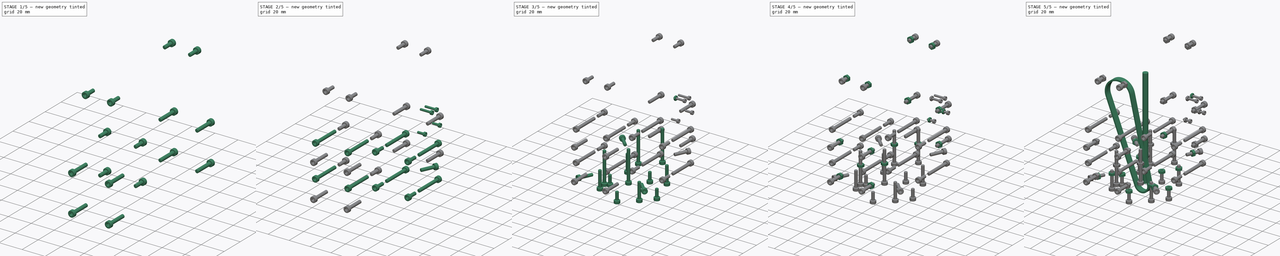
[diagram: build sequence overview — one tinted view per stage of 5, left to right]
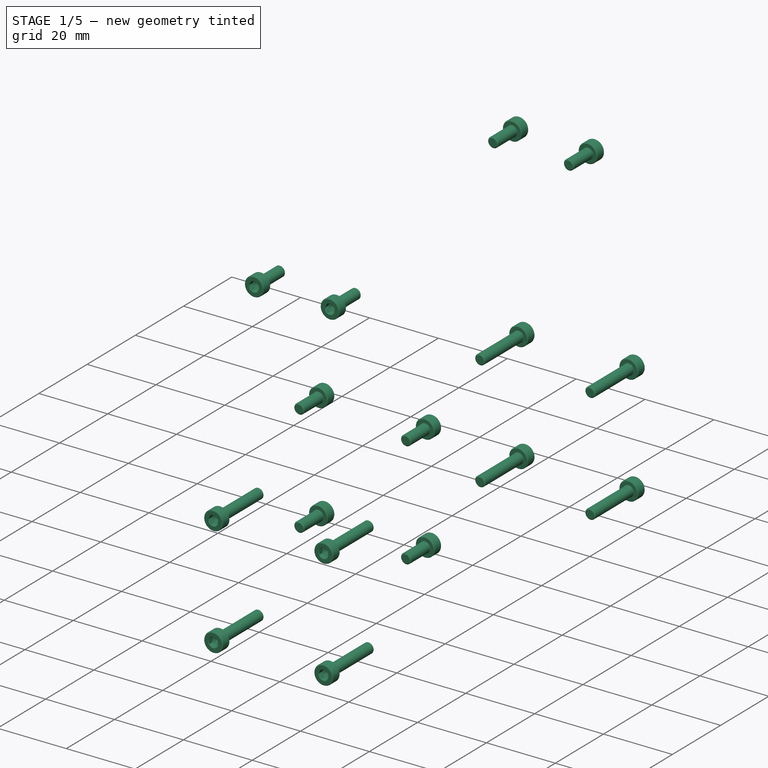
[diagram: stage 1 of 5 — iso view after this stage's code; geometry added in this stage tinted green]
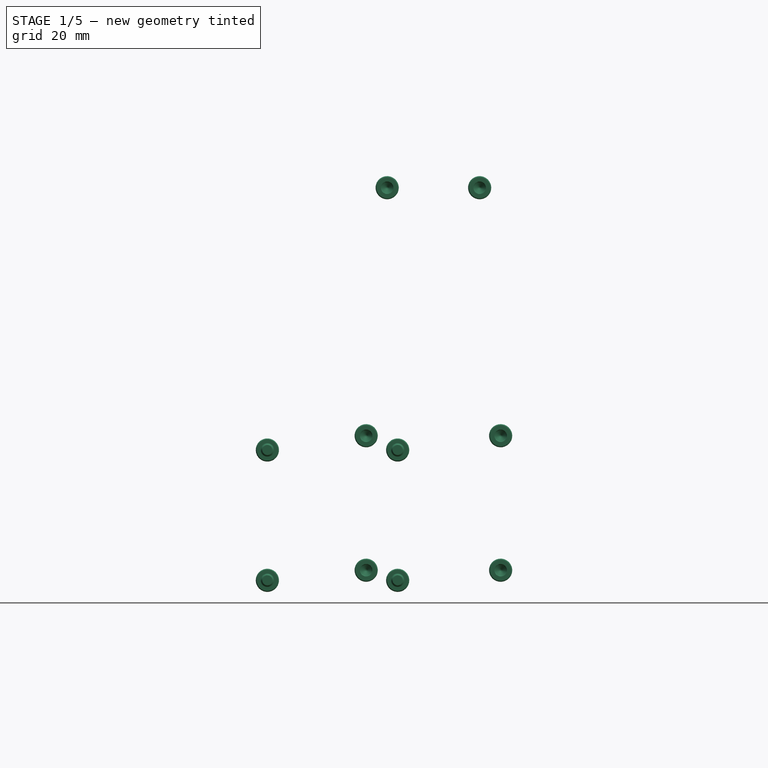
[diagram: stage 1 of 5 — front view after this stage's code; geometry added in this stage tinted green]
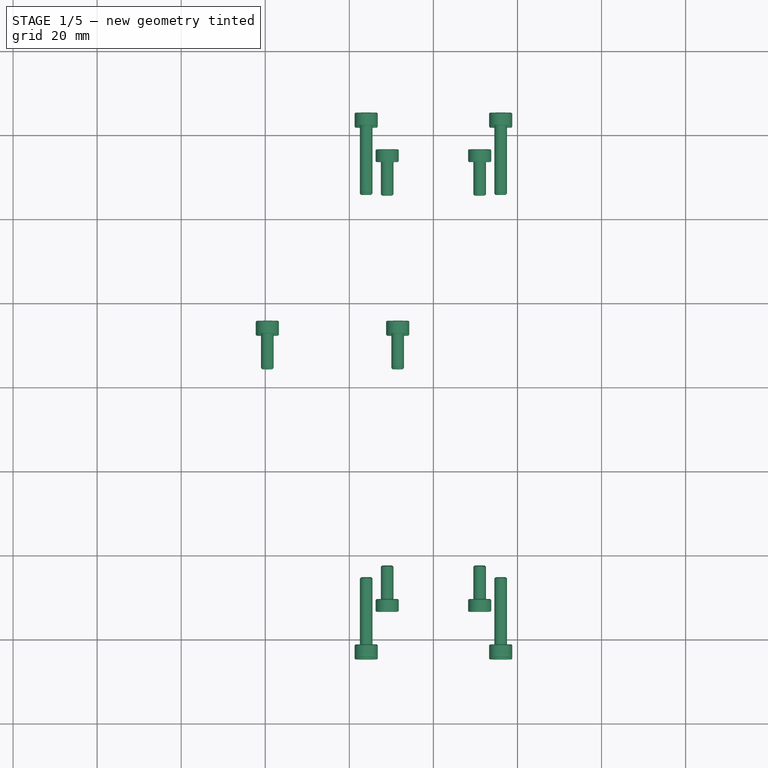
[diagram: stage 1 of 5 — top view after this stage's code; geometry added in this stage tinted green]
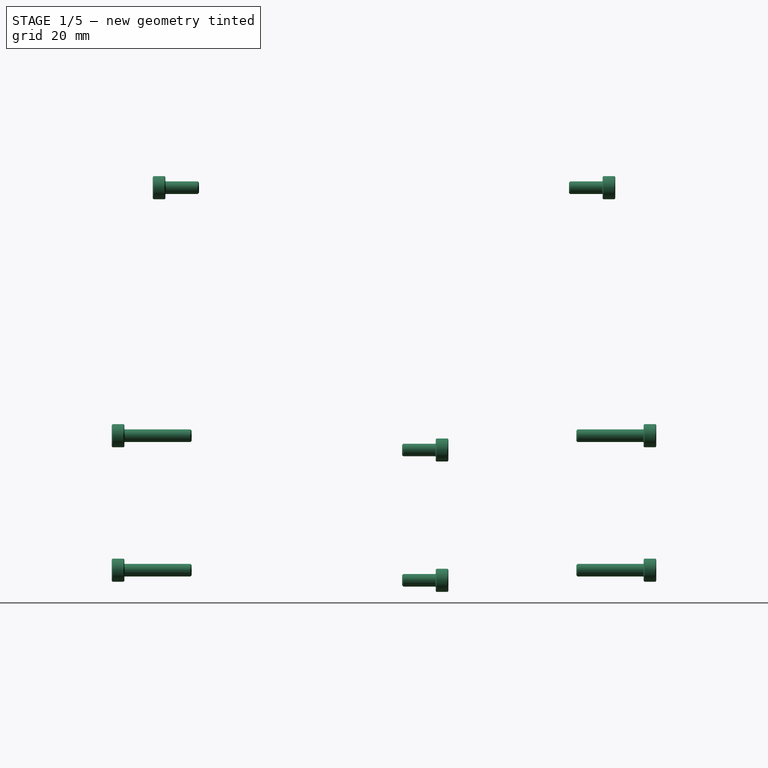
[diagram: stage 1 of 5 — right view after this stage's code; geometry added in this stage tinted green]
FCSTD DOCUMENT  (FreeCAD 0.19R24276 (Git))
Label: AssemblyArt4
License: All rights reserved
LicenseURL: http://en.wikipedia.org/wiki/All_rights_reserved
objects: Part::FeaturePython×80, App::Link×25, PartDesign::CoordinateSystem×16, App::DocumentObjectGroup×9, App::Part×9, PartDesign::Line×8, Part::Feature×7, App::FeaturePython×1, Sketcher::SketchObject×1, PartDesign::Pad×1, Part::Cylinder×1
note: 115 computed .brp shape members not serialized (recipe doc carries the construction recipe); baked Part::Feature solids carry a one-line shape summary decoded from their .brp
EXTERNAL_REF file=Art4TransmissionColumn.FCStd obj=LCS_Art4TransmissionColumn
EXTERNAL_REF file=Art4TransmissionColumn.FCStd obj=Body
EXTERNAL_REF file=Art4BodyBot.FCStd obj=LCS_Art4BodyBot
EXTERNAL_REF file=Art4TransmissionColumn.FCStd obj=LCS_Art4Body
EXTERNAL_REF file=Art4BodyBot.FCStd obj=Body
EXTERNAL_REF file=Art4Body.FCStd obj=LCS_Art4Body
EXTERNAL_REF file=Art4BodyBot.FCStd obj=LCS_Art4Body
EXTERNAL_REF file=Art4Body.FCStd obj=Body
EXTERNAL_REF file=Art4Body.FCStd obj=LCS_Fan2
EXTERNAL_REF file=Art4BodyFan.FCStd obj=LCS_Art4BodyFan
EXTERNAL_REF file=Art4BodyFan.FCStd obj=Body
EXTERNAL_REF file=Art4Body.FCStd obj=LCS_Fan1
EXTERNAL_REF file=Art4BodyBot.FCStd obj=LCS_Motor1A
EXTERNAL_REF file=Art56MotorHolderA.FCStd obj=LCS_Art56MotorHolderA
EXTERNAL_REF file=Art56MotorHolderA.FCStd obj=Body
EXTERNAL_REF file=Art4BodyBot.FCStd obj=LCS_Motor2A
EXTERNAL_REF file=Art56MotorHolderA.FCStd obj=LCS_Motor
EXTERNAL_REF file=Art56MotorHolderB.FCStd obj=LCS_AMotor
EXTERNAL_REF file=Art56MotorHolderB.FCStd obj=Body
EXTERNAL_REF file=Art4Body.FCStd obj=LCS_Bearing1
EXTERNAL_REF file=Art4Body.FCStd obj=LCS_Bearing2
EXTERNAL_REF file=Art4BearingFix.FCStd obj=LCS_Art4BearingFix
EXTERNAL_REF file=Art4Body.FCStd obj=LCS_BearingFix1
EXTERNAL_REF file=Art4BearingFix.FCStd obj=Body
EXTERNAL_REF file=Art4Body.FCStd obj=LCS_BearingFix2
EXTERNAL_REF file=Art4Body.FCStd obj=LCS_Connector
EXTERNAL_REF file=Art4Optodisk.FCStd obj=LCS_Art4Optodisk
EXTERNAL_REF file=Art4TransmissionColumn.FCStd obj=LCS_OptoRing
EXTERNAL_REF file=Art4Optodisk.FCStd obj=Body
EXTERNAL_REF file=Art4TransmissionColumn.FCStd obj=HoleAxis_8
EXTERNAL_REF file=Art4TransmissionColumn.FCStd obj=HoleAxis_7
EXTERNAL_REF file=Art4TransmissionColumn.FCStd obj=HoleAxis_6
EXTERNAL_REF file=Art4TransmissionColumn.FCStd obj=HoleAxis_5
EXTERNAL_REF file=Art4BodyBot.FCStd obj=HoleAxis_2
EXTERNAL_REF file=Art4BodyBot.FCStd obj=HoleAxis_3
EXTERNAL_REF file=Art4BodyBot.FCStd obj=HoleAxis_4
EXTERNAL_REF file=Art4BodyBot.FCStd obj=HoleAxis_1
EXTERNAL_REF file=Art4BodyBot.FCStd obj=HoleAxis_7
EXTERNAL_REF file=Art4BodyBot.FCStd obj=HoleAxis_5
EXTERNAL_REF file=Art4BodyBot.FCStd obj=HoleAxis_6
EXTERNAL_REF file=Art4BodyBot.FCStd obj=HoleAxis_8
EXTERNAL_REF file=Art4Body.FCStd obj=HoleAxis_2
EXTERNAL_REF file=Art4Body.FCStd obj=HoleAxis_4
EXTERNAL_REF file=Art4Body.FCStd obj=HoleAxis_3
EXTERNAL_REF file=Art4Body.FCStd obj=HoleAxis_1
EXTERNAL_REF file=Art4Body.FCStd obj=HoleAxis_6
EXTERNAL_REF file=Art4Body.FCStd obj=HoleAxis_5
EXTERNAL_REF file=Art4Body.FCStd obj=HoleAxis_7
EXTERNAL_REF file=Art4Body.FCStd obj=HoleAxis_8
EXTERNAL_REF file=Art4Body.FCStd obj=HoleAxis_19
EXTERNAL_REF file=Art4Body.FCStd obj=HoleAxis_20
EXTERNAL_REF file=Art4Body.FCStd obj=HoleAxis_18
EXTERNAL_REF file=Art4Body.FCStd obj=HoleAxis_17
EXTERNAL_REF file=Art56MotorHolderB.FCStd obj=HoleAxis_5
EXTERNAL_REF file=Art56MotorHolderA.FCStd obj=HoleAxis_5
EXTERNAL_REF file=Art4Body.FCStd obj=LCS_MicroSwitch
EXTERNAL_REF file=Art4TransmissionColumn.FCStd obj=HoleAxis_2
EXTERNAL_REF file=Art4TransmissionColumn.FCStd obj=HoleAxis_1
EXTERNAL_REF file=Art4TransmissionColumn.FCStd obj=HoleAxis_4
EXTERNAL_REF file=Art4TransmissionColumn.FCStd obj=HoleAxis_3
EXTERNAL_REF file=Art4Optodisk.FCStd obj=HoleAxis_3
EXTERNAL_REF file=Art4Optodisk.FCStd obj=HoleAxis_2
EXTERNAL_REF file=Art4Optodisk.FCStd obj=HoleAxis_1
EXTERNAL_REF file=Art4Optodisk.FCStd obj=HoleAxis_4
EXTERNAL_REF file=Art4BodyBot.FCStd obj=HoleAxis_11
EXTERNAL_REF file=Art4BodyBot.FCStd obj=HoleAxis_12
EXTERNAL_REF file=Art4BodyBot.FCStd obj=HoleAxis_10
EXTERNAL_REF file=Art4BodyBot.FCStd obj=HoleAxis_9
EXTERNAL_REF file=Art4Body.FCStd obj=HoleAxis_11
EXTERNAL_REF file=Art4Body.FCStd obj=HoleAxis_12
EXTERNAL_REF file=Art4Body.FCStd obj=HoleAxis_10
EXTERNAL_REF file=Art4Body.FCStd obj=HoleAxis_9
EXTERNAL_REF file=Art4Body.FCStd obj=HoleAxis_14
EXTERNAL_REF file=Art4Body.FCStd obj=HoleAxis_13
EXTERNAL_REF file=Art4Body.FCStd obj=HoleAxis_16
EXTERNAL_REF file=Art4Body.FCStd obj=HoleAxis_15
EXTERNAL_REF file=Art56MotorHolderB.FCStd obj=HoleAxis_3
EXTERNAL_REF file=Art56MotorHolderB.FCStd obj=HoleAxis_2
EXTERNAL_REF file=Art56MotorHolderB.FCStd obj=HoleAxis_1
EXTERNAL_REF file=Art56MotorHolderB.FCStd obj=HoleAxis_4
EXTERNAL_REF file=Art56MotorHolderA.FCStd obj=HoleAxis_2
EXTERNAL_REF file=Art56MotorHolderA.FCStd obj=HoleAxis_1
EXTERNAL_REF file=Art56MotorHolderA.FCStd obj=HoleAxis_3
EXTERNAL_REF file=Art56MotorHolderA.FCStd obj=HoleAxis_4
EXTERNAL_REF file=Art4BearingFix.FCStd obj=HoleAxis_2
EXTERNAL_REF file=Art4BearingFix.FCStd obj=HoleAxis_1

FEATURE [Part::FeaturePython] Screw033  label="M3x8-Screw021"  # Fasteners workbench fastener (typed FeaturePython)
  AssemblyType = Asm4EE
  AttachedBy = Origin
  AttachedTo = Art56MotorHolderA_Art56MotorHolderA001#HoleAxis_2
  AttachmentOffset = pos=(0,0,0) rot=(1,0,0;3.14159rad)
  Placement = pos=(-8.5,12.3,49.1) rot=(-1,0,0;1.5708rad)
  diameter = 4
  invert = false
  length = 2
  lengthCustom = 8
  matchOuter = false
  offset = 0
  thread = false
  type = 33
  expr: Placement = Art56MotorHolderA_Art56MotorHolderA001.Placement * Art56MotorHolderA#HoleAxis_2.Placement * AttachmentOffset
FEATURE [Part::FeaturePython] Screw034  label="M3x8-Screw022"  # Fasteners workbench fastener (typed FeaturePython)
  AssemblyType = Asm4EE
  AttachedBy = Origin
  AttachedTo = Art56MotorHolderA_Art56MotorHolderA001#HoleAxis_1
  AttachmentOffset = pos=(0,0,0) rot=(1,0,0;3.14159rad)
  Placement = pos=(-8.5,12.3,18.1) rot=(-1,0,0;1.5708rad)
  diameter = 4
  invert = false
  length = 2
  lengthCustom = 8
  matchOuter = false
  offset = 0
  thread = false
  type = 33
  expr: Placement = Art56MotorHolderA_Art56MotorHolderA001.Placement * Art56MotorHolderA#HoleAxis_1.Placement * AttachmentOffset
FEATURE [Part::FeaturePython] Screw035  label="M3x8-Screw023"  # Fasteners workbench fastener (typed FeaturePython)
  AssemblyType = Asm4EE
  AttachedBy = Origin
  AttachedTo = Art56MotorHolderA_Art56MotorHolderA001#HoleAxis_3
  AttachmentOffset = pos=(0,0,0) rot=(1,0,0;3.14159rad)
  Placement = pos=(-39.5,12.3,49.1) rot=(-1,0,0;1.5708rad)
  diameter = 4
  invert = false
  length = 2
  lengthCustom = 8
  matchOuter = false
  offset = 0
  thread = false
  type = 33
  expr: Placement = Art56MotorHolderA_Art56MotorHolderA001.Placement * Art56MotorHolderA#HoleAxis_3.Placement * AttachmentOffset
FEATURE [Part::FeaturePython] Screw036  label="M3x8-Screw024"  # Fasteners workbench fastener (typed FeaturePython)
  AssemblyType = Asm4EE
  AttachedBy = Origin
  AttachedTo = Art56MotorHolderA_Art56MotorHolderA001#HoleAxis_4
  AttachmentOffset = pos=(0,0,0) rot=(1,0,0;3.14159rad)
  Placement = pos=(-39.5,12.3,18.1) rot=(-1,0,0;1.5708rad)
  diameter = 4
  invert = false
  length = 2
  lengthCustom = 8
  matchOuter = false
  offset = 0
  thread = false
  type = 33
  expr: Placement = Art56MotorHolderA_Art56MotorHolderA001.Placement * Art56MotorHolderA#HoleAxis_4.Placement * AttachmentOffset
FEATURE [Part::FeaturePython] Screw037  label="M3x16-Screw027"  # Fasteners workbench fastener (typed FeaturePython)
  AssemblyType = Asm4EE
  AttachedBy = Origin
  AttachedTo = Fan_40x40002#HoleAxis_6
  Placement = pos=(15.9948,61.76,52.4948) rot=(0,0.707107,0.707107;3.14159rad)
  diameter = 4
  invert = false
  length = 6
  lengthCustom = 16
  matchOuter = false
  offset = 0
  thread = false
  type = 33
  expr: Placement = Fan_40x40002.Placement * HoleAxis_6.Placement * AttachmentOffset
FEATURE [Part::FeaturePython] Screw038  label="M3x16-Screw028"  # Fasteners workbench fastener (typed FeaturePython)
  AssemblyType = Asm4EE
  AttachedBy = Origin
  AttachedTo = Fan_40x40002#HoleAxis_5
  Placement = pos=(15.9948,61.76,20.5052) rot=(0.57735,0.57735,0.57735;4.18879rad)
  diameter = 4
  invert = false
  length = 6
  lengthCustom = 16
  matchOuter = false
  offset = 0
  thread = false
  type = 33
  expr: Placement = Fan_40x40002.Placement * HoleAxis_5.Placement * AttachmentOffset
FEATURE [Part::FeaturePython] Screw039  label="M3x16-Screw029"  # Fasteners workbench fastener (typed FeaturePython)
  AssemblyType = Asm4EE
  AttachedBy = Origin
  AttachedTo = Fan_40x40002#HoleAxis_7
  Placement = pos=(-15.9948,61.76,52.4948) rot=(-0.57735,0.57735,0.57735;2.0944rad)
  diameter = 4
  invert = false
  length = 6
  lengthCustom = 16
  matchOuter = false
  offset = 0
  thread = false
  type = 33
  expr: Placement = Fan_40x40002.Placement * HoleAxis_7.Placement * AttachmentOffset
FEATURE [Part::FeaturePython] Screw040  label="M3x16-Screw025"  # Fasteners workbench fastener (typed FeaturePython)
  AssemblyType = Asm4EE
  AttachedBy = Origin
  AttachedTo = Fan_40x40002#HoleAxis_8
  Placement = pos=(-15.9948,61.76,20.5052) rot=(-1,0,0;1.5708rad)
  diameter = 4
  invert = false
  length = 6
  lengthCustom = 16
  matchOuter = false
  offset = 0
  thread = false
  type = 33
  expr: Placement = Fan_40x40002.Placement * HoleAxis_8.Placement * AttachmentOffset
FEATURE [Part::FeaturePython] Screw041  label="M3x16-Screw030"  # Fasteners workbench fastener (typed FeaturePython)
  AssemblyType = Asm4EE
  AttachedBy = Origin
  AttachedTo = Fan_40x40001#HoleAxis_6
  Placement = pos=(-15.9948,-61.76,52.4948) rot=(-1,0,0;4.71239rad)
  diameter = 4
  invert = false
  length = 6
  lengthCustom = 16
  matchOuter = false
  offset = 0
  thread = false
  type = 33
  expr: Placement = Fan_40x40001.Placement * HoleAxis_6.Placement * AttachmentOffset
FEATURE [Part::FeaturePython] Screw042  label="M3x16-Screw031"  # Fasteners workbench fastener (typed FeaturePython)
  AssemblyType = Asm4EE
  AttachedBy = Origin
  AttachedTo = Fan_40x40001#HoleAxis_5
  Placement = pos=(-15.9948,-61.76,20.5052) rot=(-0.57735,0.57735,-0.57735;4.18879rad)
  diameter = 4
  invert = false
  length = 6
  lengthCustom = 16
  matchOuter = false
  offset = 0
  thread = false
  type = 33
  expr: Placement = Fan_40x40001.Placement * HoleAxis_5.Placement * AttachmentOffset
FEATURE [Part::FeaturePython] Screw043  label="M3x16-Screw"  # Fasteners workbench fastener (typed FeaturePython)
  AssemblyType = Asm4EE
  AttachedBy = Origin
  AttachedTo = Fan_40x40001#HoleAxis_8
  Placement = pos=(15.9948,-61.76,20.5052) rot=(0,-0.707107,0.707107;3.14159rad)
  diameter = 4
  invert = false
  length = 6
  lengthCustom = 16
  matchOuter = false
  offset = 0
  thread = false
  type = 33
  expr: Placement = Fan_40x40001.Placement * HoleAxis_8.Placement * AttachmentOffset
FEATURE [Part::FeaturePython] Screw044  label="M3x16-Screw026"  # Fasteners workbench fastener (typed FeaturePython)
  AssemblyType = Asm4EE
  AttachedBy = Origin
  AttachedTo = Fan_40x40001#HoleAxis_7
  Placement = pos=(15.9948,-61.76,52.4948) rot=(-0.57735,-0.57735,0.57735;4.18879rad)
  diameter = 4
  invert = false
  length = 6
  lengthCustom = 16
  matchOuter = false
  offset = 0
  thread = false
  type = 33
  expr: Placement = Fan_40x40001.Placement * HoleAxis_7.Placement * AttachmentOffset
FEATURE [Part::FeaturePython] Screw045  label="M3x8-Screw029"  # Fasteners workbench fastener (typed FeaturePython)
  AssemblyType = Asm4EE
  AttachedBy = Origin
  AttachedTo = Art4BearingFix_Art4BearingFix001#HoleAxis_2
  Placement = pos=(11,-52,111.5) rot=(1,0,0;1.5708rad)
  diameter = 4
  invert = false
  length = 2
  lengthCustom = 8
  matchOuter = false
  offset = 0
  thread = false
  type = 33
  expr: Placement = Art4BearingFix_Art4BearingFix001.Placement * Art4BearingFix#HoleAxis_2.Placement * AttachmentOffset
FEATURE [Part::FeaturePython] Screw046  label="M3x8-Screw030"  # Fasteners workbench fastener (typed FeaturePython)
  AssemblyType = Asm4EE
  AttachedBy = Origin
  AttachedTo = Art4BearingFix_Art4BearingFix001#HoleAxis_1
  Placement = pos=(-11,-52,111.5) rot=(1,0,0;1.5708rad)
  diameter = 4
  invert = false
  length = 2
  lengthCustom = 8
  matchOuter = false
  offset = 0
  thread = false
  type = 33
  expr: Placement = Art4BearingFix_Art4BearingFix001.Placement * Art4BearingFix#HoleAxis_1.Placement * AttachmentOffset
FEATURE [Part::FeaturePython] Screw047  label="M3x8-Screw031"  # Fasteners workbench fastener (typed FeaturePython)
  AssemblyType = Asm4EE
  AttachedBy = Origin
  AttachedTo = Art4BearingFix_Art4BearingFix#HoleAxis_1
  Placement = pos=(11,52,111.5) rot=(0,0.707107,0.707107;3.14159rad)
  diameter = 4
  invert = false
  length = 2
  lengthCustom = 8
  matchOuter = false
  offset = 0
  thread = false
  type = 33
  expr: Placement = Art4BearingFix_Art4BearingFix.Placement * Art4BearingFix#HoleAxis_1.Placement * AttachmentOffset
FEATURE [Part::FeaturePython] Screw048  label="M3x8-Screw032"  # Fasteners workbench fastener (typed FeaturePython)
  AssemblyType = Asm4EE
  AttachedBy = Origin
  AttachedTo = Art4BearingFix_Art4BearingFix#HoleAxis_2
  Placement = pos=(-11,52,111.5) rot=(0,0.707107,0.707107;3.14159rad)
  diameter = 4
  invert = false
  length = 2
  lengthCustom = 8
  matchOuter = false
  offset = 0
  thread = false
  type = 33
  expr: Placement = Art4BearingFix_Art4BearingFix.Placement * Art4BearingFix#HoleAxis_2.Placement * AttachmentOffset
FEATURE [App::DocumentObjectGroup] Group006  label="Fasteners"
  Group = -> [Nut001,Nut002,Nut003,Nut004,Nut005,Nut006,Nut007,Nut008,Nut009,Nut010,Nut011,Nut012,Nut013,Nut014,Nut015,Nut016,Nut017,Nut018,Nut019,Nut020,Nut021,Nut022,Nut023,Nut024,Nut025,Nut026,Nut027,Nut028,Nut029,Nut030,Nut031,Nut,Screw001,Screw002,Screw003,Screw004,Screw006,Screw008,Screw005,Screw007,Screw009,Screw010,Screw011,Screw012,Screw013,Screw014,Screw015,Screw016,Screw017,Screw018,Screw019,+29 more]
FEATURE [PartDesign::CoordinateSystem] LCS_Art3Fix
  AttacherType = Attacher::AttachEngine3D
FEATURE [PartDesign::CoordinateSystem] LCS_Art56Fix
  AttacherType = Attacher::AttachEngine3D
  Placement = pos=(0,0,111.5) rot=(0,0,1;0rad)
FEATURE [App::Part] Model
  Configuration = 0
  Group = -> [LCS_Origin,Constraints,Variables,Art4TransmissionColumn_Art4TransmissionColumn,Art4BodyBot_Art4BodyBot,Art4Body_Art4Body,Art4BodyFan_Art4BodyFan,Art4BodyFan_Art4BodyFan001,Art56MotorHolderA_Art56MotorHolderA,Art56MotorHolderA_Art56MotorHolderA001,Stepper_Nema17x34001,Stepper_Nema17x34002,Art56MotorHolderB_Art56MotorHolderB,Art56MotorHolderB_Art56MotorHolderB001,Pulley_GT2x20001,Pulley_GT2x20002,+95 more]
  Origin = -> Origin
  Type = Assembly4 Model

RESOLVED EXTERNAL PARTS (link-assembly join: the EXTERNAL_REF files above that resolve inside this repo's crawl, each included once):
---- part Art4BearingFix.FCStd = doc fcstd_248a21d01617 ----
FCSTD DOCUMENT  (FreeCAD 0.19R24276 (Git))
Label: Art4BearingFix
License: All rights reserved
LicenseURL: http://en.wikipedia.org/wiki/All_rights_reserved
objects: Sketcher::SketchObject×4, PartDesign::Line×3, PartDesign::Pocket×2, PartDesign::Pad×1, Spreadsheet::Sheet×1, PartDesign::Groove×1, PartDesign::CoordinateSystem×1, PartDesign::Body×1
note: 17 computed .brp shape members not serialized (recipe doc carries the construction recipe); baked Part::Feature solids carry a one-line shape summary decoded from their .brp

FEATURE [Sketcher::SketchObject] Sketch
  FullyConstrained = true
  MapMode = 5
  Support = -> [XY_Plane]
  sketch-geometry (8):
    g0: LineSegment StartX=-7.20052 StartY=3.25 StartZ=0 EndX=-15 EndY=3.25 EndZ=0
    g1: LineSegment StartX=-15 StartY=3.25 StartZ=0 EndX=-15 EndY=-3.25 EndZ=0
    g2: LineSegment StartX=-15 StartY=-3.25 StartZ=0 EndX=-7.20052 EndY=-3.25 EndZ=0
    g3: LineSegment StartX=7.20052 StartY=3.25 StartZ=0 EndX=15 EndY=3.25 EndZ=0
    g4: LineSegment StartX=15 StartY=3.25 StartZ=0 EndX=15 EndY=-3.25 EndZ=0
    g5: LineSegment StartX=15 StartY=-3.25 StartZ=0 EndX=7.20052 EndY=-3.25 EndZ=0
    g6: ArcOfCircle CenterX=0 CenterY=0 CenterZ=0 NormalX=0 NormalY=0 NormalZ=1 AngleXU=0 Radius=7.9 StartAngle=0.423981 EndAngle=2.71761
    g7: ArcOfCircle CenterX=0 CenterY=0 CenterZ=0 NormalX=0 NormalY=0 NormalZ=1 AngleXU=0 Radius=7.9 StartAngle=3.56557 EndAngle=5.8592
  constraints (21):
    c: Horizontal(g0)
    c: Coincident(g0,g1)
    c: Coincident(g1,g2)
    c: Horizontal(g2)
    c: Coincident(g3,g4)
    c: Coincident(g4,g5)
    c: Horizontal(g5)
    c: Horizontal(g3)
    c: Coincident(g6,g-1)
    c: Coincident(g6,g0)
    c: Coincident(g6,g3)
    c: Coincident(g7,g6)
    c: Coincident(g7,g2)
    c: Coincident(g7,g5)
    c: Equal(g7,g6)
    c: Radius(g6) = 7.9
    c: Symmetric(g1,g0,g-1)
    c: Symmetric(g4,g3,g-1)
    c: Symmetric(g3,g0,g-2)
    c: DistanceY(g4,g4) = 6.5
    c: DistanceX(g1,g4) = 30
FEATURE [PartDesign::Pad] Pad
  Direction = (1,1,1)
  Length = 4
  Length2 = 100
  Profile = -> Sketch
  Refine = true
  Type = 0
FEATURE [Sketcher::SketchObject] Sketch001
  FullyConstrained = true
  MapMode = 5
  Placement = pos=(0,0,4) rot=(0,0,1;0rad)
  Support = -> [Pad]
  expr: Constraints[4] = Spreadsheet.M3BoltBodyRadius
  sketch-geometry (2):
    g0: Circle CenterX=11 CenterY=0 CenterZ=0 NormalX=0 NormalY=0 NormalZ=1 AngleXU=0 Radius=1.7
    g1: Circle CenterX=-11 CenterY=0 CenterZ=0 NormalX=0 NormalY=0 NormalZ=1 AngleXU=0 Radius=1.7
  constraints (5):
    c: PointOnObject(g0,g-1)
    c: Symmetric(g1,g0,g-2)
    c: DistanceX(g1,g0) = 22
    c: Equal(g1,g0)
    c: Radius(g0) = 1.7
FEATURE [Spreadsheet::Sheet] Spreadsheet
  cells = A2=M3BoltBodyRadius; B2(M3BoltBodyRadius)=1.7; A3=M3BoltHeadRadius; B3(M3BoltHeadRadius)=2.95; A4=M3NutCircumradius; B4(M3NutCircumradius)=3.35; A5=M3NutThickness; B5(M3NutThickness)=3; A6=Bearing655ZZBodyRadius; B6(Bearing655ZZBodyRadius)=8.199999999999999
FEATURE [PartDesign::Pocket] Pocket
  BaseFeature = -> Pad
  Length = 5
  Length2 = 100
  Profile = -> Sketch001
  Refine = true
  Type = 1
FEATURE [Sketcher::SketchObject] Sketch002
  ExternalGeometry = -> [Pocket]
  FullyConstrained = true
  MapMode = 5
  Placement = pos=(0,0,4) rot=(0,0,1;0rad)
  Support = -> [Pocket]
  expr: Constraints[3] = Spreadsheet.M3BoltHeadRadius
  sketch-geometry (2):
    g0: Circle CenterX=-11 CenterY=0 CenterZ=0 NormalX=0 NormalY=0 NormalZ=1 AngleXU=0 Radius=2.95
    g1: Circle CenterX=11 CenterY=0 CenterZ=0 NormalX=0 NormalY=0 NormalZ=1 AngleXU=0 Radius=2.95
  constraints (4):
    c: Coincident(g0,g-3)
    c: Coincident(g1,g-4)
    c: Equal(g1,g0)
    c: Radius(g0) = 2.95
FEATURE [PartDesign::Pocket] Pocket001
  BaseFeature = -> Pocket
  Length = 3
  Length2 = 100
  Profile = -> Sketch002
  Refine = true
  Type = 0
FEATURE [Sketcher::SketchObject] Sketch003
  ExternalGeometry = -> [Pocket001]
  FullyConstrained = true
  MapMode = 5
  Placement = pos=(0,0,0) rot=(0.57735,0.57735,0.57735;2.0944rad)
  Support = -> [YZ_Plane]
  sketch-geometry (5):
    g0: ArcOfCircle CenterX=0 CenterY=-51 CenterZ=0 NormalX=0 NormalY=0 NormalZ=1 AngleXU=0 Radius=55 StartAngle=1.38796 EndAngle=1.5708
    g1: LineSegment StartX=10 StartY=7 StartZ=0 EndX=10 EndY=3.08327 EndZ=0
    g2: LineSegment StartX=10 StartY=7 StartZ=0 EndX=-10 EndY=7 EndZ=0
    g3: LineSegment StartX=-10 StartY=7 StartZ=0 EndX=-10 EndY=4 EndZ=0
    g4: LineSegment StartX=-10 StartY=4 StartZ=0 EndX=0 EndY=4 EndZ=0
  constraints (15):
    c: PointOnObject(g0,g-2)
    c: PointOnObject(g0,g-2)
    c: Coincident(g1,g0)
    c: Vertical(g1)
    c: Radius(g0) = 55
    c: PointOnObject(g0,g-3)
    c: Coincident(g1,g2)
    c: Coincident(g2,g3)
    c: Vertical(g3)
    c: Coincident(g3,g4)
    c: Coincident(g4,g0)
    c: Horizontal(g4)
    c: DistanceY(g3,g3) = 3
    c: DistanceX(g2,g2) = 20
    c: Symmetric(g1,g2,g-2)
FEATURE [PartDesign::Line] DatumLine
  AttacherType = Attacher::AttachEngineLine
  AttachmentOffset = pos=(0,-51,0) rot=(0,0,1;0rad)
  Length = 20
  MapMode = 29
  Placement = pos=(0,-1.13e-14,-51) rot=(0,0.707107,0.707107;3.14159rad)
  ResizeMode = 0
  Support = -> [Y_Axis]
FEATURE [PartDesign::Groove] Groove
  Angle = 360
  Axis = (1e-16,1,-2e-16)
  Base = (0,-1.13e-14,-51)
  BaseFeature = -> Pocket001
  Profile = -> Sketch003
  ReferenceAxis = -> DatumLine
  Refine = true
FEATURE [PartDesign::CoordinateSystem] LCS_Art4BearingFix
  AttacherType = Attacher::AttachEngine3D
  MapMode = 45
  Placement = pos=(9.3e-15,0,0) rot=(0,0,1;1.5708rad)
  Support = -> [Groove]
FEATURE [PartDesign::Line] HoleAxis_1
  AttacherType = Attacher::AttachEngineLine
  Length = 4.79083
  MapMode = 19
  Placement = pos=(-11,0,1) rot=(0,0,1;0rad)
  ResizeMode = 1
  Support = -> [Groove]
FEATURE [PartDesign::Line] HoleAxis_2
  AttacherType = Attacher::AttachEngineLine
  Length = 4.79083
  MapMode = 19
  Placement = pos=(11,0,1) rot=(0,0,1;0rad)
  ResizeMode = 1
  Support = -> [Groove]
FEATURE [PartDesign::Body] Body  label="Art4BearingFix"
  Group = -> [Sketch,Pad,Sketch001,Pocket,Sketch002,Pocket001,Sketch003,DatumLine,Groove,LCS_Art4BearingFix,HoleAxis_1,HoleAxis_2]
  Origin = -> Origin
  Tip = -> Groove
---- part Art4Body.FCStd = doc fcstd_c7016b65c5b0 ----
FCSTD DOCUMENT  (FreeCAD 0.19R24276 (Git))
Label: Art4Body
License: All rights reserved
LicenseURL: http://en.wikipedia.org/wiki/All_rights_reserved
objects: PartDesign::Line×21, Sketcher::SketchObject×20, PartDesign::Pocket×17, PartDesign::CoordinateSystem×9, PartDesign::Plane×4, PartDesign::PolarPattern×3, PartDesign::Revolution×2, PartDesign::Mirrored×2, Spreadsheet::Sheet×1, PartDesign::Pad×1, PartDesign::MultiTransform×1, PartDesign::Body×1
note: 101 computed .brp shape members not serialized (recipe doc carries the construction recipe); baked Part::Feature solids carry a one-line shape summary decoded from their .brp

FEATURE [Sketcher::SketchObject] Sketch
  FullyConstrained = true
  MapMode = 5
  Placement = pos=(0,0,0) rot=(1,0,0;1.5708rad)
  Support = -> [XZ_Plane]
  sketch-geometry (6):
    g0: ArcOfCircle CenterX=0 CenterY=100 CenterZ=0 NormalX=0 NormalY=0 NormalZ=1 AngleXU=0 Radius=50 StartAngle=0 EndAngle=1.5708
    g1: ArcOfCircle CenterX=0 CenterY=100 CenterZ=0 NormalX=0 NormalY=0 NormalZ=1 AngleXU=0 Radius=55 StartAngle=0 EndAngle=1.5708
    g2: LineSegment StartX=50 StartY=100 StartZ=0 EndX=50 EndY=0 EndZ=0
    g3: LineSegment StartX=50 StartY=0 StartZ=0 EndX=55 EndY=0 EndZ=0
    g4: LineSegment StartX=55 StartY=100 StartZ=0 EndX=55 EndY=0 EndZ=0
    g5: LineSegment StartX=0 StartY=155 StartZ=0 EndX=0 EndY=150 EndZ=0
  constraints (18):
    c: PointOnObject(g0,g-2)
    c: Coincident(g1,g0)
    c: Coincident(g2,g0)
    c: Vertical(g2)
    c: Coincident(g3,g2)
    c: PointOnObject(g3,g-1)
    c: Horizontal(g3)
    c: Coincident(g4,g3)
    c: Vertical(g4)
    c: Equal(g4,g2)
    c: DistanceY(g4,g4) = 100
    c: Tangent(g4,g1) = 1.5708
    c: DistanceX(g3,g3) = 5
    c: Radius(g1) = 55
    c: Coincident(g5,g1)
    c: Coincident(g5,g0)
    c: Vertical(g5)
    c: PointOnObject(g0,g-2)
FEATURE [PartDesign::Revolution] Revolution
  Angle = 360
  Axis = (0,2e-16,1)
  Base = (0,0,0)
  Placement = pos=(0,0,0) rot=(1,0,0;1.5708rad)
  Profile = -> Sketch
  ReferenceAxis = -> Sketch [V_Axis]
  Refine = true
  Reversed = true
FEATURE [Sketcher::SketchObject] Sketch001
  FullyConstrained = true
  MapMode = 5
  Placement = pos=(0,0,0) rot=(1,0,0;1.5708rad)
  Support = -> [XZ_Plane]
  sketch-geometry (4):
    g0: LineSegment StartX=-15.5 StartY=160 StartZ=0 EndX=15.5 EndY=160 EndZ=0
    g1: LineSegment StartX=15.5 StartY=160 StartZ=0 EndX=15.5 EndY=100 EndZ=0
    g2: LineSegment StartX=-15.5 StartY=160 StartZ=0 EndX=-15.5 EndY=100 EndZ=0
    g3: ArcOfCircle CenterX=0 CenterY=100 CenterZ=0 NormalX=0 NormalY=0 NormalZ=1 AngleXU=0 Radius=15.5 StartAngle=3.14159 EndAngle=6.28319
  constraints (11):
    c: Horizontal(g0)
    c: Coincident(g0,g1)
    c: Vertical(g1)
    c: Coincident(g0,g2)
    c: Vertical(g2)
    c: PointOnObject(g3,g-2)
    c: Tangent(g3,g1) = 1.5708
    c: Tangent(g3,g2) = -1.5708
    c: DistanceY(g1,g1) = 60
    c: Radius(g3) = 15.5
    c: DistanceY(g-1,g3) = 100
FEATURE [PartDesign::Pocket] Pocket
  BaseFeature = -> Revolution
  Length = 5
  Length2 = 100
  Midplane = true
  Placement = pos=(0,0,0) rot=(1,0,0;1.5708rad)
  Profile = -> Sketch001
  Refine = true
  Type = 1
FEATURE [Sketcher::SketchObject] Sketch002
  FullyConstrained = true
  MapMode = 5
  Placement = pos=(0,0,0) rot=(1,0,0;1.5708rad)
  Support = -> [XZ_Plane]
  sketch-geometry (4):
    g0: LineSegment StartX=50 StartY=100 StartZ=0 EndX=44 EndY=100 EndZ=0
    g1: LineSegment StartX=44 StartY=100 StartZ=0 EndX=44 EndY=112 EndZ=0
    g2: LineSegment StartX=44 StartY=112 StartZ=0 EndX=50 EndY=118 EndZ=0
    g3: LineSegment StartX=50 StartY=118 StartZ=0 EndX=50 EndY=100 EndZ=0
  constraints (12):
    c: Horizontal(g0)
    c: Coincident(g0,g1)
    c: Vertical(g1)
    c: Coincident(g1,g2)
    c: Coincident(g2,g3)
    c: Coincident(g3,g0)
    c: Vertical(g3)
    c: DistanceX(g0,g0) = 6
    c: DistanceY(g3,g3) = 18
    c: DistanceY(g1,g1) = 12
    c: DistanceX(g-1,g0) = 50
    c: DistanceY(g-1,g0) = 100
FEATURE [PartDesign::Line] DatumLine
  AttacherType = Attacher::AttachEngineLine
  AttachmentOffset = pos=(0,100,0) rot=(0,0,1;0rad)
  Length = 20
  MapMode = 29
  Placement = pos=(0,0,100) rot=(0.57735,0.57735,0.57735;2.0944rad)
  ResizeMode = 0
  Support = -> [X_Axis]
FEATURE [PartDesign::Revolution] Revolution001
  Angle = 360
  Axis = (1,0,0)
  Base = (0,0,100)
  BaseFeature = -> Pocket
  Placement = pos=(0,0,0) rot=(1,0,0;1.5708rad)
  Profile = -> Sketch002
  ReferenceAxis = -> DatumLine
  Refine = true
  Reversed = true
FEATURE [Sketcher::SketchObject] Sketch003
  ExternalGeometry = -> [Revolution001]
  FullyConstrained = true
  MapMode = 5
  Placement = pos=(-15.5,0,0) rot=(0.707107,0,0.707107;3.14159rad)
  Support = -> [Revolution001]
  sketch-geometry (1):
    g0: Circle CenterX=100 CenterY=-2.22e-14 CenterZ=0 NormalX=0 NormalY=0 NormalZ=1 AngleXU=0 Radius=5
  constraints (2):
    c: Radius(g0) = 5
    c: Coincident(g-3,g0)
FEATURE [PartDesign::Pocket] Pocket001
  BaseFeature = -> Revolution001
  Length = 5
  Length2 = 100
  Placement = pos=(0,0,0) rot=(1,0,0;1.5708rad)
  Profile = -> Sketch003
  Refine = true
  Reversed = true
  Type = 1
FEATURE [PartDesign::Plane] DatumPlane
  AttachmentOffset = pos=(0,0,-11) rot=(0,0,1;0rad)
  Length = 205.737
  MapMode = 5
  Placement = pos=(55,0,2.4e-15) rot=(0.707107,0,-0.707107;3.14159rad)
  ResizeMode = 0
  Support = -> [Pocket001]
  Width = 137.953
FEATURE [Sketcher::SketchObject] Sketch004
  ExternalGeometry = -> [Pocket001]
  FullyConstrained = true
  MapMode = 5
  Placement = pos=(55,0,2.4e-15) rot=(0.707107,0,-0.707107;3.14159rad)
  Support = -> [DatumPlane]
  expr: Constraints[1] = Spreadsheet.Bearing655ZZBodyRadius
  sketch-geometry (1):
    g0: Circle CenterX=-100 CenterY=-8.88e-14 CenterZ=0 NormalX=0 NormalY=0 NormalZ=1 AngleXU=0 Radius=8.2
  constraints (2):
    c: Coincident(g0,g-3)
    c: Radius(g0) = 8.2
FEATURE [Spreadsheet::Sheet] Spreadsheet
  cells = A2=M3BoltBodyRadius; B2(M3BoltBodyRadius)=1.7; A3=M3BoltHeadRadius; B3(M3BoltHeadRadius)=2.95; A4=M3NutCircumradius; B4(M3NutCircumradius)=3.35; A5=M3NutThickness; B5(M3NutThickness)=3; A6=Bearing655ZZBodyRadius; B6(Bearing655ZZBodyRadius)=8.199999999999999; A7=MagnetRadius; B7(MagnetRadius)=4.2; A8=MagnetThickness; B8(MagnetThickness)=1.1; A9=M2BoltBodyRadius; B9(M2BoltBodyRadius)=1.2; A10=M2BoltHeadRadius; B10(M2BoltHeadRadius)=2.1
FEATURE [PartDesign::Pocket] Pocket002
  BaseFeature = -> Pocket001
  Length = 9
  Length2 = 100
  Placement = pos=(0,0,0) rot=(1,0,0;1.5708rad)
  Profile = -> Sketch004
  Refine = true
  Reversed = true
  Type = 0
FEATURE [Sketcher::SketchObject] Sketch005
  ExternalGeometry = -> [Pocket002]
  FullyConstrained = false
  MapMode = 5
  Placement = pos=(55,0,2.4e-15) rot=(0.707107,0,-0.707107;3.14159rad)
  Support = -> [DatumPlane]
  sketch-geometry (6):
    g0: LineSegment StartX=-103.5 StartY=15.3 StartZ=0 EndX=-96.5 EndY=15.3 EndZ=0
    g1: LineSegment StartX=-96.5 StartY=15.3 StartZ=0 EndX=-96.5 EndY=-15.3 EndZ=0
    g2: LineSegment StartX=-96.5 StartY=-15.3 StartZ=0 EndX=-103.5 EndY=-15.3 EndZ=0
    g3: LineSegment StartX=-103.5 StartY=-15.3 StartZ=0 EndX=-103.5 EndY=15.3 EndZ=0
    g4: LineSegment StartX=-100 StartY=-1.332e-13 StartZ=0 EndX=-103.5 EndY=-1.332e-13 EndZ=0
    g5: LineSegment StartX=-100 StartY=-1.332e-13 StartZ=0 EndX=-96.5 EndY=-1.332e-13 EndZ=0
  constraints (16):
    c: Coincident(g0,g1)
    c: Coincident(g1,g2)
    c: Coincident(g2,g3)
    c: Coincident(g3,g0)
    c: Horizontal(g0)
    c: Horizontal(g2)
    c: Vertical(g3)
    c: Symmetric(g0,g1,g-1)
    c: DistanceX(g2,g2) = 7
    c: DistanceY(g1,g1) = 30.6
    c: PointOnObject(g4,g3)
    c: Coincident(g5,g4)
    c: PointOnObject(g5,g1)
    c: Equal(g5,g4)
    c: Horizontal(g4)
    c: Horizontal(g5)
FEATURE [PartDesign::Pocket] Pocket003
  BaseFeature = -> Pocket002
  Length = 4
  Length2 = 100
  Placement = pos=(0,0,0) rot=(1,0,0;1.5708rad)
  Profile = -> Sketch005
  Refine = true
  Reversed = true
  Type = 0
FEATURE [Sketcher::SketchObject] Sketch006
  ExternalGeometry = -> [Pocket003]
  FullyConstrained = true
  MapMode = 5
  Placement = pos=(51,0,0) rot=(0.707107,0,0.707107;3.14159rad)
  Support = -> [Pocket003]
  expr: Constraints[4] = Spreadsheet.M3BoltBodyRadius
  sketch-geometry (3):
    g0: Circle CenterX=100 CenterY=11 CenterZ=0 NormalX=0 NormalY=0 NormalZ=1 AngleXU=0 Radius=1.7
    g1: Circle CenterX=100 CenterY=-11 CenterZ=0 NormalX=0 NormalY=0 NormalZ=1 AngleXU=0 Radius=1.7
    g2: LineSegment StartX=100 StartY=11 StartZ=0 EndX=100 EndY=-11 EndZ=0
  constraints (7):
    c: Coincident(g2,g0)
    c: Coincident(g2,g1)
    c: PointOnObject(g-3,g2)
    c: Symmetric(g0,g1,g-1)
    c: Radius(g1) = 1.7
    c: DistanceY(g2,g2) = 22
    c: Equal(g0,g1)
FEATURE [PartDesign::Pocket] Pocket004
  BaseFeature = -> Pocket003
  Length = 10
  Length2 = 100
  Placement = pos=(0,0,0) rot=(1,0,0;1.5708rad)
  Profile = -> Sketch006
  Refine = true
  Type = 0
FEATURE [Sketcher::SketchObject] Sketch007
  ExternalGeometry = -> [Pocket004]
  FullyConstrained = true
  MapMode = 5
  Placement = pos=(44,0,0) rot=(0.707107,0,-0.707107;3.14159rad)
  Support = -> [Pocket004]
  expr: Constraints[36] = Spreadsheet.M3NutCircumradius
  sketch-geometry (14):
    g0: LineSegment StartX=-103.35 StartY=-11 StartZ=0 EndX=-101.675 EndY=-13.9012 EndZ=0
    g1: LineSegment StartX=-101.675 StartY=-13.9012 StartZ=0 EndX=-98.325 EndY=-13.9012 EndZ=0
    g2: LineSegment StartX=-98.325 StartY=-13.9012 StartZ=0 EndX=-96.65 EndY=-11 EndZ=0
    g3: LineSegment StartX=-96.65 StartY=-11 StartZ=0 EndX=-98.325 EndY=-8.09881 EndZ=0
    g4: LineSegment StartX=-98.325 StartY=-8.09881 StartZ=0 EndX=-101.675 EndY=-8.09881 EndZ=0
    g5: LineSegment StartX=-101.675 StartY=-8.09881 StartZ=0 EndX=-103.35 EndY=-11 EndZ=0
    g6: Circle CenterX=-100 CenterY=-11 CenterZ=0 NormalX=0 NormalY=0 NormalZ=1 AngleXU=0 Radius=3.35
    g7: LineSegment StartX=-101.675 StartY=8.09881 StartZ=0 EndX=-98.325 EndY=8.09881 EndZ=0
    g8: LineSegment StartX=-98.325 StartY=8.09881 StartZ=0 EndX=-96.65 EndY=11 EndZ=0
    g9: LineSegment StartX=-96.65 StartY=11 StartZ=0 EndX=-98.325 EndY=13.9012 EndZ=0
    g10: LineSegment StartX=-98.325 StartY=13.9012 StartZ=0 EndX=-101.675 EndY=13.9012 EndZ=0
    g11: LineSegment StartX=-101.675 StartY=13.9012 StartZ=0 EndX=-103.35 EndY=11 EndZ=0
    g12: LineSegment StartX=-103.35 StartY=11 StartZ=0 EndX=-101.675 EndY=8.09881 EndZ=0
    g13: Circle CenterX=-100 CenterY=11 CenterZ=0 NormalX=0 NormalY=0 NormalZ=1 AngleXU=0 Radius=3.35
  constraints (32):
    c: Coincident(g0,g1)
    c: Coincident(g1,g2)
    c: Coincident(g2,g3)
    c: Coincident(g3,g4)
    c: Coincident(g4,g5)
    c: Coincident(g5,g0)
    c: Equal(g0, g1-g5) x5
    c: PointOnObject(g0,g6)
    c: PointOnObject(g1,g6)
    c: PointOnObject(g2,g6)
    c: PointOnObject(g3,g6)
    c: PointOnObject(g4,g6)
    c: PointOnObject(g5,g6)
    c: Coincident(g7,g8)
    c: Coincident(g8,g9)
    c: Coincident(g9,g10)
    c: Coincident(g10,g11)
    c: Coincident(g11,g12)
    c: Coincident(g12,g7)
    c: Equal(g7, g8-g12) x5
    c: PointOnObject(g7,g13)
    c: PointOnObject(g8,g13)
    c: PointOnObject(g9,g13)
    c: PointOnObject(g10,g13)
    c: PointOnObject(g11,g13)
    c: PointOnObject(g12,g13)
    c: Equal(g13,g6)
    c: Horizontal(g4)
    c: Radius(g13) = 3.35
    c: Horizontal(g7)
    c: Coincident(g6,g-4)
    c: Coincident(g13,g-3)
FEATURE [PartDesign::Pocket] Pocket005
  BaseFeature = -> Pocket004
  Length = 4
  Length2 = 100
  Placement = pos=(0,0,0) rot=(1,0,0;1.5708rad)
  Profile = -> Sketch007
  Refine = true
  Type = 0
FEATURE [PartDesign::Mirrored] Mirrored
  BaseFeature = -> Pocket005
  MirrorPlane = -> Sketch002 [V_Axis]
  Originals = -> [Revolution001,Pocket001,Pocket002,Pocket003,Pocket004,Pocket005]
  Placement = pos=(0,0,0) rot=(1,0,0;1.5708rad)
  Refine = true
FEATURE [Sketcher::SketchObject] Sketch008
  ExternalGeometry = -> [Mirrored]
  FullyConstrained = true
  MapMode = 5
  Placement = pos=(0,0,0) rot=(1,0,0;3.14159rad)
  Support = -> [Mirrored]
  sketch-geometry (8):
    g0: ArcOfCircle CenterX=0 CenterY=0 CenterZ=0 NormalX=0 NormalY=0 NormalZ=1 AngleXU=0 Radius=50 StartAngle=3.82091 EndAngle=4.12042
    g1: ArcOfCircle CenterX=0 CenterY=0 CenterZ=0 NormalX=0 NormalY=0 NormalZ=1 AngleXU=0 Radius=50 StartAngle=4.99827 EndAngle=5.2383
    g2: LineSegment StartX=-38.9 StartY=-31.4132 StartZ=0 EndX=-38.9 EndY=-27 EndZ=0
    g3: LineSegment StartX=-38.9 StartY=-27 StartZ=0 EndX=-27.9 EndY=-27 EndZ=0
    g4: LineSegment StartX=-27.9 StartY=-27 StartZ=0 EndX=-27.9 EndY=-41.492 EndZ=0
    g5: LineSegment StartX=14.1 StartY=-47.9707 StartZ=0 EndX=14.1 EndY=-35 EndZ=0
    g6: LineSegment StartX=14.1 StartY=-35 StartZ=0 EndX=25.1 EndY=-35 EndZ=0
    g7: LineSegment StartX=25.1 StartY=-35 StartZ=0 EndX=25.1 EndY=-43.2434 EndZ=0
  constraints (24):
    c: Coincident(g0,g-1)
    c: Coincident(g1,g0)
    c: Vertical(g2)
    c: Coincident(g2,g3)
    c: Horizontal(g3)
    c: Coincident(g3,g4)
    c: Coincident(g4,g0)
    c: Vertical(g5)
    c: Coincident(g5,g6)
    c: Horizontal(g6)
    c: Coincident(g6,g7)
    c: Coincident(g7,g1)
    c: Vertical(g7)
    c: Coincident(g5,g1)
    c: Coincident(g2,g0)
    c: Vertical(g4)
    c: DistanceY(g3,g0) = 27
    c: DistanceX(g3,g0) = 27.9
    c: DistanceX(g3,g3) = 11
    c: DistanceX(g6,g6) = 11
    c: DistanceY(g5,g0) = 35
    c: DistanceX(g0,g5) = 14.1
    c: Equal(g0,g-3)
    c: Equal(g1,g-3)
FEATURE [PartDesign::Pad] Pad
  BaseFeature = -> Mirrored
  Direction = (1,1,1)
  Length = 55
  Length2 = 100
  Placement = pos=(0,0,0) rot=(1,0,0;1.5708rad)
  Profile = -> Sketch008
  Refine = true
  Reversed = true
  Type = 0
FEATURE [Sketcher::SketchObject] Sketch009
  ExternalGeometry = -> [Pad]
  FullyConstrained = true
  MapMode = 5
  Placement = pos=(0,0,0) rot=(1,0,0;3.14159rad)
  Support = -> [Pad]
  sketch-geometry (11):
    g0: LineSegment StartX=-32 StartY=-29.5 StartZ=0 EndX=-32 EndY=-39.5 EndZ=0
    g1: LineSegment StartX=-32 StartY=-39.5 StartZ=0 EndX=-26.0412 EndY=-34.5 EndZ=0
    g2: LineSegment StartX=-26.0412 StartY=-34.5 StartZ=0 EndX=-32 EndY=-29.5 EndZ=0
    g3: LineSegment StartX=18.2 StartY=-37.5 StartZ=0 EndX=18.2 EndY=-47.5 EndZ=0
    g4: LineSegment StartX=18.2 StartY=-47.5 StartZ=0 EndX=12.2412 EndY=-42.5 EndZ=0
    g5: LineSegment StartX=12.2412 StartY=-42.5 StartZ=0 EndX=18.2 EndY=-37.5 EndZ=0
    g6: LineSegment StartX=-27.9 StartY=-43 StartZ=0 EndX=-24.1 EndY=-45.35 EndZ=0
    g7: LineSegment StartX=-21.0565 StartY=-41.492 StartZ=0 EndX=-27.9 EndY=-41.492 EndZ=0
    g8: LineSegment StartX=-27.9 StartY=-41.492 StartZ=0 EndX=-27.9 EndY=-43 EndZ=0
    g9: LineSegment StartX=-24.1 StartY=-45.35 StartZ=0 EndX=-21.0565 EndY=-45.35 EndZ=0
    g10: LineSegment StartX=-21.0565 StartY=-45.35 StartZ=0 EndX=-21.0565 EndY=-41.492 EndZ=0
  constraints (32):
    c: Vertical(g0)
    c: Coincident(g0,g1)
    c: Coincident(g1,g2)
    c: Coincident(g2,g0)
    c: Vertical(g3)
    c: Coincident(g3,g4)
    c: Coincident(g4,g5)
    c: Coincident(g5,g3)
    c: Angle(g0,g2) = 0.872665
    c: Angle(g1,g0) = 0.872665
    c: DistanceY(g0,g0) = 10
    c: Equal(g0,g3)
    c: Angle(g3,g4) = 0.872665
    c: Angle(g5,g3) = 0.872665
    c: Horizontal(g7)
    c: DistanceX(g6,g6) = 3.8
    c: Coincident(g8,g7)
    c: Coincident(g8,g6)
    c: Vertical(g8)
    c: DistanceY(g1,g-3) = 7.5
    c: DistanceX(g0,g-3) = 4.1
    c: DistanceY(g6,g1) = 8.5
    c: DistanceY(g6,g6) = 2.35
    c: Coincident(g6,g9)
    c: Horizontal(g9)
    c: Coincident(g9,g10)
    c: Vertical(g10)
    c: Coincident(g7,g10)
    c: Coincident(g7,g-4)
    c: PointOnObject(g9,g-5)
    c: DistanceY(g4,g-6) = 7.5
    c: DistanceX(g-6,g3) = 4.1
FEATURE [PartDesign::Pocket] Pocket006
  BaseFeature = -> Pad
  Length = 55
  Length2 = 100
  Placement = pos=(0,0,0) rot=(1,0,0;1.5708rad)
  Profile = -> Sketch009
  Refine = true
  Type = 0
FEATURE [PartDesign::PolarPattern] PolarPattern
  Angle = 360
  Axis = -> Sketch008 [N_Axis]
  BaseFeature = -> Pocket006
  Occurrences = 2
  Originals = -> [Pad,Pocket006]
  Placement = pos=(0,0,0) rot=(1,0,0;1.5708rad)
  Refine = true
FEATURE [PartDesign::Plane] DatumPlane001
  AttachmentOffset = pos=(-40,0,40) rot=(0,-1,0;0.785398rad)
  Length = 188.813
  MapMode = 5
  Placement = pos=(-40,-40,-8.9e-15) rot=(0.862856,-0.357407,-0.357407;1.71777rad)
  ResizeMode = 0
  Support = -> [XZ_Plane]
  Width = 211.029
FEATURE [Sketcher::SketchObject] Sketch010
  FullyConstrained = true
  MapMode = 5
  Placement = pos=(-40,-40,-8.9e-15) rot=(0.862856,-0.357407,-0.357407;1.71777rad)
  Support = -> [DatumPlane001]
  expr: Constraints[2] = Spreadsheet.M3BoltBodyRadius
  sketch-geometry (1):
    g0: Circle CenterX=0 CenterY=5 CenterZ=0 NormalX=0 NormalY=0 NormalZ=1 AngleXU=0 Radius=1.7
  constraints (3):
    c: PointOnObject(g0,g-2)
    c: DistanceY(g-1,g0) = 5
    c: Radius(g0) = 1.7
FEATURE [PartDesign::Pocket] Pocket007
  BaseFeature = -> PolarPattern
  Length = 10
  Length2 = 100
  Placement = pos=(0,0,0) rot=(1,0,0;1.5708rad)
  Profile = -> Sketch010
  Refine = true
  Type = 0
FEATURE [Sketcher::SketchObject] Sketch011
  FullyConstrained = true
  MapMode = 5
  Placement = pos=(-40,-40,-8.9e-15) rot=(0.862856,-0.357407,-0.357407;1.71777rad)
  Support = -> [DatumPlane001]
  expr: Constraints[2] = Spreadsheet.M3BoltHeadRadius
  sketch-geometry (1):
    g0: Circle CenterX=0 CenterY=5 CenterZ=0 NormalX=0 NormalY=0 NormalZ=1 AngleXU=0 Radius=2.95
  constraints (3):
    c: PointOnObject(g0,g-2)
    c: DistanceY(g-1,g0) = 5
    c: Radius(g0) = 2.95
FEATURE [PartDesign::Pocket] Pocket008
  BaseFeature = -> Pocket007
  Length = 5
  Length2 = 100
  Placement = pos=(0,0,0) rot=(1,0,0;1.5708rad)
  Profile = -> Sketch011
  Refine = true
  Type = 0
FEATURE [PartDesign::PolarPattern] PolarPattern001
  Angle = 70
  Axis = -> Z_Axis
  Occurrences = 2
  Placement = pos=(0,0,0) rot=(1,0,0;1.5708rad)
  Refine = true
  Reversed = true
FEATURE [PartDesign::PolarPattern] PolarPattern002
  Angle = 360
  Axis = -> Z_Axis
  Occurrences = 2
  Placement = pos=(0,0,0) rot=(1,0,0;1.5708rad)
  Refine = true
FEATURE [PartDesign::MultiTransform] MultiTransform
  BaseFeature = -> Pocket008
  Originals = -> [Pocket007,Pocket008]
  Placement = pos=(0,0,0) rot=(1,0,0;1.5708rad)
  Refine = true
  Transformations = -> [PolarPattern001,PolarPattern002]
FEATURE [Sketcher::SketchObject] Sketch012
  FullyConstrained = true
  MapMode = 5
  Placement = pos=(0,0,0) rot=(1,0,0;1.5708rad)
  Support = -> [XZ_Plane]
  sketch-geometry (4):
    g0: LineSegment StartX=-7 StartY=102 StartZ=0 EndX=7 EndY=102 EndZ=0
    g1: LineSegment StartX=7 StartY=102 StartZ=0 EndX=7 EndY=72 EndZ=0
    g2: LineSegment StartX=7 StartY=72 StartZ=0 EndX=-7 EndY=72 EndZ=0
    g3: LineSegment StartX=-7 StartY=72 StartZ=0 EndX=-7 EndY=102 EndZ=0
  constraints (11):
    c: Coincident(g0,g1)
    c: Coincident(g1,g2)
    c: Coincident(g2,g3)
    c: Coincident(g3,g0)
    c: Horizontal(g2)
    c: Vertical(g1)
    c: Vertical(g3)
    c: Symmetric(g0,g0,g-2)
    c: DistanceX(g0,g0) = 14
    c: DistanceY(g-1,g1) = 72
    c: DistanceY(g1,g1) = 30
FEATURE [PartDesign::Pocket] Pocket009
  BaseFeature = -> MultiTransform
  Length = 52.25
  Length2 = 100
  Placement = pos=(0,0,0) rot=(1,0,0;1.5708rad)
  Profile = -> Sketch012
  Refine = true
  Type = 0
FEATURE [Sketcher::SketchObject] Sketch013
  ExternalGeometry = -> [Pocket009]
  FullyConstrained = true
  MapMode = 5
  Placement = pos=(0,52.25,-1e-16) rot=(1,0,0;1.5708rad)
  Support = -> [Pocket009]
  expr: Constraints[3] = Spreadsheet.M2BoltBodyRadius
  sketch-geometry (2):
    g0: Circle CenterX=-3.25 CenterY=79.9 CenterZ=0 NormalX=0 NormalY=0 NormalZ=1 AngleXU=0 Radius=1.2
    g1: Circle CenterX=3.25 CenterY=79.9 CenterZ=0 NormalX=0 NormalY=0 NormalZ=1 AngleXU=0 Radius=1.2
  constraints (5):
    c: Symmetric(g1,g0,g-2)
    c: DistanceX(g0,g1) = 6.5
    c: Equal(g0,g1)
    c: Radius(g0) = 1.2
    c: DistanceY(g-3,g0) = 7.9
FEATURE [PartDesign::Pocket] Pocket010
  BaseFeature = -> Pocket009
  Length = 5
  Length2 = 100
  Placement = pos=(0,0,0) rot=(1,0,0;1.5708rad)
  Profile = -> Sketch013
  Refine = true
  Type = 1
FEATURE [PartDesign::Plane] DatumPlane002
  AttachmentOffset = pos=(0,0,-3) rot=(0,0,1;0rad)
  Length = 137.968
  MapMode = 5
  Placement = pos=(0,55.25,-8e-16) rot=(1,0,0;1.5708rad)
  ResizeMode = 0
  Support = -> [Pocket010]
  Width = 205.738
FEATURE [Sketcher::SketchObject] Sketch014
  ExternalGeometry = -> [Pocket010]
  FullyConstrained = true
  MapMode = 5
  Placement = pos=(0,55.25,-8e-16) rot=(1,0,0;1.5708rad)
  Support = -> [DatumPlane002]
  expr: Constraints[1] = Spreadsheet.M2BoltHeadRadius
  sketch-geometry (2):
    g0: Circle CenterX=3.25 CenterY=79.9 CenterZ=0 NormalX=0 NormalY=0 NormalZ=1 AngleXU=0 Radius=2.1
    g1: Circle CenterX=-3.25 CenterY=79.9 CenterZ=0 NormalX=0 NormalY=0 NormalZ=1 AngleXU=0 Radius=2.1
  constraints (4):
    c: Equal(g1,g0)
    c: Radius(g0) = 2.1
    c: Coincident(g0,g-4)
    c: Coincident(g1,g-3)
FEATURE [PartDesign::Pocket] Pocket011
  BaseFeature = -> Pocket010
  Length = 1.5
  Length2 = 100
  Placement = pos=(0,0,0) rot=(1,0,0;1.5708rad)
  Profile = -> Sketch014
  Refine = true
  Reversed = true
  Type = 0
FEATURE [Sketcher::SketchObject] Sketch015
  FullyConstrained = true
  MapMode = 5
  Placement = pos=(0,0,0) rot=(1,0,0;1.5708rad)
  Support = -> [XZ_Plane]
  sketch-geometry (4):
    g0: LineSegment StartX=-13.5 StartY=69.375 StartZ=0 EndX=13.5 EndY=69.375 EndZ=0
    g1: LineSegment StartX=13.5 StartY=69.375 StartZ=0 EndX=13.5 EndY=57.375 EndZ=0
    g2: LineSegment StartX=13.5 StartY=57.375 StartZ=0 EndX=-13.5 EndY=57.375 EndZ=0
    g3: LineSegment StartX=-13.5 StartY=57.375 StartZ=0 EndX=-13.5 EndY=69.375 EndZ=0
  constraints (11):
    c: Coincident(g0,g1)
    c: Coincident(g1,g2)
    c: Coincident(g2,g3)
    c: Coincident(g3,g0)
    c: Horizontal(g2)
    c: Vertical(g1)
    c: Vertical(g3)
    c: Symmetric(g0,g0,g-2)
    c: DistanceY(g3,g3) = 12
    c: DistanceX(g0,g0) = 27
    c: DistanceY(g-1,g2) = 57.375
FEATURE [PartDesign::Pocket] Pocket012
  BaseFeature = -> Pocket011
  Length = 51
  Length2 = 100
  Placement = pos=(0,0,0) rot=(1,0,0;1.5708rad)
  Profile = -> Sketch015
  Refine = true
  Type = 0
FEATURE [Sketcher::SketchObject] Sketch016
  ExternalGeometry = -> [Pocket012]
  FullyConstrained = true
  MapMode = 5
  Placement = pos=(0,51,-1e-16) rot=(1,0,0;1.5708rad)
  Support = -> [Pocket012]
  expr: Constraints[12] = Spreadsheet.M2BoltBodyRadius
  sketch-geometry (6):
    g0: LineSegment StartX=-5.075 StartY=66.875 StartZ=0 EndX=5.075 EndY=66.875 EndZ=0
    g1: LineSegment StartX=5.075 StartY=66.875 StartZ=0 EndX=5.075 EndY=60.875 EndZ=0
    g2: LineSegment StartX=5.075 StartY=60.875 StartZ=0 EndX=-5.075 EndY=60.875 EndZ=0
    g3: LineSegment StartX=-5.075 StartY=60.875 StartZ=0 EndX=-5.075 EndY=66.875 EndZ=0
    g4: Circle CenterX=-10.16 CenterY=63.375 CenterZ=0 NormalX=0 NormalY=0 NormalZ=1 AngleXU=0 Radius=1.2
    g5: Circle CenterX=10.16 CenterY=63.375 CenterZ=0 NormalX=0 NormalY=0 NormalZ=1 AngleXU=0 Radius=1.2
  constraints (16):
    c: Coincident(g0,g1)
    c: Coincident(g1,g2)
    c: Coincident(g2,g3)
    c: Coincident(g3,g0)
    c: Horizontal(g0)
    c: Vertical(g1)
    c: Vertical(g3)
    c: DistanceX(g2,g2) = 10.15
    c: DistanceY(g1,g1) = 6
    c: Symmetric(g2,g1,g-2)
    c: Symmetric(g5,g4,g-2)
    c: DistanceX(g4,g5) = 20.32
    c: Radius(g4) = 1.2
    c: Equal(g5,g4)
    c: DistanceY(g-4,g4) = 6
    c: DistanceY(g-4,g2) = 3.5
FEATURE [PartDesign::Pocket] Pocket013
  BaseFeature = -> Pocket012
  Length = 5
  Length2 = 100
  Placement = pos=(0,0,0) rot=(1,0,0;1.5708rad)
  Profile = -> Sketch016
  Refine = true
  Type = 1
FEATURE [Sketcher::SketchObject] Sketch017
  ExternalGeometry = -> [Pocket013]
  FullyConstrained = true
  MapMode = 5
  Placement = pos=(0,55.25,-8e-16) rot=(1,0,0;1.5708rad)
  Support = -> [DatumPlane002]
  expr: Constraints[2] = Spreadsheet.M2BoltHeadRadius
  sketch-geometry (2):
    g0: Circle CenterX=-10.16 CenterY=63.375 CenterZ=0 NormalX=0 NormalY=0 NormalZ=1 AngleXU=0 Radius=2.1
    g1: Circle CenterX=10.16 CenterY=63.375 CenterZ=0 NormalX=0 NormalY=0 NormalZ=1 AngleXU=0 Radius=2.1
  constraints (4):
    c: Coincident(g0,g-3)
    c: Equal(g1,g0)
    c: Radius(g0) = 2.1
    c: Coincident(g1,g-4)
FEATURE [PartDesign::Pocket] Pocket014
  BaseFeature = -> Pocket013
  Length = 3.25
  Length2 = 100
  Placement = pos=(0,0,0) rot=(1,0,0;1.5708rad)
  Profile = -> Sketch017
  Refine = true
  Reversed = true
  Type = 0
FEATURE [PartDesign::Plane] DatumPlane003
  AttachmentOffset = pos=(0,0,55) rot=(0,0,1;0rad)
  Length = 137.953
  MapMode = 5
  Placement = pos=(55,-1.22e-14,1.22e-14) rot=(0.57735,0.57735,0.57735;2.0944rad)
  ResizeMode = 0
  Support = -> [YZ_Plane]
  Width = 205.737
FEATURE [Sketcher::SketchObject] Sketch018
  FullyConstrained = true
  MapMode = 5
  Placement = pos=(55,-1.22e-14,1.22e-14) rot=(0.57735,0.57735,0.57735;2.0944rad)
  Support = -> [DatumPlane003]
  expr: Constraints[16] = Spreadsheet.M3BoltBodyRadius
  sketch-geometry (11):
    g0: Circle CenterX=0 CenterY=25 CenterZ=0 NormalX=0 NormalY=0 NormalZ=1 AngleXU=0 Radius=19
    g1: Circle CenterX=-16 CenterY=41 CenterZ=0 NormalX=0 NormalY=0 NormalZ=1 AngleXU=0 Radius=1.7
    g2: Circle CenterX=16 CenterY=41 CenterZ=0 NormalX=0 NormalY=0 NormalZ=1 AngleXU=0 Radius=1.7
    g3: Circle CenterX=16 CenterY=9 CenterZ=0 NormalX=0 NormalY=0 NormalZ=1 AngleXU=0 Radius=1.7
    g4: Circle CenterX=-16 CenterY=9 CenterZ=0 NormalX=0 NormalY=0 NormalZ=1 AngleXU=0 Radius=1.7
    g5: LineSegment StartX=-16 StartY=41 StartZ=0 EndX=16 EndY=41 EndZ=0
    g6: LineSegment StartX=16 StartY=41 StartZ=0 EndX=16 EndY=9 EndZ=0
    g7: LineSegment StartX=16 StartY=9 StartZ=0 EndX=-16 EndY=9 EndZ=0
    g8: LineSegment StartX=-16 StartY=9 StartZ=0 EndX=-16 EndY=41 EndZ=0
    g9: LineSegment StartX=16 StartY=41 StartZ=0 EndX=-16 EndY=9 EndZ=0
    g10: LineSegment StartX=-16 StartY=41 StartZ=0 EndX=16 EndY=9 EndZ=0
  constraints (26):
    c: PointOnObject(g0,g-2)
    c: Radius(g0) = 19
    c: Symmetric(g1,g2,g-2)
    c: Coincident(g5,g6)
    c: Coincident(g6,g7)
    c: Coincident(g7,g8)
    c: Coincident(g8,g5)
    c: Horizontal(g7)
    c: Vertical(g6)
    c: Vertical(g8)
    c: Coincident(g5,g1)
    c: Coincident(g6,g3)
    c: Coincident(g2,g5)
    c: Coincident(g4,g7)
    c: Equal(g8,g7)
    c: DistanceX(g5,g5) = 32
    c: Radius(g1) = 1.7
    c: Equal(g1,g2)
    c: Equal(g2,g3)
    c: Equal(g3,g4)
    c: Coincident(g9,g2)
    c: Coincident(g9,g4)
    c: PointOnObject(g0,g9)
    c: Coincident(g10,g1)
    c: Coincident(g10,g3)
    c: DistanceY(g-1,g0) = 25
FEATURE [PartDesign::Pocket] Pocket015
  BaseFeature = -> Pocket014
  Length = 11
  Length2 = 100
  Placement = pos=(0,0,0) rot=(1,0,0;1.5708rad)
  Profile = -> Sketch018
  Refine = true
  Type = 0
FEATURE [Sketcher::SketchObject] Sketch019
  FullyConstrained = true
  MapMode = 5
  Placement = pos=(0,0,0) rot=(0.57735,0.57735,0.57735;2.0944rad)
  Support = -> [YZ_Plane]
  expr: Constraints[89] = Spreadsheet.M3NutCircumradius
  sketch-geometry (32):
    g0: LineSegment StartX=16 StartY=41 StartZ=0 EndX=-16 EndY=41 EndZ=0
    g1: LineSegment StartX=-16 StartY=41 StartZ=0 EndX=-16 EndY=9 EndZ=0
    g2: LineSegment StartX=-16 StartY=9 StartZ=0 EndX=16 EndY=9 EndZ=0
    g3: LineSegment StartX=16 StartY=9 StartZ=0 EndX=16 EndY=41 EndZ=0
    g4: LineSegment StartX=13.0988 StartY=39.325 StartZ=0 EndX=16 EndY=37.65 EndZ=0
    g5: LineSegment StartX=16 StartY=37.65 StartZ=0 EndX=18.9012 EndY=39.325 EndZ=0
    g6: LineSegment StartX=18.9012 StartY=39.325 StartZ=0 EndX=18.9012 EndY=42.675 EndZ=0
    g7: LineSegment StartX=18.9012 StartY=42.675 StartZ=0 EndX=16 EndY=44.35 EndZ=0
    g8: LineSegment StartX=16 StartY=44.35 StartZ=0 EndX=13.0988 EndY=42.675 EndZ=0
    g9: LineSegment StartX=13.0988 StartY=42.675 StartZ=0 EndX=13.0988 EndY=39.325 EndZ=0
    g10: Circle CenterX=16 CenterY=41 CenterZ=0 NormalX=0 NormalY=0 NormalZ=1 AngleXU=0 Radius=3.35
    g11: LineSegment StartX=-13.0988 StartY=42.675 StartZ=0 EndX=-16 EndY=44.35 EndZ=0
    g12: LineSegment StartX=-16 StartY=44.35 StartZ=0 EndX=-18.9012 EndY=42.675 EndZ=0
    g13: LineSegment StartX=-18.9012 StartY=42.675 StartZ=0 EndX=-18.9012 EndY=39.325 EndZ=0
    g14: LineSegment StartX=-18.9012 StartY=39.325 StartZ=0 EndX=-16 EndY=37.65 EndZ=0
    g15: LineSegment StartX=-16 StartY=37.65 StartZ=0 EndX=-13.0988 EndY=39.325 EndZ=0
    g16: LineSegment StartX=-13.0988 StartY=39.325 StartZ=0 EndX=-13.0988 EndY=42.675 EndZ=0
    g17: Circle CenterX=-16 CenterY=41 CenterZ=0 NormalX=0 NormalY=0 NormalZ=1 AngleXU=0 Radius=3.35
    g18: LineSegment StartX=-13.0988 StartY=10.675 StartZ=0 EndX=-16 EndY=12.35 EndZ=0
    g19: LineSegment StartX=-16 StartY=12.35 StartZ=0 EndX=-18.9012 EndY=10.675 EndZ=0
    g20: LineSegment StartX=-18.9012 StartY=10.675 StartZ=0 EndX=-18.9012 EndY=7.325 EndZ=0
    g21: LineSegment StartX=-18.9012 StartY=7.325 StartZ=0 EndX=-16 EndY=5.65 EndZ=0
    g22: LineSegment StartX=-16 StartY=5.65 StartZ=0 EndX=-13.0988 EndY=7.325 EndZ=0
    g23: LineSegment StartX=-13.0988 StartY=7.325 StartZ=0 EndX=-13.0988 EndY=10.675 EndZ=0
    g24: Circle CenterX=-16 CenterY=9 CenterZ=0 NormalX=0 NormalY=0 NormalZ=1 AngleXU=0 Radius=3.35
    g25: LineSegment StartX=18.9012 StartY=10.675 StartZ=0 EndX=16 EndY=12.35 EndZ=0
    g26: LineSegment StartX=16 StartY=12.35 StartZ=0 EndX=13.0988 EndY=10.675 EndZ=0
    g27: LineSegment StartX=13.0988 StartY=10.675 StartZ=0 EndX=13.0988 EndY=7.325 EndZ=0
    g28: LineSegment StartX=13.0988 StartY=7.325 StartZ=0 EndX=16 EndY=5.65 EndZ=0
    g29: LineSegment StartX=16 StartY=5.65 StartZ=0 EndX=18.9012 EndY=7.325 EndZ=0
    g30: LineSegment StartX=18.9012 StartY=7.325 StartZ=0 EndX=18.9012 EndY=10.675 EndZ=0
    g31: Circle CenterX=16 CenterY=9 CenterZ=0 NormalX=0 NormalY=0 NormalZ=1 AngleXU=0 Radius=3.35
  constraints (75):
    c: Coincident(g0,g1)
    c: Coincident(g1,g2)
    c: Coincident(g2,g3)
    c: Coincident(g3,g0)
    c: Horizontal(g2)
    c: Vertical(g1)
    c: Vertical(g3)
    c: Equal(g2,g1)
    c: DistanceY(g1,g1) = 32
    c: Symmetric(g0,g0,g-2)
    c: Coincident(g4,g5)
    c: Coincident(g5,g6)
    c: Coincident(g6,g7)
    c: Coincident(g7,g8)
    c: Coincident(g8,g9)
    c: Coincident(g9,g4)
    c: Equal(g4, g5-g9) x5
    c: PointOnObject(g4,g10)
    c: PointOnObject(g5,g10)
    c: PointOnObject(g6,g10)
    c: PointOnObject(g7,g10)
    c: PointOnObject(g8,g10)
    c: PointOnObject(g9,g10)
    c: Coincident(g10,g0)
    c: Coincident(g11,g12)
    c: Coincident(g12,g13)
    c: Coincident(g13,g14)
    c: Coincident(g14,g15)
    c: Coincident(g15,g16)
    c: Coincident(g16,g11)
    c: Equal(g11, g12-g16) x5
    c: PointOnObject(g11,g17)
    c: PointOnObject(g12,g17)
    c: PointOnObject(g13,g17)
    c: PointOnObject(g14,g17)
    c: PointOnObject(g15,g17)
    c: PointOnObject(g16,g17)
    c: Coincident(g17,g0)
    c: Coincident(g18,g19)
    c: Coincident(g19,g20)
    c: Coincident(g20,g21)
    c: Coincident(g21,g22)
    c: Coincident(g22,g23)
    c: Coincident(g23,g18)
    c: Equal(g18, g19-g23) x5
    c: PointOnObject(g18,g24)
    c: PointOnObject(g19,g24)
    c: PointOnObject(g20,g24)
    c: PointOnObject(g21,g24)
    c: PointOnObject(g22,g24)
    c: PointOnObject(g23,g24)
    c: Coincident(g24,g1)
    c: Coincident(g25,g26)
    c: Coincident(g26,g27)
    c: Coincident(g27,g28)
    c: Coincident(g28,g29)
    c: Coincident(g29,g30)
    c: Coincident(g30,g25)
    c: Equal(g25, g26-g30) x5
    c: PointOnObject(g25,g31)
    c: PointOnObject(g26,g31)
    c: PointOnObject(g27,g31)
    c: PointOnObject(g28,g31)
    c: PointOnObject(g29,g31)
    c: PointOnObject(g30,g31)
    c: Coincident(g31,g2)
    c: Vertical(g30)
    c: Vertical(g23)
    c: Vertical(g16)
    c: Vertical(g9)
    c: Equal(g10,g31)
    c: Equal(g31,g24)
    c: Equal(g24,g17)
    c: Radius(g10) = 3.35
    c: DistanceY(g-1,g1) = 9
FEATURE [PartDesign::Pocket] Pocket016
  BaseFeature = -> Pocket015
  Length = 51
  Length2 = 100
  Placement = pos=(0,0,0) rot=(1,0,0;1.5708rad)
  Profile = -> Sketch019
  Refine = true
  Reversed = true
  Type = 0
FEATURE [PartDesign::Mirrored] Mirrored001
  BaseFeature = -> Pocket016
  MirrorPlane = -> YZ_Plane
  Originals = -> [Pocket015,Pocket016]
  Placement = pos=(0,0,0) rot=(1,0,0;1.5708rad)
  Refine = true
FEATURE [PartDesign::CoordinateSystem] LCS_Art4Body
  AttacherType = Attacher::AttachEngine3D
  MapMode = 11
  Placement = pos=(0,0,0) rot=(0.707107,-0.707107,0;3.14159rad)
  Support = -> [Mirrored001]
FEATURE [PartDesign::CoordinateSystem] LCS_Fan1
  AttacherType = Attacher::AttachEngine3D
  MapMode = 45
  Placement = pos=(-51,1.26e-14,25) rot=(0.57735,0.57735,0.57735;2.0944rad)
  Support = -> [Mirrored001]
FEATURE [PartDesign::CoordinateSystem] LCS_Fan2
  AttacherType = Attacher::AttachEngine3D
  MapMode = 45
  Placement = pos=(51,6e-15,25) rot=(0.57735,0.57735,0.57735;2.0944rad)
  Support = -> [Mirrored001]
FEATURE [PartDesign::CoordinateSystem] LCS_Bearing1
  AttacherType = Attacher::AttachEngine3D
  MapMode = 11
  Placement = pos=(-46,4.44e-14,100) rot=(0.57735,-0.57735,0.57735;4.18879rad)
  Support = -> [Mirrored001]
FEATURE [PartDesign::CoordinateSystem] LCS_BearingFix1
  AttacherType = Attacher::AttachEngine3D
  MapMode = 45
  Placement = pos=(-51,2.26e-14,100) rot=(0.707107,0,0.707107;3.14159rad)
  Support = -> [Mirrored001]
FEATURE [PartDesign::CoordinateSystem] LCS_Bearing2
  AttacherType = Attacher::AttachEngine3D
  MapMode = 11
  Placement = pos=(46,6.66e-14,100) rot=(-0.57735,-0.57735,0.57735;2.0944rad)
  Support = -> [Mirrored001]
FEATURE [PartDesign::CoordinateSystem] LCS_BearingFix2
  AttacherType = Attacher::AttachEngine3D
  MapMode = 45
  Placement = pos=(51,2.26e-14,100) rot=(0.707107,0,0.707107;3.14159rad)
  Support = -> [Mirrored001]
FEATURE [PartDesign::CoordinateSystem] LCS_MicroSwitch
  AttacherType = Attacher::AttachEngine3D
  MapMode = 45
  Placement = pos=(6.1e-15,52.25,79.9) rot=(0.57735,0.57735,0.57735;4.18879rad)
  Support = -> [Mirrored001]
FEATURE [PartDesign::CoordinateSystem] LCS_Connector
  AttacherType = Attacher::AttachEngine3D
  MapMode = 45
  Placement = pos=(5.7e-15,51,63.375) rot=(0.57735,0.57735,0.57735;4.18879rad)
  Support = -> [Mirrored001]
FEATURE [PartDesign::Line] HoleAxis_1
  AttacherType = Attacher::AttachEngineLine
  Length = 4.79083
  MapMode = 19
  Placement = pos=(-51,16,9) rot=(-0.57735,-0.57735,0.57735;2.0944rad)
  ResizeMode = 1
  Support = -> [Mirrored001]
FEATURE [PartDesign::Line] HoleAxis_2
  AttacherType = Attacher::AttachEngineLine
  Length = 4.79083
  MapMode = 19
  Placement = pos=(-51,-16,9) rot=(-0.57735,-0.57735,0.57735;2.0944rad)
  ResizeMode = 1
  Support = -> [Mirrored001]
FEATURE [PartDesign::Line] HoleAxis_3
  AttacherType = Attacher::AttachEngineLine
  Length = 4.79083
  MapMode = 19
  Placement = pos=(-51,16,41) rot=(-0.57735,-0.57735,0.57735;2.0944rad)
  ResizeMode = 1
  Support = -> [Mirrored001]
FEATURE [PartDesign::Line] HoleAxis_4
  AttacherType = Attacher::AttachEngineLine
  Length = 4.79083
  MapMode = 19
  Placement = pos=(-51,-16,41) rot=(-0.57735,-0.57735,0.57735;2.0944rad)
  ResizeMode = 1
  Support = -> [Mirrored001]
FEATURE [PartDesign::Line] HoleAxis_5
  AttacherType = Attacher::AttachEngineLine
  Length = 4.79083
  MapMode = 19
  Placement = pos=(51,16,9) rot=(0.57735,0.57735,0.57735;2.0944rad)
  ResizeMode = 1
  Support = -> [Mirrored001]
FEATURE [PartDesign::Line] HoleAxis_6
  AttacherType = Attacher::AttachEngineLine
  Length = 4.79083
  MapMode = 19
  Placement = pos=(51,16,41) rot=(0.57735,0.57735,0.57735;2.0944rad)
  ResizeMode = 1
  Support = -> [Mirrored001]
FEATURE [PartDesign::Line] HoleAxis_7
  AttacherType = Attacher::AttachEngineLine
  Length = 4.79083
  MapMode = 19
  Placement = pos=(51,-16,9) rot=(0.57735,0.57735,0.57735;2.0944rad)
  ResizeMode = 1
  Support = -> [Mirrored001]
FEATURE [PartDesign::Line] HoleAxis_8
  AttacherType = Attacher::AttachEngineLine
  Length = 4.79083
  MapMode = 19
  Placement = pos=(51,-16,41) rot=(0.57735,0.57735,0.57735;2.0944rad)
  ResizeMode = 1
  Support = -> [Mirrored001]
FEATURE [PartDesign::Line] HoleAxis_9
  AttacherType = Attacher::AttachEngineLine
  Length = 4.79083
  MapMode = 19
  Placement = pos=(-46.737,21.7938,5) rot=(-0.410726,0.644711,0.644711;3.92103rad)
  ResizeMode = 1
  Support = -> [Mirrored001]
FEATURE [PartDesign::Line] HoleAxis_10
  AttacherType = Attacher::AttachEngineLine
  Length = 4.79083
  MapMode = 19
  Placement = pos=(-36.4645,-36.4645,5) rot=(0.862856,-0.357407,-0.357407;1.71777rad)
  ResizeMode = 1
  Support = -> [Mirrored001]
FEATURE [PartDesign::Line] HoleAxis_11
  AttacherType = Attacher::AttachEngineLine
  Length = 4.79083
  MapMode = 19
  Placement = pos=(36.4645,36.4645,5) rot=(0.281085,0.678598,0.678598;2.59356rad)
  ResizeMode = 1
  Support = -> [Mirrored001]
FEATURE [PartDesign::Line] HoleAxis_12
  AttacherType = Attacher::AttachEngineLine
  Length = 4.79083
  MapMode = 19
  Placement = pos=(46.737,-21.7938,5) rot=(0.742942,0.473306,0.473306;1.86366rad)
  ResizeMode = 1
  Support = -> [Mirrored001]
FEATURE [PartDesign::Line] HoleAxis_13
  AttacherType = Attacher::AttachEngineLine
  Length = 3.38176
  MapMode = 19
  Placement = pos=(-10.16,52,63.375) rot=(1,0,0;1.5708rad)
  ResizeMode = 1
  Support = -> [Mirrored001]
FEATURE [PartDesign::Line] HoleAxis_14
  AttacherType = Attacher::AttachEngineLine
  Length = 3.38176
  MapMode = 19
  Placement = pos=(10.16,52,63.375) rot=(1,0,0;1.5708rad)
  ResizeMode = 1
  Support = -> [Mirrored001]
FEATURE [PartDesign::Line] HoleAxis_15
  AttacherType = Attacher::AttachEngineLine
  Length = 3.38176
  MapMode = 19
  Placement = pos=(-3.25,53.75,79.9) rot=(1,0,0;1.5708rad)
  ResizeMode = 1
  Support = -> [Mirrored001]
FEATURE [PartDesign::Line] HoleAxis_16
  AttacherType = Attacher::AttachEngineLine
  Length = 3.38176
  MapMode = 19
  Placement = pos=(3.25,53.75,79.9) rot=(1,0,0;1.5708rad)
  ResizeMode = 1
  Support = -> [Mirrored001]
FEATURE [PartDesign::Line] HoleAxis_17
  AttacherType = Attacher::AttachEngineLine
  Length = 4.79083
  MapMode = 19
  Placement = pos=(-48,11,100) rot=(0,-1,0;1.5708rad)
  ResizeMode = 1
  Support = -> [Mirrored001]
FEATURE [PartDesign::Line] HoleAxis_18
  AttacherType = Attacher::AttachEngineLine
  Length = 4.79083
  MapMode = 19
  Placement = pos=(-48,-11,100) rot=(0,-1,0;1.5708rad)
  ResizeMode = 1
  Support = -> [Mirrored001]
FEATURE [PartDesign::Line] HoleAxis_19
  AttacherType = Attacher::AttachEngineLine
  Length = 4.79083
  MapMode = 19
  Placement = pos=(48,11,100) rot=(0.707107,0,0.707107;3.14159rad)
  ResizeMode = 1
  Support = -> [Mirrored001]
FEATURE [PartDesign::Line] HoleAxis_20
  AttacherType = Attacher::AttachEngineLine
  Length = 4.79083
  MapMode = 19
  Placement = pos=(48,-11,100) rot=(0.707107,0,0.707107;3.14159rad)
  ResizeMode = 1
  Support = -> [Mirrored001]
FEATURE [PartDesign::Body] Body  label="Art4Body"
  Group = -> [Sketch,Revolution,Sketch001,Pocket,Sketch002,DatumLine,Revolution001,Sketch003,Pocket001,DatumPlane,Sketch004,Pocket002,Sketch005,Pocket003,Sketch006,Pocket004,Sketch007,Pocket005,Mirrored,Sketch008,Pad,Sketch009,Pocket006,PolarPattern,DatumPlane001,Sketch010,Pocket007,Sketch011,Pocket008,MultiTransform,PolarPattern001,PolarPattern002,Sketch012,Pocket009,Sketch013,Pocket010,DatumPlane002,+43 more]
  Origin = -> Origin
  Tip = -> Mirrored001
---- part Art4BodyBot.FCStd = doc fcstd_b7eb908539d3 ----
FCSTD DOCUMENT  (FreeCAD 0.19R24276 (Git))
Label: Art4BodyBot
License: All rights reserved
LicenseURL: http://en.wikipedia.org/wiki/All_rights_reserved
objects: PartDesign::Line×12, Sketcher::SketchObject×7, PartDesign::Pocket×5, PartDesign::CoordinateSystem×4, PartDesign::PolarPattern×2, Spreadsheet::Sheet×1, PartDesign::Revolution×1, PartDesign::Pad×1, PartDesign::Plane×1, PartDesign::MultiTransform×1, PartDesign::Body×1
note: 42 computed .brp shape members not serialized (recipe doc carries the construction recipe); baked Part::Feature solids carry a one-line shape summary decoded from their .brp

FEATURE [Spreadsheet::Sheet] Spreadsheet
  cells = A2=M3BoltBodyRadius; B2(M3BoltBodyRadius)=1.7; A3=M3BoltHeadRadius; B3(M3BoltHeadRadius)=2.95; A4=M3NutCircumradius; B4(M3NutCircumradius)=3.35; A5=M3NutThickness; B5(M3NutThickness)=3; A6=Bearing655ZZBodyRadius; B6(Bearing655ZZBodyRadius)=8.199999999999999; A7=MagnetRadius; B7(MagnetRadius)=4.2; A8=MagnetThickness; B8(MagnetThickness)=1.1; A9=M2BoltBodyRadius; B9(M2BoltBodyRadius)=1.2; A10=M2BoltHeadRadius; B10(M2BoltHeadRadius)=2.1
FEATURE [Sketcher::SketchObject] Sketch
  FullyConstrained = true
  MapMode = 5
  Placement = pos=(0,0,0) rot=(1,0,0;1.5708rad)
  Support = -> [XZ_Plane]
  sketch-geometry (4):
    g0: LineSegment StartX=12 StartY=0 StartZ=0 EndX=55 EndY=0 EndZ=0
    g1: LineSegment StartX=55 StartY=0 StartZ=0 EndX=55 EndY=4.5 EndZ=0
    g2: LineSegment StartX=55 StartY=4.5 StartZ=0 EndX=12 EndY=4.5 EndZ=0
    g3: LineSegment StartX=12 StartY=4.5 StartZ=0 EndX=12 EndY=0 EndZ=0
  constraints (12):
    c: Coincident(g0,g1)
    c: Coincident(g1,g2)
    c: Coincident(g2,g3)
    c: Coincident(g3,g0)
    c: Horizontal(g0)
    c: Horizontal(g2)
    c: Vertical(g1)
    c: Vertical(g3)
    c: PointOnObject(g0,g-1)
    c: DistanceX(g-1,g0) = 12
    c: DistanceX(g-1,g1) = 55
    c: DistanceY(g1,g1) = 4.5
FEATURE [PartDesign::Revolution] Revolution
  Angle = 360
  Axis = (0,2e-16,1)
  Base = (0,0,0)
  Placement = pos=(0,0,0) rot=(1,0,0;1.5708rad)
  Profile = -> Sketch
  ReferenceAxis = -> Sketch [V_Axis]
  Refine = true
  Reversed = true
FEATURE [Sketcher::SketchObject] Sketch001
  FullyConstrained = true
  MapMode = 5
  Placement = pos=(0,3e-15,4.5) rot=(0,0,1;3.14159rad)
  Support = -> [Revolution]
  expr: Constraints[16] = Spreadsheet.M3BoltBodyRadius
  sketch-geometry (15):
    g0: LineSegment StartX=-20.1525 StartY=20.1525 StartZ=0 EndX=20.1525 EndY=20.1525 EndZ=0
    g1: LineSegment StartX=20.1525 StartY=20.1525 StartZ=0 EndX=20.1525 EndY=-20.1525 EndZ=0
    g2: LineSegment StartX=20.1525 StartY=-20.1525 StartZ=0 EndX=-20.1525 EndY=-20.1525 EndZ=0
    g3: LineSegment StartX=-20.1525 StartY=-20.1525 StartZ=0 EndX=-20.1525 EndY=20.1525 EndZ=0
    g4: Circle CenterX=-20.1525 CenterY=20.1525 CenterZ=0 NormalX=0 NormalY=0 NormalZ=1 AngleXU=0 Radius=1.7
    g5: Circle CenterX=20.1525 CenterY=20.1525 CenterZ=0 NormalX=0 NormalY=0 NormalZ=1 AngleXU=0 Radius=1.7
    g6: Circle CenterX=20.1525 CenterY=-20.1525 CenterZ=0 NormalX=0 NormalY=0 NormalZ=1 AngleXU=0 Radius=1.7
    g7: Circle CenterX=-20.1525 CenterY=-20.1525 CenterZ=0 NormalX=0 NormalY=0 NormalZ=1 AngleXU=0 Radius=1.7
    g8: Circle CenterX=-31.7 CenterY=7.5 CenterZ=0 NormalX=0 NormalY=0 NormalZ=1 AngleXU=0 Radius=1.7
    g9: Circle CenterX=17.9 CenterY=7.5 CenterZ=0 NormalX=0 NormalY=0 NormalZ=1 AngleXU=0 Radius=1.7
    g10: Circle CenterX=-17.9 CenterY=-7.5 CenterZ=0 NormalX=0 NormalY=0 NormalZ=1 AngleXU=0 Radius=1.7
    g11: Circle CenterX=31.7 CenterY=-7.5 CenterZ=0 NormalX=0 NormalY=0 NormalZ=1 AngleXU=0 Radius=1.7
    g12: LineSegment StartX=-31.7 StartY=7.5 StartZ=0 EndX=17.9 EndY=7.5 EndZ=0
    g13: LineSegment StartX=-17.9 StartY=-7.5 StartZ=0 EndX=31.7 EndY=-7.5 EndZ=0
    g14: Circle CenterX=0 CenterY=0 CenterZ=0 NormalX=0 NormalY=0 NormalZ=1 AngleXU=0 Radius=28.5
  constraints (36):
    c: Coincident(g0,g1)
    c: Coincident(g1,g2)
    c: Coincident(g2,g3)
    c: Coincident(g3,g0)
    c: Horizontal(g0)
    c: Vertical(g3)
    c: Symmetric(g2,g1,g-2)
    c: Symmetric(g1,g0,g-1)
    c: Equal(g1,g2)
    c: Coincident(g4,g0)
    c: Coincident(g5,g0)
    c: Coincident(g6,g1)
    c: Coincident(g7,g2)
    c: Equal(g7,g6)
    c: Equal(g6,g5)
    c: Equal(g5,g4)
    c: Radius(g4) = 1.7
    c: Equal(g11,g9)
    c: Equal(g9,g10)
    c: Equal(g10,g8)
    c: Equal(g9,g5)
    c: Coincident(g12,g8)
    c: Coincident(g12,g9)
    c: Coincident(g13,g10)
    c: Coincident(g13,g11)
    c: Horizontal(g13)
    c: Horizontal(g12)
    c: Equal(g13,g12)
    c: DistanceX(g8,g-1) = 31.7
    c: DistanceY(g-1,g8) = 7.5
    c: DistanceY(g11,g-1) = 7.5
    c: DistanceX(g12,g12) = 49.6
    c: DistanceX(g-1,g11) = 31.7
    c: Coincident(g14,g-1)
    c: PointOnObject(g7,g14)
    c: Radius(g14) = 28.5
FEATURE [PartDesign::Pocket] Pocket
  BaseFeature = -> Revolution
  Length = 5
  Length2 = 100
  Placement = pos=(0,0,0) rot=(1,0,0;1.5708rad)
  Profile = -> Sketch001
  Refine = true
  Type = 1
FEATURE [Sketcher::SketchObject] Sketch002
  ExternalGeometry = -> [Pocket]
  FullyConstrained = true
  MapMode = 5
  Placement = pos=(0,3e-15,4.5) rot=(0,0,1;3.14159rad)
  Support = -> [Pocket]
  expr: Constraints[75] = Spreadsheet.M3NutCircumradius
  sketch-geometry (28):
    g0: LineSegment StartX=-17.2514 StartY=21.8275 StartZ=0 EndX=-20.1525 EndY=23.5025 EndZ=0
    g1: LineSegment StartX=-20.1525 StartY=23.5025 StartZ=0 EndX=-23.0537 EndY=21.8275 EndZ=0
    g2: LineSegment StartX=-23.0537 StartY=21.8275 StartZ=0 EndX=-23.0537 EndY=18.4775 EndZ=0
    g3: LineSegment StartX=-23.0537 StartY=18.4775 StartZ=0 EndX=-20.1525 EndY=16.8025 EndZ=0
    g4: LineSegment StartX=-20.1525 StartY=16.8025 StartZ=0 EndX=-17.2514 EndY=18.4775 EndZ=0
    g5: LineSegment StartX=-17.2514 StartY=18.4775 StartZ=0 EndX=-17.2514 EndY=21.8275 EndZ=0
    g6: Circle CenterX=-20.1525 CenterY=20.1525 CenterZ=0 NormalX=0 NormalY=0 NormalZ=1 AngleXU=0 Radius=3.35
    g7: LineSegment StartX=20.1525 StartY=23.5025 StartZ=0 EndX=17.2514 EndY=21.8275 EndZ=0
    g8: LineSegment StartX=17.2514 StartY=21.8275 StartZ=0 EndX=17.2514 EndY=18.4775 EndZ=0
    g9: LineSegment StartX=17.2514 StartY=18.4775 StartZ=0 EndX=20.1525 EndY=16.8025 EndZ=0
    g10: LineSegment StartX=20.1525 StartY=16.8025 StartZ=0 EndX=23.0537 EndY=18.4775 EndZ=0
    g11: LineSegment StartX=23.0537 StartY=18.4775 StartZ=0 EndX=23.0537 EndY=21.8275 EndZ=0
    g12: LineSegment StartX=23.0537 StartY=21.8275 StartZ=0 EndX=20.1525 EndY=23.5025 EndZ=0
    g13: Circle CenterX=20.1525 CenterY=20.1525 CenterZ=0 NormalX=0 NormalY=0 NormalZ=1 AngleXU=0 Radius=3.35
    g14: LineSegment StartX=20.1525 StartY=-16.8025 StartZ=0 EndX=17.2514 EndY=-18.4775 EndZ=0
    g15: LineSegment StartX=17.2514 StartY=-18.4775 StartZ=0 EndX=17.2514 EndY=-21.8275 EndZ=0
    g16: LineSegment StartX=17.2514 StartY=-21.8275 StartZ=0 EndX=20.1525 EndY=-23.5025 EndZ=0
    g17: LineSegment StartX=20.1525 StartY=-23.5025 StartZ=0 EndX=23.0537 EndY=-21.8275 EndZ=0
    g18: LineSegment StartX=23.0537 StartY=-21.8275 StartZ=0 EndX=23.0537 EndY=-18.4775 EndZ=0
    g19: LineSegment StartX=23.0537 StartY=-18.4775 StartZ=0 EndX=20.1525 EndY=-16.8025 EndZ=0
    g20: Circle CenterX=20.1525 CenterY=-20.1525 CenterZ=0 NormalX=0 NormalY=0 NormalZ=1 AngleXU=0 Radius=3.35
    g21: LineSegment StartX=-20.1525 StartY=-16.8025 StartZ=0 EndX=-23.0537 EndY=-18.4775 EndZ=0
    g22: LineSegment StartX=-23.0537 StartY=-18.4775 StartZ=0 EndX=-23.0537 EndY=-21.8275 EndZ=0
    g23: LineSegment StartX=-23.0537 StartY=-21.8275 StartZ=0 EndX=-20.1525 EndY=-23.5025 EndZ=0
    g24: LineSegment StartX=-20.1525 StartY=-23.5025 StartZ=0 EndX=-17.2514 EndY=-21.8275 EndZ=0
    g25: LineSegment StartX=-17.2514 StartY=-21.8275 StartZ=0 EndX=-17.2514 EndY=-18.4775 EndZ=0
    g26: LineSegment StartX=-17.2514 StartY=-18.4775 StartZ=0 EndX=-20.1525 EndY=-16.8025 EndZ=0
    g27: Circle CenterX=-20.1525 CenterY=-20.1525 CenterZ=0 NormalX=0 NormalY=0 NormalZ=1 AngleXU=0 Radius=3.35
  constraints (64):
    c: Coincident(g0,g1)
    c: Coincident(g1,g2)
    c: Coincident(g2,g3)
    c: Coincident(g3,g4)
    c: Coincident(g4,g5)
    c: Coincident(g5,g0)
    c: Equal(g0, g1-g5) x5
    c: PointOnObject(g0,g6)
    c: PointOnObject(g1,g6)
    c: PointOnObject(g2,g6)
    c: PointOnObject(g3,g6)
    c: PointOnObject(g4,g6)
    c: PointOnObject(g5,g6)
    c: Coincident(g6,g-3)
    c: Coincident(g7,g8)
    c: Coincident(g8,g9)
    c: Coincident(g9,g10)
    c: Coincident(g10,g11)
    c: Coincident(g11,g12)
    c: Coincident(g12,g7)
    c: Equal(g7, g8-g12) x5
    c: PointOnObject(g7,g13)
    c: PointOnObject(g8,g13)
    c: PointOnObject(g9,g13)
    c: PointOnObject(g10,g13)
    c: PointOnObject(g11,g13)
    c: PointOnObject(g12,g13)
    c: Coincident(g13,g-6)
    c: Coincident(g14,g15)
    c: Coincident(g15,g16)
    c: Coincident(g16,g17)
    c: Coincident(g17,g18)
    c: Coincident(g18,g19)
    c: Coincident(g19,g14)
    c: Equal(g14, g15-g19) x5
    c: PointOnObject(g14,g20)
    c: PointOnObject(g15,g20)
    c: PointOnObject(g16,g20)
    c: PointOnObject(g17,g20)
    c: PointOnObject(g18,g20)
    c: PointOnObject(g19,g20)
    c: Coincident(g20,g-5)
    c: Coincident(g21,g22)
    c: Coincident(g22,g23)
    c: Coincident(g23,g24)
    c: Coincident(g24,g25)
    c: Coincident(g25,g26)
    c: Coincident(g26,g21)
    c: Equal(g21, g22-g26) x5
    c: PointOnObject(g21,g27)
    c: PointOnObject(g22,g27)
    c: PointOnObject(g23,g27)
    c: PointOnObject(g24,g27)
    c: PointOnObject(g25,g27)
    c: PointOnObject(g26,g27)
    c: Coincident(g27,g-4)
    c: Equal(g27,g20)
    c: Equal(g20,g6)
    c: Equal(g6,g13)
    c: Radius(g13) = 3.35
    c: Vertical(g25)
    c: Vertical(g15)
    c: Vertical(g8)
    c: Vertical(g5)
FEATURE [PartDesign::Pocket] Pocket001
  BaseFeature = -> Pocket
  Length = 2
  Length2 = 100
  Placement = pos=(0,0,0) rot=(1,0,0;1.5708rad)
  Profile = -> Sketch002
  Refine = true
  Type = 0
FEATURE [Sketcher::SketchObject] Sketch003
  ExternalGeometry = -> [Pocket001]
  FullyConstrained = true
  MapMode = 5
  Placement = pos=(0,0,0) rot=(1,0,0;3.14159rad)
  Support = -> [Pocket001]
  expr: Constraints[7] = Spreadsheet.M3BoltHeadRadius
  sketch-geometry (4):
    g0: Circle CenterX=-17.9 CenterY=7.5 CenterZ=0 NormalX=0 NormalY=0 NormalZ=1 AngleXU=0 Radius=2.95
    g1: Circle CenterX=-31.7 CenterY=-7.5 CenterZ=0 NormalX=0 NormalY=0 NormalZ=1 AngleXU=0 Radius=2.95
    g2: Circle CenterX=17.9 CenterY=-7.5 CenterZ=0 NormalX=0 NormalY=0 NormalZ=1 AngleXU=0 Radius=2.95
    g3: Circle CenterX=31.7 CenterY=7.5 CenterZ=0 NormalX=0 NormalY=0 NormalZ=1 AngleXU=0 Radius=2.95
  constraints (8):
    c: Coincident(g0,g-3)
    c: Coincident(g1,g-4)
    c: Coincident(g2,g-5)
    c: Coincident(g3,g-6)
    c: Equal(g3,g2)
    c: Equal(g2,g0)
    c: Equal(g0,g1)
    c: Radius(g0) = 2.95
FEATURE [PartDesign::Pocket] Pocket002
  BaseFeature = -> Pocket001
  Length = 3
  Length2 = 100
  Placement = pos=(0,0,0) rot=(1,0,0;1.5708rad)
  Profile = -> Sketch003
  Refine = true
  Type = 0
FEATURE [Sketcher::SketchObject] Sketch004
  FullyConstrained = true
  MapMode = 5
  Placement = pos=(0,3e-15,4.5) rot=(0,0,1;3.14159rad)
  Support = -> [Pocket002]
  sketch-geometry (5):
    g0: ArcOfCircle CenterX=0 CenterY=0 CenterZ=0 NormalX=0 NormalY=0 NormalZ=1 AngleXU=0 Radius=50 StartAngle=3.79662 EndAngle=4.05736
    g1: LineSegment StartX=-39.6515 StartY=-30.4591 StartZ=0 EndX=-34.2947 EndY=-25.1023 EndZ=0
    g2: LineSegment StartX=-34.2947 StartY=-25.1023 StartZ=0 EndX=-25.1023 EndY=-34.2947 EndZ=0
    g3: LineSegment StartX=-25.1023 StartY=-34.2947 StartZ=0 EndX=-30.4591 EndY=-39.6515 EndZ=0
    g4: LineSegment StartX=-29.6985 StartY=-29.6985 StartZ=0 EndX=0 EndY=0 EndZ=0
  constraints (14):
    c: Coincident(g0,g-1)
    c: Coincident(g1,g2)
    c: Coincident(g2,g3)
    c: Parallel(g3,g1)
    c: Coincident(g3,g0)
    c: Coincident(g1,g0)
    c: Perpendicular(g1,g2)
    c: Radius(g0) = 50
    c: PointOnObject(g4,g2)
    c: Coincident(g4,g0)
    c: Angle(g4,g-1) = 2.35619
    c: Symmetric(g1,g2,g4)
    c: Distance(g4) = 42
    c: Distance(g2) = 13
FEATURE [PartDesign::Pad] Pad
  BaseFeature = -> Pocket002
  Direction = (1,1,1)
  Length = 10
  Length2 = 100
  Placement = pos=(0,0,0) rot=(1,0,0;1.5708rad)
  Profile = -> Sketch004
  Refine = true
  Type = 0
FEATURE [Sketcher::SketchObject] Sketch005
  ExternalGeometry = -> [Pad]
  FullyConstrained = true
  MapMode = 5
  Placement = pos=(29.6985,29.6985,-7.25e-14) rot=(-0.678598,-0.281085,0.678598;3.68962rad)
  Support = -> [Pad]
  expr: Constraints[2] = Spreadsheet.M3BoltBodyRadius
  sketch-geometry (1):
    g0: Circle CenterX=-9.5 CenterY=0 CenterZ=0 NormalX=0 NormalY=0 NormalZ=1 AngleXU=0 Radius=1.7
  constraints (3):
    c: PointOnObject(g0,g-1)
    c: DistanceX(g-3,g0) = 5
    c: Radius(g0) = 1.7
FEATURE [PartDesign::Pocket] Pocket003
  BaseFeature = -> Pad
  Length = 5
  Length2 = 100
  Placement = pos=(0,0,0) rot=(1,0,0;1.5708rad)
  Profile = -> Sketch005
  Refine = true
  Type = 1
FEATURE [PartDesign::Plane] DatumPlane
  AttachmentOffset = pos=(0,0,-3.65) rot=(0,0,1;0rad)
  Length = 67.6237
  MapMode = 5
  Placement = pos=(32.2794,32.2794,-7.88e-14) rot=(-0.678598,-0.281085,0.678598;3.68962rad)
  ResizeMode = 0
  Support = -> [Pocket003]
  Width = 172.922
FEATURE [Sketcher::SketchObject] Sketch006
  ExternalGeometry = -> [Pocket003]
  FullyConstrained = true
  MapMode = 5
  Placement = pos=(32.2794,32.2794,-7.88e-14) rot=(-0.678598,-0.281085,0.678598;3.68962rad)
  Support = -> [DatumPlane]
  expr: Constraints[19] = Spreadsheet.M3NutCircumradius
  sketch-geometry (10):
    g0: LineSegment StartX=-6.15 StartY=0 StartZ=0 EndX=-7.825 EndY=2.90119 EndZ=0
    g1: LineSegment StartX=-7.825 StartY=2.90119 StartZ=0 EndX=-11.175 EndY=2.90119 EndZ=0
    g2: LineSegment StartX=-11.175 StartY=2.90119 StartZ=0 EndX=-12.85 EndY=-7.1e-15 EndZ=0
    g3: LineSegment StartX=-12.85 StartY=-7.1e-15 StartZ=0 EndX=-11.175 EndY=-2.90119 EndZ=0
    g4: LineSegment StartX=-11.175 StartY=-2.90119 StartZ=0 EndX=-7.825 EndY=-2.90119 EndZ=0
    g5: LineSegment StartX=-7.825 StartY=-2.90119 StartZ=0 EndX=-6.15 EndY=0 EndZ=0
    g6: Circle CenterX=-9.5 CenterY=-3.6e-15 CenterZ=0 NormalX=0 NormalY=0 NormalZ=1 AngleXU=0 Radius=3.35
    g7: LineSegment StartX=-7.825 StartY=2.90119 StartZ=0 EndX=-17.825 EndY=2.90119 EndZ=0
    g8: LineSegment StartX=-17.825 StartY=2.90119 StartZ=0 EndX=-17.825 EndY=-2.90119 EndZ=0
    g9: LineSegment StartX=-17.825 StartY=-2.90119 StartZ=0 EndX=-7.825 EndY=-2.90119 EndZ=0
  constraints (24):
    c: Coincident(g0,g1)
    c: Coincident(g1,g2)
    c: Coincident(g2,g3)
    c: Coincident(g3,g4)
    c: Coincident(g4,g5)
    c: Coincident(g5,g0)
    c: Equal(g0, g1-g5) x5
    c: PointOnObject(g0,g6)
    c: PointOnObject(g1,g6)
    c: PointOnObject(g2,g6)
    c: PointOnObject(g3,g6)
    c: PointOnObject(g4,g6)
    c: PointOnObject(g5,g6)
    c: Coincident(g6,g-3)
    c: PointOnObject(g5,g-1)
    c: Radius(g6) = 3.35
    c: Coincident(g0,g7)
    c: Horizontal(g7)
    c: Coincident(g7,g8)
    c: Coincident(g8,g9)
    c: Coincident(g9,g5)
    c: Horizontal(g9)
    c: Vertical(g8)
    c: DistanceX(g7,g7) = 10
FEATURE [PartDesign::Pocket] Pocket004
  BaseFeature = -> Pocket003
  Length = 3
  Length2 = 100
  Midplane = true
  Placement = pos=(0,0,0) rot=(1,0,0;1.5708rad)
  Profile = -> Sketch006
  Refine = true
  Type = 0
  expr: Length = Spreadsheet.M3NutThickness
FEATURE [PartDesign::PolarPattern] PolarPattern
  Angle = 70
  Axis = -> Sketch004 [N_Axis]
  Occurrences = 2
  Placement = pos=(0,0,0) rot=(1,0,0;1.5708rad)
  Refine = true
  Reversed = true
FEATURE [PartDesign::PolarPattern] PolarPattern001
  Angle = 360
  Axis = -> Sketch004 [N_Axis]
  Occurrences = 2
  Placement = pos=(0,0,0) rot=(1,0,0;1.5708rad)
  Refine = true
FEATURE [PartDesign::MultiTransform] MultiTransform
  BaseFeature = -> Pocket004
  Originals = -> [Pad,Pocket003,Pocket004]
  Placement = pos=(0,0,0) rot=(1,0,0;1.5708rad)
  Refine = true
  Transformations = -> [PolarPattern,PolarPattern001]
FEATURE [PartDesign::CoordinateSystem] LCS_Art4BodyBot
  AttacherType = Attacher::AttachEngine3D
  MapMode = 45
  Placement = pos=(-6.7e-15,0,0) rot=(0,0,1;0rad)
  Support = -> [MultiTransform]
FEATURE [PartDesign::CoordinateSystem] LCS_Art4Body
  AttacherType = Attacher::AttachEngine3D
  MapMode = 11
  Placement = pos=(0,3e-15,4.5) rot=(0.707107,-0.707107,0;3.14159rad)
  Support = -> [MultiTransform]
FEATURE [PartDesign::Line] HoleAxis_1
  AttacherType = Attacher::AttachEngineLine
  Length = 4.79083
  MapMode = 19
  Placement = pos=(20.1525,-20.1525,2.5) rot=(0,0,1;3.14159rad)
  ResizeMode = 1
  Support = -> [MultiTransform]
FEATURE [PartDesign::Line] HoleAxis_2
  AttacherType = Attacher::AttachEngineLine
  Length = 4.79083
  MapMode = 19
  Placement = pos=(-20.1525,-20.1525,2.5) rot=(0,0,1;3.14159rad)
  ResizeMode = 1
  Support = -> [MultiTransform]
FEATURE [PartDesign::Line] HoleAxis_3
  AttacherType = Attacher::AttachEngineLine
  Length = 4.79083
  MapMode = 19
  Placement = pos=(-20.1525,20.1525,2.5) rot=(0,0,1;3.14159rad)
  ResizeMode = 1
  Support = -> [MultiTransform]
FEATURE [PartDesign::Line] HoleAxis_4
  AttacherType = Attacher::AttachEngineLine
  Length = 4.79083
  MapMode = 19
  Placement = pos=(20.1525,20.1525,2.5) rot=(0,0,1;3.14159rad)
  ResizeMode = 1
  Support = -> [MultiTransform]
FEATURE [PartDesign::Line] HoleAxis_5
  AttacherType = Attacher::AttachEngineLine
  Length = 4.79083
  MapMode = 19
  Placement = pos=(42.7324,-19.9265,9.5) rot=(-0.698575,0.15487,0.698575;2.83429rad)
  ResizeMode = 1
  Support = -> [MultiTransform]
FEATURE [PartDesign::Line] HoleAxis_6
  AttacherType = Attacher::AttachEngineLine
  Length = 4.79083
  MapMode = 19
  Placement = pos=(33.3401,33.3401,9.5) rot=(-0.678598,-0.281085,0.678598;3.68962rad)
  ResizeMode = 1
  Support = -> [MultiTransform]
FEATURE [PartDesign::Line] HoleAxis_7
  AttacherType = Attacher::AttachEngineLine
  Length = 4.79083
  MapMode = 19
  Placement = pos=(-33.3401,-33.3401,9.5) rot=(-0.357407,0.862856,0.357407;1.71777rad)
  ResizeMode = 1
  Support = -> [MultiTransform]
FEATURE [PartDesign::Line] HoleAxis_8
  AttacherType = Attacher::AttachEngineLine
  Length = 4.79083
  MapMode = 19
  Placement = pos=(-42.7324,19.9265,9.5) rot=(-0.211541,-0.954201,0.211541;4.66553rad)
  ResizeMode = 1
  Support = -> [MultiTransform]
FEATURE [PartDesign::Line] HoleAxis_9
  AttacherType = Attacher::AttachEngineLine
  Length = 4.79083
  MapMode = 19
  Placement = pos=(-31.7,7.5,3) rot=(0,0,1;3.14159rad)
  ResizeMode = 1
  Support = -> [MultiTransform]
FEATURE [PartDesign::Line] HoleAxis_10
  AttacherType = Attacher::AttachEngineLine
  Length = 4.79083
  MapMode = 19
  Placement = pos=(-17.9,-7.5,3) rot=(0,0,1;3.14159rad)
  ResizeMode = 1
  Support = -> [MultiTransform]
FEATURE [PartDesign::Line] HoleAxis_11
  AttacherType = Attacher::AttachEngineLine
  Length = 4.79083
  MapMode = 19
  Placement = pos=(17.9,7.5,3) rot=(0,0,1;3.14159rad)
  ResizeMode = 1
  Support = -> [MultiTransform]
FEATURE [PartDesign::Line] HoleAxis_12
  AttacherType = Attacher::AttachEngineLine
  Length = 4.79083
  MapMode = 19
  Placement = pos=(31.7,-7.5,3) rot=(0,0,1;3.14159rad)
  ResizeMode = 1
  Support = -> [MultiTransform]
FEATURE [PartDesign::CoordinateSystem] LCS_Motor1A
  AttacherType = Attacher::AttachEngine3D
  MapMode = 11
  Placement = pos=(17.9,7.5,4.5) rot=(0,0,-1;1.5708rad)
  Support = -> [MultiTransform]
FEATURE [PartDesign::CoordinateSystem] LCS_Motor2A
  AttacherType = Attacher::AttachEngine3D
  MapMode = 11
  Placement = pos=(-17.9,-7.5,4.5) rot=(0,0,-1;1.5708rad)
  Support = -> [MultiTransform]
FEATURE [PartDesign::Body] Body  label="Art4BodyBot"
  Group = -> [Sketch,Revolution,Sketch001,Pocket,Sketch002,Pocket001,Sketch003,Pocket002,Sketch004,Pad,Sketch005,Pocket003,DatumPlane,Sketch006,Pocket004,MultiTransform,PolarPattern,PolarPattern001,LCS_Art4BodyBot,LCS_Art4Body,HoleAxis_1,HoleAxis_2,HoleAxis_3,HoleAxis_4,HoleAxis_5,HoleAxis_6,HoleAxis_7,HoleAxis_8,HoleAxis_9,HoleAxis_10,HoleAxis_11,HoleAxis_12,LCS_Motor1A,LCS_Motor2A]
  Origin = -> Origin
  Tip = -> MultiTransform
---- part Art4BodyFan.FCStd = doc fcstd_6520e13c078f ----
FCSTD DOCUMENT  (FreeCAD 0.19R24276 (Git))
Label: Art4BodyFan
License: All rights reserved
LicenseURL: http://en.wikipedia.org/wiki/All_rights_reserved
objects: Sketcher::SketchObject×3, PartDesign::Pocket×2, Spreadsheet::Sheet×1, PartDesign::Pad×1, PartDesign::CoordinateSystem×1, PartDesign::Body×1
note: 11 computed .brp shape members not serialized (recipe doc carries the construction recipe); baked Part::Feature solids carry a one-line shape summary decoded from their .brp

FEATURE [Spreadsheet::Sheet] Spreadsheet
  cells = A2=M3BoltBodyRadius; B2(M3BoltBodyRadius)=1.7; A3=M3BoltHeadRadius; B3(M3BoltHeadRadius)=2.95; A4=M3NutCircumradius; B4(M3NutCircumradius)=3.35; A5=M3NutThickness; B5(M3NutThickness)=3; A6=Bearing655ZZBodyRadius; B6(Bearing655ZZBodyRadius)=8.199999999999999; A7=MagnetRadius; B7(MagnetRadius)=4.2; A8=MagnetThickness; B8(MagnetThickness)=1.1; A9=M2BoltBodyRadius; B9(M2BoltBodyRadius)=1.2; A10=M2BoltHeadRadius; B10(M2BoltHeadRadius)=2.1
FEATURE [Sketcher::SketchObject] Sketch
  FullyConstrained = true
  MapMode = 5
  Support = -> [XY_Plane]
  sketch-geometry (4):
    g0: LineSegment StartX=16.75 StartY=25 StartZ=0 EndX=0 EndY=25 EndZ=0
    g1: LineSegment StartX=0 StartY=25 StartZ=0 EndX=0 EndY=-25 EndZ=0
    g2: LineSegment StartX=0 StartY=-25 StartZ=0 EndX=16.75 EndY=-25 EndZ=0
    g3: ArcOfCircle CenterX=65.9642 CenterY=5e-16 CenterZ=0 NormalX=0 NormalY=0 NormalZ=1 AngleXU=0 Radius=55.2 StartAngle=2.67158 EndAngle=3.61161
  constraints (12):
    c: PointOnObject(g0,g-2)
    c: Coincident(g0,g1)
    c: PointOnObject(g1,g-2)
    c: Coincident(g1,g2)
    c: Horizontal(g2)
    c: Horizontal(g0)
    c: Coincident(g3,g0)
    c: Coincident(g3,g2)
    c: Symmetric(g2,g0,g-1)
    c: Radius(g3) = 55.2
    c: DistanceX(g2,g2) = 16.75
    c: DistanceY(g1,g1) = 50
FEATURE [PartDesign::Pad] Pad
  Direction = (1,1,1)
  Length = 50
  Length2 = 100
  Profile = -> Sketch
  Refine = true
  Type = 0
FEATURE [Sketcher::SketchObject] Sketch001
  FullyConstrained = true
  MapMode = 5
  Placement = pos=(0,0,0) rot=(0.57735,-0.57735,-0.57735;2.0944rad)
  Support = -> [Pad]
  sketch-geometry (4):
    g0: LineSegment StartX=-20.5 StartY=45.5 StartZ=0 EndX=20.5 EndY=45.5 EndZ=0
    g1: LineSegment StartX=20.5 StartY=45.5 StartZ=0 EndX=20.5 EndY=4.5 EndZ=0
    g2: LineSegment StartX=20.5 StartY=4.5 StartZ=0 EndX=-20.5 EndY=4.5 EndZ=0
    g3: LineSegment StartX=-20.5 StartY=4.5 StartZ=0 EndX=-20.5 EndY=45.5 EndZ=0
  constraints (11):
    c: Coincident(g0,g1)
    c: Coincident(g1,g2)
    c: Coincident(g2,g3)
    c: Coincident(g3,g0)
    c: Horizontal(g0)
    c: Vertical(g1)
    c: Vertical(g3)
    c: Equal(g1,g2)
    c: DistanceX(g2,g2) = 41
    c: Symmetric(g1,g2,g-2)
    c: DistanceY(g-1,g2) = 4.5
FEATURE [PartDesign::Pocket] Pocket
  BaseFeature = -> Pad
  Length = 11
  Length2 = 100
  Profile = -> Sketch001
  Refine = true
  Type = 0
FEATURE [Sketcher::SketchObject] Sketch002
  FullyConstrained = true
  MapMode = 5
  Placement = pos=(11,0,0) rot=(0.57735,-0.57735,-0.57735;2.0944rad)
  Support = -> [Pocket]
  expr: Constraints[18] = Spreadsheet.M3BoltBodyRadius
  sketch-geometry (10):
    g0: LineSegment StartX=-16 StartY=41 StartZ=0 EndX=16 EndY=41 EndZ=0
    g1: LineSegment StartX=16 StartY=41 StartZ=0 EndX=16 EndY=9 EndZ=0
    g2: LineSegment StartX=16 StartY=9 StartZ=0 EndX=-16 EndY=9 EndZ=0
    g3: LineSegment StartX=-16 StartY=9 StartZ=0 EndX=-16 EndY=41 EndZ=0
    g4: Circle CenterX=-16 CenterY=41 CenterZ=0 NormalX=0 NormalY=0 NormalZ=1 AngleXU=0 Radius=1.7
    g5: Circle CenterX=16 CenterY=41 CenterZ=0 NormalX=0 NormalY=0 NormalZ=1 AngleXU=0 Radius=1.7
    g6: Circle CenterX=16 CenterY=9 CenterZ=0 NormalX=0 NormalY=0 NormalZ=1 AngleXU=0 Radius=1.7
    g7: Circle CenterX=-16 CenterY=9 CenterZ=0 NormalX=0 NormalY=0 NormalZ=1 AngleXU=0 Radius=1.7
    g8: Circle CenterX=0 CenterY=25 CenterZ=0 NormalX=0 NormalY=0 NormalZ=1 AngleXU=0 Radius=19
    g9: LineSegment StartX=16 StartY=41 StartZ=0 EndX=-16 EndY=9 EndZ=0
  constraints (24):
    c: Coincident(g0,g1)
    c: Coincident(g1,g2)
    c: Coincident(g2,g3)
    c: Coincident(g3,g0)
    c: Horizontal(g0)
    c: Vertical(g1)
    c: Vertical(g3)
    c: Symmetric(g1,g2,g-2)
    c: Equal(g3,g2)
    c: DistanceX(g2,g2) = 32
    c: DistanceY(g-1,g2) = 9
    c: Coincident(g4,g0)
    c: Coincident(g5,g0)
    c: Coincident(g6,g1)
    c: Coincident(g7,g2)
    c: Equal(g7,g6)
    c: Equal(g6,g5)
    c: Equal(g5,g4)
    c: Radius(g4) = 1.7
    c: PointOnObject(g8,g-2)
    c: Radius(g8) = 19
    c: Coincident(g9,g5)
    c: Coincident(g9,g7)
    c: PointOnObject(g8,g9)
FEATURE [PartDesign::Pocket] Pocket001
  BaseFeature = -> Pocket
  Length = 5
  Length2 = 100
  Profile = -> Sketch002
  Refine = true
  Type = 1
FEATURE [PartDesign::CoordinateSystem] LCS_Art4BodyFan
  AttacherType = Attacher::AttachEngine3D
  MapMode = 45
  Placement = pos=(11,-8e-15,25) rot=(0.57735,0.57735,0.57735;2.0944rad)
  Support = -> [Pocket001]
FEATURE [PartDesign::Body] Body  label="Art4BodyFan"
  Group = -> [Sketch,Pad,Sketch001,Pocket,Sketch002,Pocket001,LCS_Art4BodyFan]
  Origin = -> Origin
  Tip = -> Pocket001
---- part Art4Optodisk.FCStd = doc fcstd_0822ae9a4a14 ----
FCSTD DOCUMENT  (FreeCAD 0.19R24276 (Git))
Label: Art4Optodisk
License: All rights reserved
LicenseURL: http://en.wikipedia.org/wiki/All_rights_reserved
objects: Sketcher::SketchObject×4, PartDesign::Line×4, PartDesign::Pocket×3, Spreadsheet::Sheet×1, PartDesign::Revolution×1, PartDesign::CoordinateSystem×1, PartDesign::Body×1
note: 18 computed .brp shape members not serialized (recipe doc carries the construction recipe); baked Part::Feature solids carry a one-line shape summary decoded from their .brp

FEATURE [Spreadsheet::Sheet] Spreadsheet
  cells = A2=M3BoltBodyRadius; B2(M3BoltBodyRadius)=1.7; A3=M3BoltHeadRadius; B3(M3BoltHeadRadius)=2.95; A4=M3NutCircumradius; B4(M3NutCircumradius)=3.35; A5=M3NutThickness; B5(M3NutThickness)=3; A6=Bearing655ZZBodyRadius; B6(Bearing655ZZBodyRadius)=8.199999999999999; A7=MagnetRadius; B7(MagnetRadius)=4.2; A8=MagnetThickness; B8(MagnetThickness)=1.1; A9=M2BoltBodyRadius; B9(M2BoltBodyRadius)=1.2; A10=M2BoltHeadRadius; B10(M2BoltHeadRadius)=2.1
FEATURE [Sketcher::SketchObject] Sketch
  FullyConstrained = true
  MapMode = 5
  Placement = pos=(0,0,0) rot=(1,0,0;1.5708rad)
  Support = -> [XZ_Plane]
  sketch-geometry (6):
    g0: LineSegment StartX=30.2 StartY=0 StartZ=0 EndX=30.2 EndY=15 EndZ=0
    g1: LineSegment StartX=30.2 StartY=15 StartZ=0 EndX=29.2 EndY=15 EndZ=0
    g2: LineSegment StartX=29.2 StartY=15 StartZ=0 EndX=29.2 EndY=5 EndZ=0
    g3: LineSegment StartX=29.2 StartY=5 StartZ=0 EndX=21 EndY=5 EndZ=0
    g4: LineSegment StartX=21 StartY=5 StartZ=0 EndX=21 EndY=0 EndZ=0
    g5: LineSegment StartX=21 StartY=0 StartZ=0 EndX=30.2 EndY=0 EndZ=0
  constraints (18):
    c: PointOnObject(g0,g-1)
    c: Vertical(g0)
    c: Coincident(g0,g1)
    c: Horizontal(g1)
    c: Coincident(g1,g2)
    c: Vertical(g2)
    c: Coincident(g2,g3)
    c: Horizontal(g3)
    c: Coincident(g3,g4)
    c: Vertical(g4)
    c: Coincident(g4,g5)
    c: Coincident(g5,g0)
    c: Horizontal(g5)
    c: DistanceX(g-1,g4) = 21
    c: DistanceY(g0,g0) = 15
    c: DistanceX(g-1,g0) = 30.2
    c: DistanceX(g-1,g1) = 29.2
    c: DistanceY(g4,g4) = 5
FEATURE [PartDesign::Revolution] Revolution
  Angle = 360
  Axis = (0,2e-16,1)
  Base = (0,0,0)
  Placement = pos=(0,0,0) rot=(1,0,0;1.5708rad)
  Profile = -> Sketch
  ReferenceAxis = -> Sketch [V_Axis]
  Refine = true
  Reversed = true
FEATURE [Sketcher::SketchObject] Sketch001
  FullyConstrained = true
  MapMode = 5
  Placement = pos=(0,3.3e-15,5) rot=(0,0,1;3.14159rad)
  Support = -> [Revolution]
  expr: Constraints[7] = Spreadsheet.M3BoltBodyRadius
  sketch-geometry (5):
    g0: Circle CenterX=24 CenterY=0 CenterZ=0 NormalX=0 NormalY=0 NormalZ=1 AngleXU=0 Radius=1.7
    g1: Circle CenterX=0 CenterY=24 CenterZ=0 NormalX=0 NormalY=0 NormalZ=1 AngleXU=0 Radius=1.7
    g2: Circle CenterX=-24 CenterY=0 CenterZ=0 NormalX=0 NormalY=0 NormalZ=1 AngleXU=0 Radius=1.7
    g3: Circle CenterX=0 CenterY=-24 CenterZ=0 NormalX=0 NormalY=0 NormalZ=1 AngleXU=0 Radius=1.7
    g4: Circle CenterX=0 CenterY=0 CenterZ=0 NormalX=0 NormalY=0 NormalZ=1 AngleXU=0 Radius=24
  constraints (14):
    c: PointOnObject(g0,g-1)
    c: PointOnObject(g1,g-2)
    c: PointOnObject(g2,g-1)
    c: PointOnObject(g3,g-2)
    c: Equal(g1,g2)
    c: Equal(g2,g3)
    c: Equal(g3,g0)
    c: Radius(g0) = 1.7
    c: Coincident(g4,g-1)
    c: PointOnObject(g1,g4)
    c: PointOnObject(g2,g4)
    c: PointOnObject(g3,g4)
    c: PointOnObject(g0,g4)
    c: Radius(g4) = 24
FEATURE [PartDesign::Pocket] Pocket
  BaseFeature = -> Revolution
  Length = 5
  Length2 = 100
  Placement = pos=(0,0,0) rot=(1,0,0;1.5708rad)
  Profile = -> Sketch001
  Refine = true
  Type = 1
FEATURE [Sketcher::SketchObject] Sketch002
  ExternalGeometry = -> [Pocket]
  FullyConstrained = true
  MapMode = 5
  Placement = pos=(0,3.3e-15,5) rot=(0,0,1;3.14159rad)
  Support = -> [Pocket]
  expr: Constraints[7] = Spreadsheet.M3BoltHeadRadius
  sketch-geometry (4):
    g0: Circle CenterX=0 CenterY=24 CenterZ=0 NormalX=0 NormalY=0 NormalZ=1 AngleXU=0 Radius=2.95
    g1: Circle CenterX=-24 CenterY=0 CenterZ=0 NormalX=0 NormalY=0 NormalZ=1 AngleXU=0 Radius=2.95
    g2: Circle CenterX=0 CenterY=-24 CenterZ=0 NormalX=0 NormalY=0 NormalZ=1 AngleXU=0 Radius=2.95
    g3: Circle CenterX=24 CenterY=0 CenterZ=0 NormalX=0 NormalY=0 NormalZ=1 AngleXU=0 Radius=2.95
  constraints (8):
    c: Coincident(g0,g-3)
    c: Coincident(g1,g-6)
    c: Coincident(g2,g-5)
    c: Coincident(g3,g-4)
    c: Equal(g3,g2)
    c: Equal(g2,g1)
    c: Equal(g1,g0)
    c: Radius(g0) = 2.95
FEATURE [PartDesign::Pocket] Pocket001
  BaseFeature = -> Pocket
  Length = 3
  Length2 = 100
  Placement = pos=(0,0,0) rot=(1,0,0;1.5708rad)
  Profile = -> Sketch002
  Refine = true
  Type = 0
FEATURE [Sketcher::SketchObject] Sketch003
  FullyConstrained = true
  MapMode = 5
  Placement = pos=(0,9.9e-15,15) rot=(0,0,1;3.14159rad)
  Support = -> [Pocket001]
  sketch-geometry (4):
    g0: LineSegment StartX=-35 StartY=0.5 StartZ=0 EndX=-25 EndY=0.5 EndZ=0
    g1: LineSegment StartX=-25 StartY=0.5 StartZ=0 EndX=-25 EndY=-0.5 EndZ=0
    g2: LineSegment StartX=-25 StartY=-0.5 StartZ=0 EndX=-35 EndY=-0.5 EndZ=0
    g3: LineSegment StartX=-35 StartY=-0.5 StartZ=0 EndX=-35 EndY=0.5 EndZ=0
  constraints (11):
    c: Coincident(g0,g1)
    c: Coincident(g1,g2)
    c: Coincident(g2,g3)
    c: Coincident(g3,g0)
    c: Horizontal(g0)
    c: Horizontal(g2)
    c: Vertical(g3)
    c: Symmetric(g1,g0,g-1)
    c: DistanceY(g3,g3) = 1
    c: DistanceX(g0,g-1) = 25
    c: DistanceX(g0,g0) = 10
FEATURE [PartDesign::Pocket] Pocket002
  BaseFeature = -> Pocket001
  Length = 10
  Length2 = 100
  Placement = pos=(0,0,0) rot=(1,0,0;1.5708rad)
  Profile = -> Sketch003
  Refine = true
  Type = 0
FEATURE [PartDesign::CoordinateSystem] LCS_Art4Optodisk
  AttacherType = Attacher::AttachEngine3D
  MapMode = 45
  Placement = pos=(-8.7e-15,0,0) rot=(0,0,1;0rad)
  Support = -> [Pocket002]
FEATURE [PartDesign::Line] HoleAxis_1
  AttacherType = Attacher::AttachEngineLine
  Length = 4.79083
  MapMode = 19
  Placement = pos=(-24,3.1e-15,2) rot=(0,0,1;3.14159rad)
  ResizeMode = 1
  Support = -> [Pocket002]
FEATURE [PartDesign::Line] HoleAxis_2
  AttacherType = Attacher::AttachEngineLine
  Length = 4.79083
  MapMode = 19
  Placement = pos=(2e-16,24,2) rot=(0,0,1;3.14159rad)
  ResizeMode = 1
  Support = -> [Pocket002]
FEATURE [PartDesign::Line] HoleAxis_3
  AttacherType = Attacher::AttachEngineLine
  Length = 4.79083
  MapMode = 19
  Placement = pos=(24,3.1e-15,2) rot=(0,0,1;3.14159rad)
  ResizeMode = 1
  Support = -> [Pocket002]
FEATURE [PartDesign::Line] HoleAxis_4
  AttacherType = Attacher::AttachEngineLine
  Length = 4.79083
  MapMode = 19
  Placement = pos=(2e-16,-24,2) rot=(0,0,1;3.14159rad)
  ResizeMode = 1
  Support = -> [Pocket002]
FEATURE [PartDesign::Body] Body  label="Art4Optodisk"
  Group = -> [Sketch,Revolution,Sketch001,Pocket,Sketch002,Pocket001,Sketch003,Pocket002,LCS_Art4Optodisk,HoleAxis_1,HoleAxis_2,HoleAxis_3,HoleAxis_4]
  Origin = -> Origin
  Tip = -> Pocket002
---- part Art4TransmissionColumn.FCStd = doc fcstd_f31295eaaf97 ----
FCSTD DOCUMENT  (FreeCAD 0.19R24276 (Git))
Label: Art4TransmissionColumn
License: All rights reserved
LicenseURL: http://en.wikipedia.org/wiki/All_rights_reserved
objects: PartDesign::Line×8, Sketcher::SketchObject×5, PartDesign::Pocket×4, PartDesign::CoordinateSystem×3, Part::FeaturePython×1, PartDesign::FeatureBase×1, Spreadsheet::Sheet×1, PartDesign::Revolution×1, PartDesign::Body×1
note: 29 computed .brp shape members not serialized (recipe doc carries the construction recipe); baked Part::Feature solids carry a one-line shape summary decoded from their .brp

FEATURE [Part::FeaturePython] involutegear  # WARN: FeaturePython — macro-defined, semantics opaque (R4)
  backlash = 0
  beta = 29.5
  clearance = 0.25
  double_helix = false
  dw = 36
  head = 0
  height = 17
  module = 1.8
  numpoints = 6
  pressure_angle = 20
  properties_from_tool = false
  reversed_backlash = false
  shift = 0
  simple = false
  teeth = 20
  transverse_pitch = 5.65487
  undercut = false
  version = 0.0.3
FEATURE [PartDesign::FeatureBase] BaseFeature
  BaseFeature = -> involutegear
FEATURE [Sketcher::SketchObject] Sketch
  FullyConstrained = true
  MapMode = 5
  Placement = pos=(0,0,0) rot=(1,0,0;1.5708rad)
  Support = -> [XZ_Plane]
  expr: Constraints[29] = Spreadsheet.Ball6mmRadius
  sketch-geometry (11):
    g0: LineSegment StartX=0 StartY=17 StartZ=0 EndX=20 EndY=17 EndZ=0
    g1: LineSegment StartX=20 StartY=17 StartZ=0 EndX=20 EndY=19 EndZ=0
    g2: LineSegment StartX=20 StartY=19 StartZ=0 EndX=17 EndY=24 EndZ=0
    g3: LineSegment StartX=17 StartY=24 StartZ=0 EndX=17 EndY=61.5 EndZ=0
    g4: LineSegment StartX=0 StartY=17 StartZ=0 EndX=0 EndY=76 EndZ=0
    g5: LineSegment StartX=0 StartY=76 StartZ=0 EndX=35 EndY=76 EndZ=0
    g6: LineSegment StartX=35 StartY=76 StartZ=0 EndX=35 EndY=72.2 EndZ=0
    g7: ArcOfCircle CenterX=35 CenterY=69 CenterZ=0 NormalX=0 NormalY=0 NormalZ=1 AngleXU=0 Radius=3.2 StartAngle=1.5708 EndAngle=4.71239
    g8: LineSegment StartX=35 StartY=65.8 StartZ=0 EndX=35 EndY=64 EndZ=0
    g9: LineSegment StartX=35 StartY=64 StartZ=0 EndX=19.5 EndY=64 EndZ=0
    g10: ArcOfCircle CenterX=19.5 CenterY=61.5 CenterZ=0 NormalX=0 NormalY=0 NormalZ=1 AngleXU=0 Radius=2.5 StartAngle=1.5708 EndAngle=3.14159
  constraints (33):
    c: PointOnObject(g0,g-2)
    c: Horizontal(g0)
    c: Coincident(g0,g1)
    c: Vertical(g1)
    c: Coincident(g1,g2)
    c: Coincident(g2,g3)
    c: Vertical(g3)
    c: Coincident(g0,g4)
    c: PointOnObject(g4,g-2)
    c: Coincident(g4,g5)
    c: Horizontal(g5)
    c: Coincident(g5,g6)
    c: Vertical(g6)
    c: Coincident(g7,g6)
    c: Coincident(g8,g7)
    c: Vertical(g8)
    c: Coincident(g9,g8)
    c: Horizontal(g9)
    c: Tangent(g10,g3) = 1.5708
    c: Tangent(g10,g9) = -1.5708
    c: PointOnObject(g7,g8)
    c: PointOnObject(g7,g6)
    c: DistanceX(g0,g0) = 20
    c: DistanceY(g1,g1) = 2
    c: DistanceY(g2,g2) = 5
    c: DistanceY(g4,g4) = 59
    c: DistanceX(g5,g5) = 35
    c: DistanceY(g8,g5) = 12
    c: DistanceY(g8,g7) = 5
    c: Radius(g7) = 3.2
    c: DistanceY(g3,g3) = 37.5
    c: DistanceX(g0,g2) = 17
    c: DistanceY(g-1,g0) = 17
FEATURE [Spreadsheet::Sheet] Spreadsheet
  cells = A2=M3BoltBodyRadius; B2(M3BoltBodyRadius)=1.7; A3=M3BoltHeadRadius; B3(M3BoltHeadRadius)=2.95; A4=M3NutCircumradius; B4(M3NutCircumradius)=3.35; A5=M3NutThickness; B5(M3NutThickness)=3; A6=Bearing655ZZBodyRadius; B6(Bearing655ZZBodyRadius)=8.199999999999999; A7=Ball6mmRadius; B7(Ball6mmRadius)=3.2
FEATURE [PartDesign::Revolution] Revolution
  Angle = 360
  Axis = (0,2e-16,1)
  Base = (0,0,0)
  BaseFeature = -> BaseFeature
  Profile = -> Sketch
  ReferenceAxis = -> Sketch [V_Axis]
  Refine = true
  Reversed = true
FEATURE [Sketcher::SketchObject] Sketch001
  FullyConstrained = true
  MapMode = 5
  Placement = pos=(0,1.67e-14,76) rot=(0,0,1;0rad)
  Support = -> [Revolution]
  sketch-geometry (1):
    g0: Circle CenterX=0 CenterY=0 CenterZ=0 NormalX=0 NormalY=0 NormalZ=1 AngleXU=0 Radius=10
  constraints (2):
    c: Coincident(g0,g-1)
    c: Radius(g0) = 10
FEATURE [PartDesign::Pocket] Pocket
  BaseFeature = -> Revolution
  Length = 5
  Length2 = 100
  Profile = -> Sketch001
  Refine = true
  Type = 1
FEATURE [Sketcher::SketchObject] Sketch002
  FullyConstrained = true
  MapMode = 5
  Placement = pos=(0,1.67e-14,76) rot=(0,0,1;0rad)
  Support = -> [Pocket]
  expr: Constraints[8] = Spreadsheet.M3BoltBodyRadius
  sketch-geometry (14):
    g0: Circle CenterX=0 CenterY=0 CenterZ=0 NormalX=0 NormalY=0 NormalZ=1 AngleXU=0 Radius=28.5
    g1: Circle CenterX=0 CenterY=28.5 CenterZ=0 NormalX=0 NormalY=0 NormalZ=1 AngleXU=0 Radius=1.7
    g2: Circle CenterX=28.5 CenterY=0 CenterZ=0 NormalX=0 NormalY=0 NormalZ=1 AngleXU=0 Radius=1.7
    g3: Circle CenterX=0 CenterY=-28.5 CenterZ=0 NormalX=0 NormalY=0 NormalZ=1 AngleXU=0 Radius=1.7
    g4: Circle CenterX=-28.5 CenterY=0 CenterZ=0 NormalX=0 NormalY=0 NormalZ=1 AngleXU=0 Radius=1.7
    g5: Circle CenterX=-16.9706 CenterY=16.9706 CenterZ=0 NormalX=0 NormalY=0 NormalZ=1 AngleXU=0 Radius=1.7
    g6: Circle CenterX=16.9706 CenterY=16.9706 CenterZ=0 NormalX=0 NormalY=0 NormalZ=1 AngleXU=0 Radius=1.7
    g7: Circle CenterX=16.9706 CenterY=-16.9706 CenterZ=0 NormalX=0 NormalY=0 NormalZ=1 AngleXU=0 Radius=1.7
    g8: Circle CenterX=-16.9706 CenterY=-16.9706 CenterZ=0 NormalX=0 NormalY=0 NormalZ=1 AngleXU=0 Radius=1.7
    g9: LineSegment StartX=-16.9706 StartY=16.9706 StartZ=0 EndX=16.9706 EndY=16.9706 EndZ=0
    g10: LineSegment StartX=16.9706 StartY=16.9706 StartZ=0 EndX=16.9706 EndY=-16.9706 EndZ=0
    g11: LineSegment StartX=16.9706 StartY=-16.9706 StartZ=0 EndX=-16.9706 EndY=-16.9706 EndZ=0
    g12: LineSegment StartX=-16.9706 StartY=-16.9706 StartZ=0 EndX=-16.9706 EndY=16.9706 EndZ=0
    g13: Circle CenterX=0 CenterY=0 CenterZ=0 NormalX=0 NormalY=0 NormalZ=1 AngleXU=0 Radius=24
  constraints (36):
    c: Coincident(g0,g-1)
    c: PointOnObject(g1,g-2)
    c: PointOnObject(g2,g-1)
    c: PointOnObject(g3,g-2)
    c: PointOnObject(g4,g-1)
    c: Equal(g4,g1)
    c: Equal(g1,g2)
    c: Equal(g2,g3)
    c: Radius(g3) = 1.7
    c: PointOnObject(g4,g0)
    c: PointOnObject(g1,g0)
    c: PointOnObject(g3,g0)
    c: PointOnObject(g2,g0)
    c: Radius(g0) = 28.5
    c: Equal(g8,g5)
    c: Equal(g5,g6)
    c: Equal(g6,g7)
    c: Equal(g7,g1)
    c: Coincident(g9,g10)
    c: Coincident(g10,g11)
    c: Coincident(g11,g12)
    c: Coincident(g12,g9)
    c: Horizontal(g9)
    c: Horizontal(g11)
    c: Vertical(g10)
    c: Vertical(g12)
    c: Coincident(g9,g5)
    c: Coincident(g10,g7)
    c: Coincident(g8,g11)
    c: Coincident(g9,g6)
    c: Equal(g10,g9)
    c: Coincident(g13,g-1)
    c: PointOnObject(g5,g13)
    c: Radius(g13) = 24
    c: PointOnObject(g7,g13)
    c: PointOnObject(g8,g13)
FEATURE [PartDesign::Pocket] Pocket001
  BaseFeature = -> Pocket
  Length = 5
  Length2 = 100
  Profile = -> Sketch002
  Refine = true
  Type = 1
FEATURE [Sketcher::SketchObject] Sketch003
  ExternalGeometry = -> [Pocket001]
  FullyConstrained = true
  MapMode = 5
  Placement = pos=(0,1.67e-14,76) rot=(0,0,1;0rad)
  Support = -> [Pocket001]
  expr: Constraints[79] = Spreadsheet.M3NutCircumradius
  sketch-geometry (28):
    g0: LineSegment StartX=16.9706 StartY=13.6206 StartZ=0 EndX=19.8717 EndY=15.2956 EndZ=0
    g1: LineSegment StartX=19.8717 StartY=15.2956 StartZ=0 EndX=19.8717 EndY=18.6456 EndZ=0
    g2: LineSegment StartX=19.8717 StartY=18.6456 StartZ=0 EndX=16.9706 EndY=20.3206 EndZ=0
    g3: LineSegment StartX=16.9706 StartY=20.3206 StartZ=0 EndX=14.0694 EndY=18.6456 EndZ=0
    g4: LineSegment StartX=14.0694 StartY=18.6456 StartZ=0 EndX=14.0694 EndY=15.2956 EndZ=0
    g5: LineSegment StartX=14.0694 StartY=15.2956 StartZ=0 EndX=16.9706 EndY=13.6206 EndZ=0
    g6: Circle CenterX=16.9706 CenterY=16.9706 CenterZ=0 NormalX=0 NormalY=0 NormalZ=1 AngleXU=0 Radius=3.35
    g7: LineSegment StartX=16.9706 StartY=-20.3206 StartZ=0 EndX=19.8717 EndY=-18.6456 EndZ=0
    g8: LineSegment StartX=19.8717 StartY=-18.6456 StartZ=0 EndX=19.8717 EndY=-15.2956 EndZ=0
    g9: LineSegment StartX=19.8717 StartY=-15.2956 StartZ=0 EndX=16.9706 EndY=-13.6206 EndZ=0
    g10: LineSegment StartX=16.9706 StartY=-13.6206 StartZ=0 EndX=14.0694 EndY=-15.2956 EndZ=0
    g11: LineSegment StartX=14.0694 StartY=-15.2956 StartZ=0 EndX=14.0694 EndY=-18.6456 EndZ=0
    g12: LineSegment StartX=14.0694 StartY=-18.6456 StartZ=0 EndX=16.9706 EndY=-20.3206 EndZ=0
    g13: Circle CenterX=16.9706 CenterY=-16.9706 CenterZ=0 NormalX=0 NormalY=0 NormalZ=1 AngleXU=0 Radius=3.35
    g14: LineSegment StartX=-16.9706 StartY=-20.3206 StartZ=0 EndX=-14.0694 EndY=-18.6456 EndZ=0
    g15: LineSegment StartX=-14.0694 StartY=-18.6456 StartZ=0 EndX=-14.0694 EndY=-15.2956 EndZ=0
    g16: LineSegment StartX=-14.0694 StartY=-15.2956 StartZ=0 EndX=-16.9706 EndY=-13.6206 EndZ=0
    g17: LineSegment StartX=-16.9706 StartY=-13.6206 StartZ=0 EndX=-19.8717 EndY=-15.2956 EndZ=0
    g18: LineSegment StartX=-19.8717 StartY=-15.2956 StartZ=0 EndX=-19.8717 EndY=-18.6456 EndZ=0
    g19: LineSegment StartX=-19.8717 StartY=-18.6456 StartZ=0 EndX=-16.9706 EndY=-20.3206 EndZ=0
    g20: Circle CenterX=-16.9706 CenterY=-16.9706 CenterZ=0 NormalX=0 NormalY=0 NormalZ=1 AngleXU=0 Radius=3.35
    g21: LineSegment StartX=-16.9706 StartY=13.6206 StartZ=0 EndX=-14.0694 EndY=15.2956 EndZ=0
    g22: LineSegment StartX=-14.0694 StartY=15.2956 StartZ=0 EndX=-14.0694 EndY=18.6456 EndZ=0
    g23: LineSegment StartX=-14.0694 StartY=18.6456 StartZ=0 EndX=-16.9706 EndY=20.3206 EndZ=0
    g24: LineSegment StartX=-16.9706 StartY=20.3206 StartZ=0 EndX=-19.8717 EndY=18.6456 EndZ=0
    g25: LineSegment StartX=-19.8717 StartY=18.6456 StartZ=0 EndX=-19.8717 EndY=15.2956 EndZ=0
    g26: LineSegment StartX=-19.8717 StartY=15.2956 StartZ=0 EndX=-16.9706 EndY=13.6206 EndZ=0
    g27: Circle CenterX=-16.9706 CenterY=16.9706 CenterZ=0 NormalX=0 NormalY=0 NormalZ=1 AngleXU=0 Radius=3.35
  constraints (64):
    c: Coincident(g0,g1)
    c: Coincident(g1,g2)
    c: Coincident(g2,g3)
    c: Coincident(g3,g4)
    c: Coincident(g4,g5)
    c: Coincident(g5,g0)
    c: Equal(g0, g1-g5) x5
    c: PointOnObject(g0,g6)
    c: PointOnObject(g1,g6)
    c: PointOnObject(g2,g6)
    c: PointOnObject(g3,g6)
    c: PointOnObject(g4,g6)
    c: PointOnObject(g5,g6)
    c: Coincident(g6,g-4)
    c: Coincident(g7,g8)
    c: Coincident(g8,g9)
    c: Coincident(g9,g10)
    c: Coincident(g10,g11)
    c: Coincident(g11,g12)
    c: Coincident(g12,g7)
    c: Equal(g7, g8-g12) x5
    c: PointOnObject(g7,g13)
    c: PointOnObject(g8,g13)
    c: PointOnObject(g9,g13)
    c: PointOnObject(g10,g13)
    c: PointOnObject(g11,g13)
    c: PointOnObject(g12,g13)
    c: Coincident(g13,g-5)
    c: Coincident(g14,g15)
    c: Coincident(g15,g16)
    c: Coincident(g16,g17)
    c: Coincident(g17,g18)
    c: Coincident(g18,g19)
    c: Coincident(g19,g14)
    c: Equal(g14, g15-g19) x5
    c: PointOnObject(g14,g20)
    c: PointOnObject(g15,g20)
    c: PointOnObject(g16,g20)
    c: PointOnObject(g17,g20)
    c: PointOnObject(g18,g20)
    c: PointOnObject(g19,g20)
    c: Coincident(g20,g-6)
    c: Coincident(g21,g22)
    c: Coincident(g22,g23)
    c: Coincident(g23,g24)
    c: Coincident(g24,g25)
    c: Coincident(g25,g26)
    c: Coincident(g26,g21)
    c: Equal(g21, g22-g26) x5
    c: PointOnObject(g21,g27)
    c: PointOnObject(g22,g27)
    c: PointOnObject(g23,g27)
    c: PointOnObject(g24,g27)
    c: PointOnObject(g25,g27)
    c: PointOnObject(g26,g27)
    c: Coincident(g27,g-3)
    c: Vertical(g22)
    c: Vertical(g15)
    c: Vertical(g8)
    c: Vertical(g1)
    c: Equal(g6,g27)
    c: Equal(g27,g20)
    c: Equal(g20,g13)
    c: Radius(g13) = 3.35
FEATURE [PartDesign::Pocket] Pocket002
  BaseFeature = -> Pocket001
  Length = 7
  Length2 = 100
  Profile = -> Sketch003
  Refine = true
  Type = 0
FEATURE [Sketcher::SketchObject] Sketch004
  ExternalGeometry = -> [Pocket002]
  FullyConstrained = true
  MapMode = 5
  Placement = pos=(0,1.41e-14,64) rot=(1,0,0;3.14159rad)
  Support = -> [Pocket002]
  expr: Constraints[5] = Spreadsheet.M3BoltHeadRadius
  sketch-geometry (4):
    g0: Circle CenterX=0 CenterY=28.5 CenterZ=0 NormalX=0 NormalY=0 NormalZ=1 AngleXU=0 Radius=2.95
    g1: Circle CenterX=28.5 CenterY=0 CenterZ=0 NormalX=0 NormalY=0 NormalZ=1 AngleXU=0 Radius=2.95
    g2: Circle CenterX=-28.5 CenterY=0 CenterZ=0 NormalX=0 NormalY=0 NormalZ=1 AngleXU=0 Radius=2.95
    g3: Circle CenterX=0 CenterY=-28.5 CenterZ=0 NormalX=0 NormalY=0 NormalZ=1 AngleXU=0 Radius=2.95
  constraints (8):
    c: Coincident(g0,g-3)
    c: Coincident(g1,g-4)
    c: Coincident(g2,g-5)
    c: Equal(g2,g1)
    c: Equal(g1,g0)
    c: Radius(g0) = 2.95
    c: Coincident(g3,g-6)
    c: Equal(g0,g3)
FEATURE [PartDesign::Pocket] Pocket003
  BaseFeature = -> Pocket002
  Length = 3
  Length2 = 100
  Profile = -> Sketch004
  Refine = true
  Type = 0
FEATURE [PartDesign::CoordinateSystem] LCS_Art4TransmissionColumn
  AttacherType = Attacher::AttachEngine3D
  Placement = pos=(0,0,69) rot=(0,0,1;0rad)
FEATURE [PartDesign::CoordinateSystem] LCS_OptoRing
  AttacherType = Attacher::AttachEngine3D
  MapMode = 45
  Placement = pos=(8e-15,1.33e-14,64) rot=(0,0,1;0rad)
  Support = -> [Pocket003]
FEATURE [PartDesign::CoordinateSystem] LCS_Art4Body
  AttacherType = Attacher::AttachEngine3D
  MapMode = 45
  Placement = pos=(1.06e-14,1.62e-14,76) rot=(0,0,1;0rad)
  Support = -> [Pocket003]
FEATURE [PartDesign::Line] HoleAxis_1
  AttacherType = Attacher::AttachEngineLine
  Length = 4.79083
  MapMode = 19
  Placement = pos=(28.5,1.49e-14,67) rot=(0,0,1;0rad)
  ResizeMode = 1
  Support = -> [Pocket003]
FEATURE [PartDesign::Line] HoleAxis_2
  AttacherType = Attacher::AttachEngineLine
  Length = 4.79083
  MapMode = 19
  Placement = pos=(0,-28.5,67) rot=(0,0,1;0rad)
  ResizeMode = 1
  Support = -> [Pocket003]
FEATURE [PartDesign::Line] HoleAxis_3
  AttacherType = Attacher::AttachEngineLine
  Length = 4.79083
  MapMode = 19
  Placement = pos=(0,28.5,67) rot=(0,0,1;0rad)
  ResizeMode = 1
  Support = -> [Pocket003]
FEATURE [PartDesign::Line] HoleAxis_4
  AttacherType = Attacher::AttachEngineLine
  Length = 4.79083
  MapMode = 19
  Placement = pos=(-28.5,1.49e-14,67) rot=(0,0,1;0rad)
  ResizeMode = 1
  Support = -> [Pocket003]
FEATURE [PartDesign::Line] HoleAxis_5
  AttacherType = Attacher::AttachEngineLine
  Length = 4.79083
  MapMode = 19
  Placement = pos=(16.9706,-16.9706,69) rot=(0,0,1;0rad)
  ResizeMode = 1
  Support = -> [Pocket003]
FEATURE [PartDesign::Line] HoleAxis_6
  AttacherType = Attacher::AttachEngineLine
  Length = 4.79083
  MapMode = 19
  Placement = pos=(-16.9706,-16.9706,69) rot=(0,0,1;0rad)
  ResizeMode = 1
  Support = -> [Pocket003]
FEATURE [PartDesign::Line] HoleAxis_7
  AttacherType = Attacher::AttachEngineLine
  Length = 4.79083
  MapMode = 19
  Placement = pos=(-16.9706,16.9706,69) rot=(0,0,1;0rad)
  ResizeMode = 1
  Support = -> [Pocket003]
FEATURE [PartDesign::Line] HoleAxis_8
  AttacherType = Attacher::AttachEngineLine
  Length = 4.79083
  MapMode = 19
  Placement = pos=(16.9706,16.9706,69) rot=(0,0,1;0rad)
  ResizeMode = 1
  Support = -> [Pocket003]
FEATURE [PartDesign::Body] Body  label="Art4TransmissionColumn"
  BaseFeature = -> involutegear
  Group = -> [BaseFeature,Sketch,Revolution,Sketch001,Pocket,Sketch002,Pocket001,Sketch003,Pocket002,Sketch004,Pocket003,LCS_Art4TransmissionColumn,LCS_OptoRing,LCS_Art4Body,HoleAxis_1,HoleAxis_2,HoleAxis_3,HoleAxis_4,HoleAxis_5,HoleAxis_6,HoleAxis_7,HoleAxis_8]
  Origin = -> Origin
  Tip = -> Pocket003
---- part Art56MotorHolderA.FCStd = doc fcstd_a1355712512d ----
FCSTD DOCUMENT  (FreeCAD 0.19R24276 (Git))
Label: Art56MotorHolderA
License: All rights reserved
LicenseURL: http://en.wikipedia.org/wiki/All_rights_reserved
objects: Sketcher::SketchObject×6, PartDesign::Line×5, PartDesign::Pad×3, PartDesign::Pocket×3, PartDesign::CoordinateSystem×2, Spreadsheet::Sheet×1, PartDesign::Plane×1, PartDesign::Body×1
note: 27 computed .brp shape members not serialized (recipe doc carries the construction recipe); baked Part::Feature solids carry a one-line shape summary decoded from their .brp

FEATURE [Sketcher::SketchObject] Sketch
  FullyConstrained = true
  MapMode = 5
  Support = -> [XY_Plane]
  expr: Constraints[29] = Spreadsheet.M3BoltBodyRadius
  sketch-geometry (13):
    g0: LineSegment StartX=-21.5 StartY=21.5 StartZ=0 EndX=21.5 EndY=21.5 EndZ=0
    g1: LineSegment StartX=21.5 StartY=21.5 StartZ=0 EndX=21.5 EndY=-21.5 EndZ=0
    g2: LineSegment StartX=21.5 StartY=-21.5 StartZ=0 EndX=-21.5 EndY=-21.5 EndZ=0
    g3: LineSegment StartX=-21.5 StartY=-21.5 StartZ=0 EndX=-21.5 EndY=21.5 EndZ=0
    g4: Circle CenterX=0 CenterY=0 CenterZ=0 NormalX=0 NormalY=0 NormalZ=1 AngleXU=0 Radius=13
    g5: LineSegment StartX=-15.5 StartY=15.5 StartZ=0 EndX=15.5 EndY=15.5 EndZ=0
    g6: LineSegment StartX=15.5 StartY=15.5 StartZ=0 EndX=15.5 EndY=-15.5 EndZ=0
    g7: LineSegment StartX=15.5 StartY=-15.5 StartZ=0 EndX=-15.5 EndY=-15.5 EndZ=0
    g8: LineSegment StartX=-15.5 StartY=-15.5 StartZ=0 EndX=-15.5 EndY=15.5 EndZ=0
    g9: Circle CenterX=-15.5 CenterY=15.5 CenterZ=0 NormalX=0 NormalY=0 NormalZ=1 AngleXU=0 Radius=1.7
    g10: Circle CenterX=15.5 CenterY=15.5 CenterZ=0 NormalX=0 NormalY=0 NormalZ=1 AngleXU=0 Radius=1.7
    g11: Circle CenterX=15.5 CenterY=-15.5 CenterZ=0 NormalX=0 NormalY=0 NormalZ=1 AngleXU=0 Radius=1.7
    g12: Circle CenterX=-15.5 CenterY=-15.5 CenterZ=0 NormalX=0 NormalY=0 NormalZ=1 AngleXU=0 Radius=1.7
  constraints (30):
    c: Coincident(g0,g1)
    c: Coincident(g1,g2)
    c: Coincident(g2,g3)
    c: Coincident(g3,g0)
    c: Horizontal(g0)
    c: Vertical(g3)
    c: Symmetric(g2,g1,g-2)
    c: Equal(g2,g1)
    c: Symmetric(g1,g0,g-1)
    c: DistanceY(g1,g1) = 43
    c: Coincident(g4,g-1)
    c: Radius(g4) = 13
    c: Coincident(g5,g6)
    c: Coincident(g6,g7)
    c: Coincident(g7,g8)
    c: Coincident(g8,g5)
    c: Horizontal(g5)
    c: Vertical(g6)
    c: Symmetric(g6,g7,g-2)
    c: Symmetric(g7,g5,g-1)
    c: Equal(g5,g8)
    c: DistanceX(g5,g5) = 31
    c: Coincident(g9,g5)
    c: Coincident(g10,g5)
    c: Coincident(g11,g6)
    c: Coincident(g12,g7)
    c: Equal(g10,g9)
    c: Equal(g9,g12)
    c: Equal(g12,g11)
    c: Radius(g9) = 1.7
FEATURE [Spreadsheet::Sheet] Spreadsheet
  cells = A2=M3BoltBodyRadius; B2(M3BoltBodyRadius)=1.7; A3=M3BoltHeadRadius; B3(M3BoltHeadRadius)=2.95; A4=M3NutCircumradius; B4(M3NutCircumradius)=3.35; A5=M3NutThickness; B5(M3NutThickness)=3; A6=Bearing655ZZBodyRadius; B6(Bearing655ZZBodyRadius)=8.199999999999999; A7=MagnetRadius; B7(MagnetRadius)=4.2; A8=MagnetThickness; B8(MagnetThickness)=1.1; A9=M2BoltBodyRadius; B9(M2BoltBodyRadius)=1.2; A10=M2BoltHeadRadius; B10(M2BoltHeadRadius)=2.1; A11=M5BoltBodyRadius; B11(M5BoltBodyRadius)=2.6
FEATURE [PartDesign::Pad] Pad
  Direction = (1,1,1)
  Length = 3.6
  Length2 = 100
  Profile = -> Sketch
  Refine = true
  Type = 0
FEATURE [Sketcher::SketchObject] Sketch001
  ExternalGeometry = -> [Pad]
  FullyConstrained = true
  MapMode = 5
  Placement = pos=(0,0,3.6) rot=(0,0,1;0rad)
  Support = -> [Pad]
  expr: Constraints[7] = Spreadsheet.M3BoltHeadRadius
  sketch-geometry (4):
    g0: Circle CenterX=15.5 CenterY=15.5 CenterZ=0 NormalX=0 NormalY=0 NormalZ=1 AngleXU=0 Radius=2.95
    g1: Circle CenterX=-15.5 CenterY=15.5 CenterZ=0 NormalX=0 NormalY=0 NormalZ=1 AngleXU=0 Radius=2.95
    g2: Circle CenterX=-15.5 CenterY=-15.5 CenterZ=0 NormalX=0 NormalY=0 NormalZ=1 AngleXU=0 Radius=2.95
    g3: Circle CenterX=15.5 CenterY=-15.5 CenterZ=0 NormalX=0 NormalY=0 NormalZ=1 AngleXU=0 Radius=2.95
  constraints (8):
    c: Coincident(g0,g-3)
    c: Coincident(g1,g-6)
    c: Coincident(g2,g-5)
    c: Coincident(g3,g-4)
    c: Equal(g3,g2)
    c: Equal(g2,g1)
    c: Equal(g1,g0)
    c: Radius(g0) = 2.95
FEATURE [PartDesign::Pocket] Pocket
  BaseFeature = -> Pad
  Length = 1.6
  Length2 = 100
  Profile = -> Sketch001
  Refine = true
  Type = 0
FEATURE [Sketcher::SketchObject] Sketch002
  ExternalGeometry = -> [Pocket]
  FullyConstrained = true
  MapMode = 5
  Placement = pos=(0,0,3.6) rot=(0,0,1;0rad)
  Support = -> [Pocket]
  sketch-geometry (5):
    g0: ArcOfCircle CenterX=0 CenterY=0 CenterZ=0 NormalX=0 NormalY=0 NormalZ=1 AngleXU=0 Radius=13 StartAngle=0.201358 EndAngle=0.485128
    g1: LineSegment StartX=21.5 StartY=11 StartZ=0 EndX=21.5 EndY=2.6 EndZ=0
    g2: LineSegment StartX=21.5 StartY=2.6 StartZ=0 EndX=12.7373 EndY=2.6 EndZ=0
    g3: LineSegment StartX=11.5 StartY=6.06218 StartZ=0 EndX=11.5 EndY=11 EndZ=0
    g4: LineSegment StartX=11.5 StartY=11 StartZ=0 EndX=21.5 EndY=11 EndZ=0
  constraints (15):
    c: Coincident(g0,g-1)
    c: PointOnObject(g0,g-3)
    c: PointOnObject(g1,g-4)
    c: Coincident(g1,g2)
    c: Coincident(g2,g0)
    c: Horizontal(g2)
    c: Vertical(g1)
    c: DistanceY(g1,g1) = 8.4
    c: Vertical(g3)
    c: Coincident(g4,g3)
    c: Coincident(g4,g1)
    c: Horizontal(g4)
    c: Coincident(g0,g3)
    c: DistanceX(g0,g3) = 11.5
    c: DistanceY(g0,g3) = 11
FEATURE [PartDesign::Pad] Pad001
  BaseFeature = -> Pocket
  Direction = (1,1,1)
  Length = 8
  Length2 = 100
  Profile = -> Sketch002
  Refine = true
  Type = 0
FEATURE [Sketcher::SketchObject] Sketch003
  ExternalGeometry = -> [Pad001]
  FullyConstrained = true
  MapMode = 5
  Placement = pos=(0,2.6,0) rot=(1,0,0;1.5708rad)
  Support = -> [Pad001]
  expr: Constraints[2] = Spreadsheet.M3BoltBodyRadius
  sketch-geometry (1):
    g0: Circle CenterX=16.5 CenterY=7.6 CenterZ=0 NormalX=0 NormalY=0 NormalZ=1 AngleXU=0 Radius=1.7
  constraints (3):
    c: DistanceX(g0,g-3) = 5
    c: DistanceY(g-3,g0) = 4
    c: Radius(g0) = 1.7
FEATURE [PartDesign::Pocket] Pocket001
  BaseFeature = -> Pad001
  Length = 5
  Length2 = 100
  Profile = -> Sketch003
  Refine = true
  Type = 1
FEATURE [PartDesign::Plane] DatumPlane
  AttachmentOffset = pos=(0,0,-4.2) rot=(0,0,1;0rad)
  Length = 60
  MapMode = 5
  Placement = pos=(0,6.8,-9e-16) rot=(1,0,0;1.5708rad)
  ResizeMode = 0
  Support = -> [Pocket001]
  Width = 60
FEATURE [Sketcher::SketchObject] Sketch004
  ExternalGeometry = -> [Pocket001]
  FullyConstrained = true
  MapMode = 5
  Placement = pos=(0,6.8,-9e-16) rot=(1,0,0;1.5708rad)
  Support = -> [DatumPlane]
  expr: Constraints[19] = Spreadsheet.M3NutCircumradius
  sketch-geometry (10):
    g0: LineSegment StartX=16.5 StartY=10.95 StartZ=0 EndX=13.5988 EndY=9.275 EndZ=0
    g1: LineSegment StartX=13.5988 StartY=9.275 StartZ=0 EndX=13.5988 EndY=5.925 EndZ=0
    g2: LineSegment StartX=13.5988 StartY=5.925 StartZ=0 EndX=16.5 EndY=4.25 EndZ=0
    g3: LineSegment StartX=16.5 StartY=4.25 StartZ=0 EndX=19.4012 EndY=5.925 EndZ=0
    g4: LineSegment StartX=19.4012 StartY=5.925 StartZ=0 EndX=19.4012 EndY=9.275 EndZ=0
    g5: LineSegment StartX=19.4012 StartY=9.275 StartZ=0 EndX=16.5 EndY=10.95 EndZ=0
    g6: Circle CenterX=16.5 CenterY=7.6 CenterZ=0 NormalX=0 NormalY=0 NormalZ=1 AngleXU=0 Radius=3.35
    g7: LineSegment StartX=13.5988 StartY=5.925 StartZ=0 EndX=13.5988 EndY=15.925 EndZ=0
    g8: LineSegment StartX=13.5988 StartY=15.925 StartZ=0 EndX=19.4012 EndY=15.925 EndZ=0
    g9: LineSegment StartX=19.4012 StartY=15.925 StartZ=0 EndX=19.4012 EndY=5.925 EndZ=0
  constraints (24):
    c: Coincident(g0,g1)
    c: Coincident(g1,g2)
    c: Coincident(g2,g3)
    c: Coincident(g3,g4)
    c: Coincident(g4,g5)
    c: Coincident(g5,g0)
    c: Equal(g0, g1-g5) x5
    c: PointOnObject(g0,g6)
    c: PointOnObject(g1,g6)
    c: PointOnObject(g2,g6)
    c: PointOnObject(g3,g6)
    c: PointOnObject(g4,g6)
    c: PointOnObject(g5,g6)
    c: Coincident(g6,g-3)
    c: Vertical(g4)
    c: Radius(g6) = 3.35
    c: Coincident(g2,g7)
    c: Vertical(g7)
    c: Coincident(g7,g8)
    c: Horizontal(g8)
    c: Coincident(g8,g9)
    c: Coincident(g9,g3)
    c: Vertical(g9)
    c: DistanceY(g9,g9) = 10
FEATURE [PartDesign::Pocket] Pocket002
  BaseFeature = -> Pocket001
  Length = 3
  Length2 = 100
  Midplane = true
  Profile = -> Sketch004
  Refine = true
  Type = 0
  expr: Length = Spreadsheet.M3NutThickness
FEATURE [Sketcher::SketchObject] Sketch005
  ExternalGeometry = -> [Pocket002]
  FullyConstrained = true
  MapMode = 5
  Placement = pos=(0,0,0) rot=(1,0,0;1.5708rad)
  Support = -> [XZ_Plane]
  sketch-geometry (3):
    g0: LineSegment StartX=-22.9 StartY=7.7 StartZ=0 EndX=-14.1 EndY=7.7 EndZ=0
    g1: LineSegment StartX=-14.1 StartY=7.7 StartZ=0 EndX=-18.5 EndY=2.45628 EndZ=0
    g2: LineSegment StartX=-18.5 StartY=2.45628 StartZ=0 EndX=-22.9 EndY=7.7 EndZ=0
  constraints (9):
    c: Horizontal(g0)
    c: Coincident(g0,g1)
    c: Coincident(g2,g0)
    c: Angle(g2,g0) = 0.872665
    c: Angle(g0,g1) = 0.872665
    c: DistanceX(g0,g0) = 8.8
    c: Coincident(g1,g2)
    c: DistanceX(g1,g-1) = 18.5
    c: DistanceY(g-3,g0) = 4.1
FEATURE [PartDesign::Pad] Pad002
  BaseFeature = -> Pocket002
  Direction = (1,1,1)
  Length = 25
  Length2 = 100
  Midplane = true
  Profile = -> Sketch005
  Refine = true
  Type = 0
FEATURE [PartDesign::CoordinateSystem] LCS_Art56MotorHolderA
  AttacherType = Attacher::AttachEngine3D
  MapMode = 11
  Placement = pos=(16.5,11,7.6) rot=(0.57735,-0.57735,0.57735;2.0944rad)
  Support = -> [Pad002]
FEATURE [PartDesign::CoordinateSystem] LCS_Motor
  AttacherType = Attacher::AttachEngine3D
FEATURE [PartDesign::Line] HoleAxis_1
  AttacherType = Attacher::AttachEngineLine
  Length = 4.79083
  MapMode = 19
  Placement = pos=(15.5,15.5,2) rot=(-1,0,0;3.14159rad)
  ResizeMode = 1
  Support = -> [Pad002]
FEATURE [PartDesign::Line] HoleAxis_2
  AttacherType = Attacher::AttachEngineLine
  Length = 4.79083
  MapMode = 19
  Placement = pos=(15.5,-15.5,2) rot=(-1,0,0;3.14159rad)
  ResizeMode = 1
  Support = -> [Pad002]
FEATURE [PartDesign::Line] HoleAxis_3
  AttacherType = Attacher::AttachEngineLine
  Length = 4.79083
  MapMode = 19
  Placement = pos=(-15.5,-15.5,2) rot=(-1,0,0;3.14159rad)
  ResizeMode = 1
  Support = -> [Pad002]
FEATURE [PartDesign::Line] HoleAxis_4
  AttacherType = Attacher::AttachEngineLine
  Length = 4.79083
  MapMode = 19
  Placement = pos=(-15.5,15.5,2) rot=(-1,0,0;3.14159rad)
  ResizeMode = 1
  Support = -> [Pad002]
FEATURE [PartDesign::Line] HoleAxis_5
  AttacherType = Attacher::AttachEngineLine
  Length = 4.79083
  MapMode = 19
  Placement = pos=(16.5,8.3,7.6) rot=(1,0,0;1.5708rad)
  ResizeMode = 1
  Support = -> [Pad002]
FEATURE [PartDesign::Body] Body  label="Art56MotorHolderA"
  Group = -> [Sketch,Pad,Sketch001,Pocket,Sketch002,Pad001,Sketch003,Pocket001,DatumPlane,Sketch004,Pocket002,Sketch005,Pad002,LCS_Art56MotorHolderA,LCS_Motor,HoleAxis_1,HoleAxis_2,HoleAxis_3,HoleAxis_4,HoleAxis_5]
  Origin = -> Origin
  Tip = -> Pad002
---- part Art56MotorHolderB.FCStd = doc fcstd_d0ae1726649b ----
FCSTD DOCUMENT  (FreeCAD 0.19R24276 (Git))
Label: Art56MotorHolderB
License: All rights reserved
LicenseURL: http://en.wikipedia.org/wiki/All_rights_reserved
objects: Sketcher::SketchObject×6, PartDesign::Line×5, PartDesign::Pad×3, PartDesign::Pocket×3, PartDesign::CoordinateSystem×2, Spreadsheet::Sheet×1, PartDesign::Plane×1, PartDesign::Body×1
note: 27 computed .brp shape members not serialized (recipe doc carries the construction recipe); baked Part::Feature solids carry a one-line shape summary decoded from their .brp

FEATURE [Sketcher::SketchObject] Sketch
  FullyConstrained = true
  MapMode = 5
  Support = -> [XY_Plane]
  expr: Constraints[26] = Spreadsheet.M3BoltBodyRadius
  sketch-geometry (13):
    g0: LineSegment StartX=-17.5 StartY=21.5 StartZ=0 EndX=21.5 EndY=21.5 EndZ=0
    g1: LineSegment StartX=21.5 StartY=21.5 StartZ=0 EndX=21.5 EndY=-21.5 EndZ=0
    g2: LineSegment StartX=21.5 StartY=-21.5 StartZ=0 EndX=-17.5 EndY=-21.5 EndZ=0
    g3: LineSegment StartX=-17.5 StartY=-21.5 StartZ=0 EndX=-17.5 EndY=21.5 EndZ=0
    g4: Circle CenterX=0 CenterY=0 CenterZ=0 NormalX=0 NormalY=0 NormalZ=1 AngleXU=0 Radius=7
    g5: LineSegment StartX=-15.5 StartY=15.5 StartZ=0 EndX=15.5 EndY=15.5 EndZ=0
    g6: LineSegment StartX=15.5 StartY=15.5 StartZ=0 EndX=15.5 EndY=-15.5 EndZ=0
    g7: LineSegment StartX=15.5 StartY=-15.5 StartZ=0 EndX=-15.5 EndY=-15.5 EndZ=0
    g8: LineSegment StartX=-15.5 StartY=-15.5 StartZ=0 EndX=-15.5 EndY=15.5 EndZ=0
    g9: Circle CenterX=-15.5 CenterY=15.5 CenterZ=0 NormalX=0 NormalY=0 NormalZ=1 AngleXU=0 Radius=1.7
    g10: Circle CenterX=15.5 CenterY=15.5 CenterZ=0 NormalX=0 NormalY=0 NormalZ=1 AngleXU=0 Radius=1.7
    g11: Circle CenterX=15.5 CenterY=-15.5 CenterZ=0 NormalX=0 NormalY=0 NormalZ=1 AngleXU=0 Radius=1.7
    g12: Circle CenterX=-15.5 CenterY=-15.5 CenterZ=0 NormalX=0 NormalY=0 NormalZ=1 AngleXU=0 Radius=1.7
  constraints (31):
    c: Coincident(g0,g1)
    c: Coincident(g1,g2)
    c: Coincident(g2,g3)
    c: Coincident(g3,g0)
    c: Horizontal(g0)
    c: Vertical(g3)
    c: Symmetric(g1,g0,g-1)
    c: DistanceY(g1,g1) = 43
    c: Coincident(g4,g-1)
    c: Radius(g4) = 7
    c: Coincident(g5,g6)
    c: Coincident(g6,g7)
    c: Coincident(g7,g8)
    c: Coincident(g8,g5)
    c: Horizontal(g5)
    c: Vertical(g6)
    c: Symmetric(g7,g5,g-1)
    c: Equal(g5,g8)
    c: DistanceX(g5,g5) = 31
    c: Coincident(g9,g5)
    c: Coincident(g10,g5)
    c: Coincident(g11,g6)
    c: Coincident(g12,g7)
    c: Equal(g10,g9)
    c: Equal(g9,g12)
    c: Equal(g12,g11)
    c: Radius(g9) = 1.7
    c: DistanceX(g0,g0) = 39
    c: Symmetric(g12,g11,g-2)
    c: Horizontal(g2)
    c: DistanceX(g2,g4) = 17.5
FEATURE [Spreadsheet::Sheet] Spreadsheet
  cells = A2=M3BoltBodyRadius; B2(M3BoltBodyRadius)=1.7; A3=M3BoltHeadRadius; B3(M3BoltHeadRadius)=2.95; A4=M3NutCircumradius; B4(M3NutCircumradius)=3.35; A5=M3NutThickness; B5(M3NutThickness)=3; A6=Bearing655ZZBodyRadius; B6(Bearing655ZZBodyRadius)=8.199999999999999; A7=MagnetRadius; B7(MagnetRadius)=4.2; A8=MagnetThickness; B8(MagnetThickness)=1.1; A9=M2BoltBodyRadius; B9(M2BoltBodyRadius)=1.2; A10=M2BoltHeadRadius; B10(M2BoltHeadRadius)=2.1; A11=M5BoltBodyRadius; B11(M5BoltBodyRadius)=2.6
FEATURE [PartDesign::Pad] Pad
  Direction = (1,1,1)
  Length = 3.6
  Length2 = 100
  Profile = -> Sketch
  Refine = true
  Type = 0
FEATURE [Sketcher::SketchObject] Sketch001
  ExternalGeometry = -> [Pad]
  FullyConstrained = true
  MapMode = 5
  Placement = pos=(0,0,3.6) rot=(0,0,1;0rad)
  Support = -> [Pad]
  expr: Constraints[7] = Spreadsheet.M3BoltHeadRadius
  sketch-geometry (4):
    g0: Circle CenterX=-15.5 CenterY=-15.5 CenterZ=0 NormalX=0 NormalY=0 NormalZ=1 AngleXU=0 Radius=2.95
    g1: Circle CenterX=15.5 CenterY=-15.5 CenterZ=0 NormalX=0 NormalY=0 NormalZ=1 AngleXU=0 Radius=2.95
    g2: Circle CenterX=15.5 CenterY=15.5 CenterZ=0 NormalX=0 NormalY=0 NormalZ=1 AngleXU=0 Radius=2.95
    g3: Circle CenterX=-15.5 CenterY=15.5 CenterZ=0 NormalX=0 NormalY=0 NormalZ=1 AngleXU=0 Radius=2.95
  constraints (8):
    c: Coincident(g0,g-3)
    c: Coincident(g1,g-6)
    c: Coincident(g2,g-5)
    c: Coincident(g3,g-4)
    c: Equal(g3,g2)
    c: Equal(g2,g1)
    c: Equal(g1,g0)
    c: Radius(g0) = 2.95
FEATURE [PartDesign::Pocket] Pocket
  BaseFeature = -> Pad
  Length = 1.6
  Length2 = 100
  Profile = -> Sketch001
  Refine = true
  Type = 0
FEATURE [Sketcher::SketchObject] Sketch002
  ExternalGeometry = -> [Pocket]
  FullyConstrained = true
  MapMode = 5
  Placement = pos=(0,0,3.6) rot=(0,0,1;0rad)
  Support = -> [Pocket]
  sketch-geometry (4):
    g0: LineSegment StartX=21.5 StartY=-11.5 StartZ=0 EndX=11.5 EndY=-11.5 EndZ=0
    g1: LineSegment StartX=11.5 StartY=-11.5 StartZ=0 EndX=11.5 EndY=-3.1 EndZ=0
    g2: LineSegment StartX=11.5 StartY=-3.1 StartZ=0 EndX=21.5 EndY=-3.1 EndZ=0
    g3: LineSegment StartX=21.5 StartY=-3.1 StartZ=0 EndX=21.5 EndY=-11.5 EndZ=0
  constraints (12):
    c: Coincident(g0,g1)
    c: Coincident(g1,g2)
    c: Coincident(g2,g3)
    c: Coincident(g3,g0)
    c: Horizontal(g0)
    c: Horizontal(g2)
    c: Vertical(g1)
    c: Vertical(g3)
    c: DistanceY(g1,g-1) = 3.1
    c: DistanceX(g2,g2) = 10
    c: DistanceY(g1,g1) = 8.4
    c: PointOnObject(g0,g-3)
FEATURE [PartDesign::Pad] Pad001
  BaseFeature = -> Pocket
  Direction = (1,1,1)
  Length = 8
  Length2 = 100
  Profile = -> Sketch002
  Refine = true
  Type = 0
FEATURE [Sketcher::SketchObject] Sketch003
  ExternalGeometry = -> [Pad001]
  FullyConstrained = true
  MapMode = 5
  Placement = pos=(0,-11.5,0) rot=(1,0,0;1.5708rad)
  Support = -> [Pad001]
  expr: Constraints[0] = Spreadsheet.M3BoltBodyRadius
  sketch-geometry (1):
    g0: Circle CenterX=16.5 CenterY=7.6 CenterZ=0 NormalX=0 NormalY=0 NormalZ=1 AngleXU=0 Radius=1.7
  constraints (3):
    c: Radius(g0) = 1.7
    c: DistanceX(g0,g-3) = 5
    c: DistanceY(g0,g-3) = 4
FEATURE [PartDesign::Pocket] Pocket001
  BaseFeature = -> Pad001
  Length = 5
  Length2 = 100
  Profile = -> Sketch003
  Refine = true
  Type = 1
FEATURE [PartDesign::Plane] DatumPlane
  AttachmentOffset = pos=(0,0,-4.2) rot=(0,0,1;0rad)
  Length = 60
  MapMode = 5
  Placement = pos=(0,-7.3,-9e-16) rot=(1,0,0;1.5708rad)
  ResizeMode = 0
  Support = -> [Pocket001]
  Width = 60
FEATURE [Sketcher::SketchObject] Sketch004
  ExternalGeometry = -> [Pocket001]
  FullyConstrained = true
  MapMode = 5
  Placement = pos=(0,-7.3,-9e-16) rot=(1,0,0;1.5708rad)
  Support = -> [DatumPlane]
  expr: Constraints[18] = Spreadsheet.M3NutCircumradius
  sketch-geometry (10):
    g0: LineSegment StartX=16.5 StartY=10.95 StartZ=0 EndX=13.5988 EndY=9.275 EndZ=0
    g1: LineSegment StartX=13.5988 StartY=9.275 StartZ=0 EndX=13.5988 EndY=5.925 EndZ=0
    g2: LineSegment StartX=13.5988 StartY=5.925 StartZ=0 EndX=16.5 EndY=4.25 EndZ=0
    g3: LineSegment StartX=16.5 StartY=4.25 StartZ=0 EndX=19.4012 EndY=5.925 EndZ=0
    g4: LineSegment StartX=19.4012 StartY=5.925 StartZ=0 EndX=19.4012 EndY=9.275 EndZ=0
    g5: LineSegment StartX=19.4012 StartY=9.275 StartZ=0 EndX=16.5 EndY=10.95 EndZ=0
    g6: Circle CenterX=16.5 CenterY=7.6 CenterZ=0 NormalX=0 NormalY=0 NormalZ=1 AngleXU=0 Radius=3.35
    g7: LineSegment StartX=13.5988 StartY=5.925 StartZ=0 EndX=13.5988 EndY=15.925 EndZ=0
    g8: LineSegment StartX=13.5988 StartY=15.925 StartZ=0 EndX=19.4012 EndY=15.925 EndZ=0
    g9: LineSegment StartX=19.4012 StartY=15.925 StartZ=0 EndX=19.4012 EndY=5.925 EndZ=0
  constraints (24):
    c: Coincident(g0,g1)
    c: Coincident(g1,g2)
    c: Coincident(g2,g3)
    c: Coincident(g3,g4)
    c: Coincident(g4,g5)
    c: Coincident(g5,g0)
    c: Equal(g0, g1-g5) x5
    c: PointOnObject(g0,g6)
    c: PointOnObject(g1,g6)
    c: PointOnObject(g2,g6)
    c: PointOnObject(g3,g6)
    c: PointOnObject(g4,g6)
    c: PointOnObject(g5,g6)
    c: Vertical(g4)
    c: Radius(g6) = 3.35
    c: Coincident(g2,g7)
    c: Vertical(g7)
    c: Coincident(g7,g8)
    c: Horizontal(g8)
    c: Coincident(g8,g9)
    c: Coincident(g9,g3)
    c: Vertical(g9)
    c: DistanceY(g9,g9) = 10
    c: Coincident(g6,g-4)
FEATURE [PartDesign::Pocket] Pocket002
  BaseFeature = -> Pocket001
  Length = 3
  Length2 = 100
  Midplane = true
  Profile = -> Sketch004
  Refine = true
  Type = 0
  expr: Length = Spreadsheet.M3NutThickness
FEATURE [Sketcher::SketchObject] Sketch005
  ExternalGeometry = -> [Pocket002]
  FullyConstrained = true
  MapMode = 5
  Placement = pos=(0,0,0) rot=(1,0,0;1.5708rad)
  Support = -> [XZ_Plane]
  sketch-geometry (3):
    g0: LineSegment StartX=-14.9 StartY=7.7 StartZ=0 EndX=-6.1 EndY=7.7 EndZ=0
    g1: LineSegment StartX=-6.1 StartY=7.7 StartZ=0 EndX=-10.5 EndY=2.45628 EndZ=0
    g2: LineSegment StartX=-10.5 StartY=2.45628 StartZ=0 EndX=-14.9 EndY=7.7 EndZ=0
  constraints (9):
    c: Horizontal(g0)
    c: Coincident(g0,g1)
    c: Coincident(g2,g0)
    c: Angle(g2,g0) = 0.872665
    c: Angle(g0,g1) = 0.872665
    c: DistanceX(g0,g0) = 8.8
    c: Coincident(g1,g2)
    c: DistanceX(g1,g-1) = 10.5
    c: DistanceY(g-3,g0) = 4.1
FEATURE [PartDesign::Pad] Pad002
  BaseFeature = -> Pocket002
  Direction = (1,1,1)
  Length = 25
  Length2 = 100
  Midplane = true
  Profile = -> Sketch005
  Refine = true
  Type = 0
FEATURE [PartDesign::CoordinateSystem] LCS_AMotor  label="LCS_Motor"
  AttacherType = Attacher::AttachEngine3D
  MapMode = 45
  Placement = pos=(6.7e-15,0,0) rot=(0,0,1;0rad)
  Support = -> [Pad002]
FEATURE [PartDesign::Line] HoleAxis_1
  AttacherType = Attacher::AttachEngineLine
  Length = 4.79083
  MapMode = 19
  Placement = pos=(-15.5,-15.5,2) rot=(-1,0,0;3.14159rad)
  ResizeMode = 1
  Support = -> [Pad002]
FEATURE [PartDesign::Line] HoleAxis_2
  AttacherType = Attacher::AttachEngineLine
  Length = 4.79083
  MapMode = 19
  Placement = pos=(-15.5,15.5,2) rot=(-1,0,0;3.14159rad)
  ResizeMode = 1
  Support = -> [Pad002]
FEATURE [PartDesign::Line] HoleAxis_3
  AttacherType = Attacher::AttachEngineLine
  Length = 4.79083
  MapMode = 19
  Placement = pos=(15.5,15.5,2) rot=(-1,0,0;3.14159rad)
  ResizeMode = 1
  Support = -> [Pad002]
FEATURE [PartDesign::Line] HoleAxis_4
  AttacherType = Attacher::AttachEngineLine
  Length = 4.79083
  MapMode = 19
  Placement = pos=(15.5,-15.5,2) rot=(-1,0,0;3.14159rad)
  ResizeMode = 1
  Support = -> [Pad002]
FEATURE [PartDesign::Line] HoleAxis_5
  AttacherType = Attacher::AttachEngineLine
  Length = 4.79083
  MapMode = 19
  Placement = pos=(16.5,-8.8,7.6) rot=(1,0,0;1.5708rad)
  ResizeMode = 1
  Support = -> [Pad002]
FEATURE [PartDesign::CoordinateSystem] LCS_Art56MotorHolderB
  AttacherType = Attacher::AttachEngine3D
  MapMode = 11
  Placement = pos=(16.5,-11.5,7.6) rot=(0.57735,-0.57735,0.57735;2.0944rad)
  Support = -> [Pad002]
FEATURE [PartDesign::Body] Body  label="Art56MotorHolderB"
  Group = -> [Sketch,Pad,Sketch001,Pocket,Sketch002,Pad001,Sketch003,Pocket001,DatumPlane,Sketch004,Pocket002,Sketch005,Pad002,LCS_AMotor,HoleAxis_1,HoleAxis_2,HoleAxis_3,HoleAxis_4,HoleAxis_5,LCS_Art56MotorHolderB]
  Origin = -> Origin
  Tip = -> Pad002
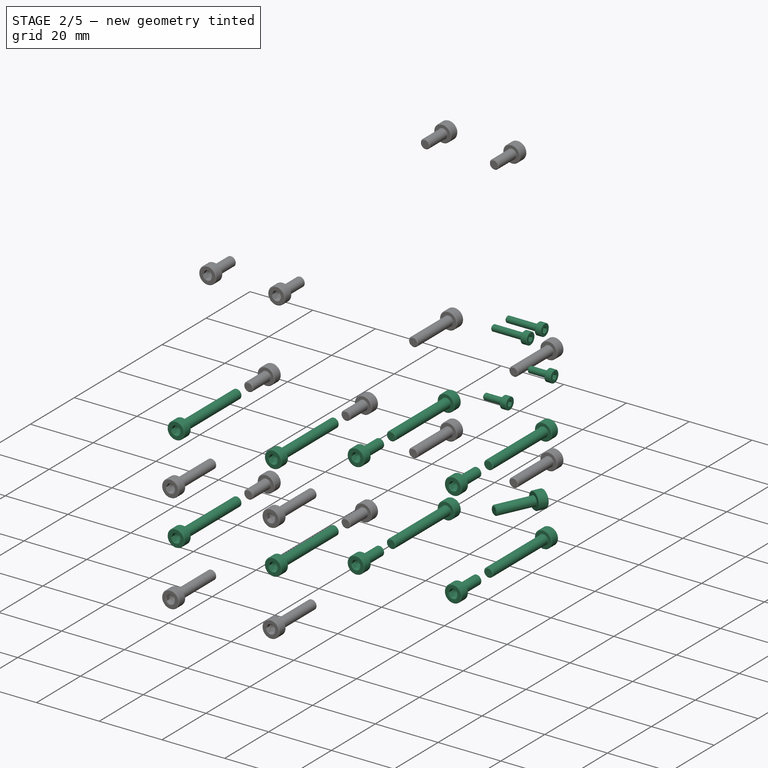
[diagram: stage 2 of 5 — iso view after this stage's code; geometry added in this stage tinted green]
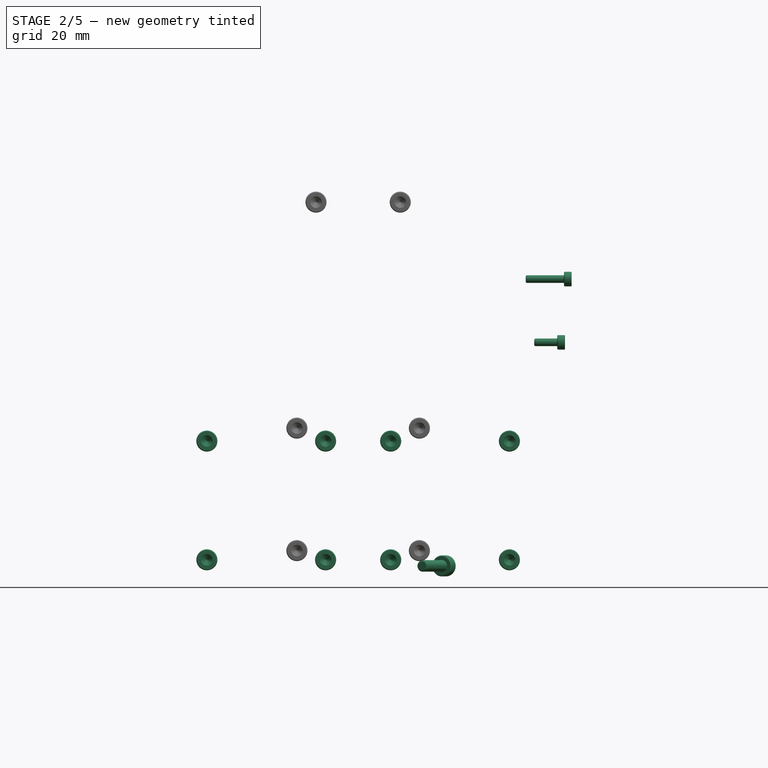
[diagram: stage 2 of 5 — front view after this stage's code; geometry added in this stage tinted green]
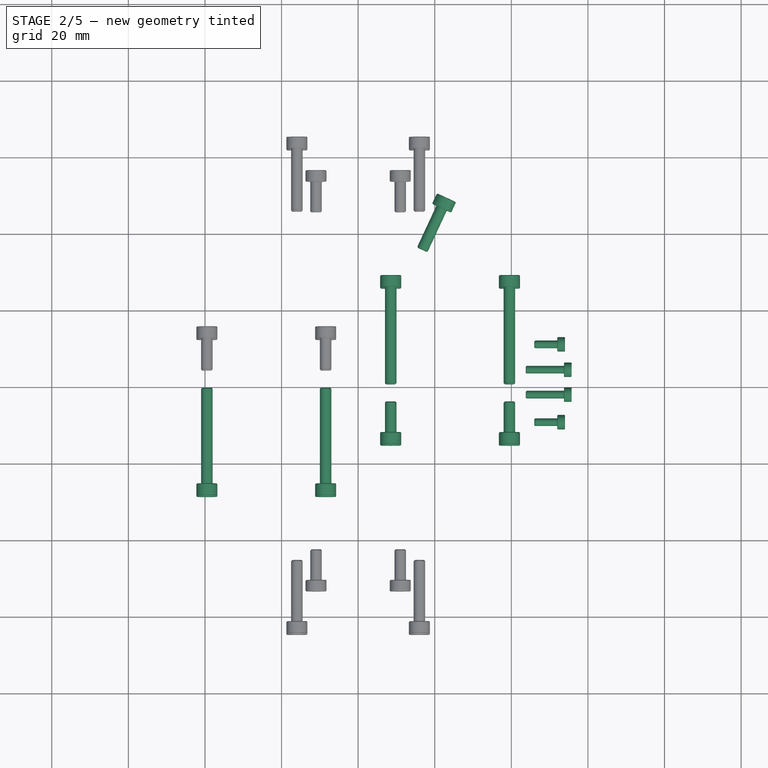
[diagram: stage 2 of 5 — top view after this stage's code; geometry added in this stage tinted green]
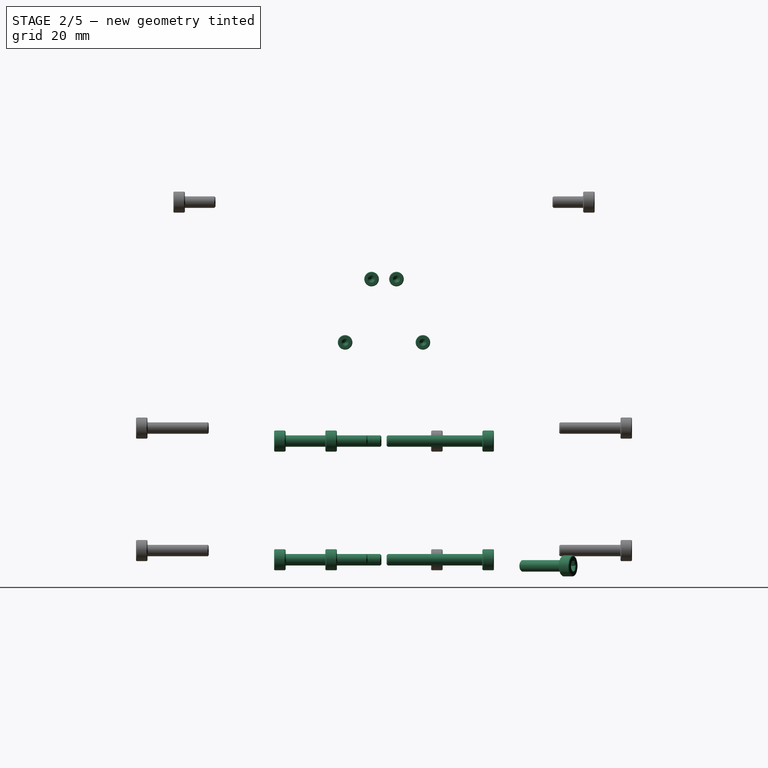
[diagram: stage 2 of 5 — right view after this stage's code; geometry added in this stage tinted green]
FEATURE [Part::FeaturePython] Screw016  label="M3x12-Screw008"  # Fasteners workbench fastener (typed FeaturePython)
  AssemblyType = Asm4EE
  AttachedBy = Origin
  AttachedTo = Art4Body_Art4Body#HoleAxis_9
  Placement = pos=(21.7938,46.737,16.5) rot=(0.15487,0.698575,0.698575;2.83429rad)
  diameter = 4
  invert = false
  length = 4
  lengthCustom = 12
  matchOuter = false
  offset = 0
  thread = false
  type = 33
  expr: Placement = Art4Body_Art4Body.Placement * Art4Body#HoleAxis_9.Placement * AttachmentOffset
FEATURE [Part::FeaturePython] Screw017  label="M2x6-Screw"  # Fasteners workbench fastener (typed FeaturePython)
  AssemblyType = Asm4EE
  AttachedBy = Origin
  AttachedTo = Art4Body_Art4Body#HoleAxis_14
  AttachmentOffset = pos=(0,0,0) rot=(1,0,0;3.14159rad)
  Placement = pos=(52,-10.16,74.875) rot=(0.57735,-0.57735,0.57735;4.18879rad)
  diameter = 2
  invert = false
  length = 3
  lengthCustom = 6
  matchOuter = false
  offset = 0
  thread = false
  type = 33
  expr: Placement = Art4Body_Art4Body.Placement * Art4Body#HoleAxis_14.Placement * AttachmentOffset
FEATURE [Part::FeaturePython] Screw018  label="M2x6-Screw001"  # Fasteners workbench fastener (typed FeaturePython)
  AssemblyType = Asm4EE
  AttachedBy = Origin
  AttachedTo = Art4Body_Art4Body#HoleAxis_13
  AttachmentOffset = pos=(0,0,0) rot=(1,0,0;3.14159rad)
  Placement = pos=(52,10.16,74.875) rot=(0.57735,-0.57735,0.57735;4.18879rad)
  diameter = 2
  invert = false
  length = 3
  lengthCustom = 6
  matchOuter = false
  offset = 0
  thread = false
  type = 33
  expr: Placement = Art4Body_Art4Body.Placement * Art4Body#HoleAxis_13.Placement * AttachmentOffset
FEATURE [Part::FeaturePython] Screw019  label="M2x10-Screw"  # Fasteners workbench fastener (typed FeaturePython)
  AssemblyType = Asm4EE
  AttachedBy = Origin
  AttachedTo = Art4Body_Art4Body#HoleAxis_16
  AttachmentOffset = pos=(0,0,0) rot=(1,0,0;3.14159rad)
  Placement = pos=(53.75,-3.25,91.4) rot=(0.57735,-0.57735,0.57735;4.18879rad)
  diameter = 2
  invert = false
  length = 5
  lengthCustom = 10
  matchOuter = false
  offset = 0
  thread = false
  type = 33
  expr: Placement = Art4Body_Art4Body.Placement * Art4Body#HoleAxis_16.Placement * AttachmentOffset
FEATURE [Part::FeaturePython] Screw020  label="M2x10-Screw001"  # Fasteners workbench fastener (typed FeaturePython)
  AssemblyType = Asm4EE
  AttachedBy = Origin
  AttachedTo = Art4Body_Art4Body#HoleAxis_15
  AttachmentOffset = pos=(0,0,0) rot=(1,0,0;3.14159rad)
  Placement = pos=(53.75,3.25,91.4) rot=(0.57735,-0.57735,0.57735;4.18879rad)
  diameter = 2
  invert = false
  length = 5
  lengthCustom = 10
  matchOuter = false
  offset = 0
  thread = false
  type = 33
  expr: Placement = Art4Body_Art4Body.Placement * Art4Body#HoleAxis_15.Placement * AttachmentOffset
FEATURE [Part::FeaturePython] Screw021  label="M3x25-Screw"  # Fasteners workbench fastener (typed FeaturePython)
  AssemblyType = Asm4EE
  AttachedBy = Origin
  AttachedTo = Art56MotorHolderB_Art56MotorHolderB#HoleAxis_3
  AttachmentOffset = pos=(0,0,0) rot=(1,0,0;3.14159rad)
  Placement = pos=(8.5,25.7,49.1) rot=(0,0.707107,0.707107;3.14159rad)
  diameter = 4
  invert = false
  length = 8
  lengthCustom = 25
  matchOuter = false
  offset = 0
  thread = false
  type = 33
  expr: Placement = Art56MotorHolderB_Art56MotorHolderB.Placement * Art56MotorHolderB#HoleAxis_3.Placement * AttachmentOffset
FEATURE [Part::FeaturePython] Screw022  label="M3x25-Screw018"  # Fasteners workbench fastener (typed FeaturePython)
  AssemblyType = Asm4EE
  AttachedBy = Origin
  AttachedTo = Art56MotorHolderB_Art56MotorHolderB#HoleAxis_2
  AttachmentOffset = pos=(0,0,0) rot=(1,0,0;3.14159rad)
  Placement = pos=(39.5,25.7,49.1) rot=(0,0.707107,0.707107;3.14159rad)
  diameter = 4
  invert = false
  length = 8
  lengthCustom = 25
  matchOuter = false
  offset = 0
  thread = false
  type = 33
  expr: Placement = Art56MotorHolderB_Art56MotorHolderB.Placement * Art56MotorHolderB#HoleAxis_2.Placement * AttachmentOffset
FEATURE [Part::FeaturePython] Screw023  label="M3x25-Screw017"  # Fasteners workbench fastener (typed FeaturePython)
  AssemblyType = Asm4EE
  AttachedBy = Origin
  AttachedTo = Art56MotorHolderB_Art56MotorHolderB#HoleAxis_1
  AttachmentOffset = pos=(0,0,0) rot=(1,0,0;3.14159rad)
  Placement = pos=(39.5,25.7,18.1) rot=(0,0.707107,0.707107;3.14159rad)
  diameter = 4
  invert = false
  length = 8
  lengthCustom = 25
  matchOuter = false
  offset = 0
  thread = false
  type = 33
  expr: Placement = Art56MotorHolderB_Art56MotorHolderB.Placement * Art56MotorHolderB#HoleAxis_1.Placement * AttachmentOffset
FEATURE [Part::FeaturePython] Screw024  label="M3x25-Screw019"  # Fasteners workbench fastener (typed FeaturePython)
  AssemblyType = Asm4EE
  AttachedBy = Origin
  AttachedTo = Art56MotorHolderB_Art56MotorHolderB#HoleAxis_4
  AttachmentOffset = pos=(0,0,0) rot=(1,0,0;3.14159rad)
  Placement = pos=(8.5,25.7,18.1) rot=(0,0.707107,0.707107;3.14159rad)
  diameter = 4
  invert = false
  length = 8
  lengthCustom = 25
  matchOuter = false
  offset = 0
  thread = false
  type = 33
  expr: Placement = Art56MotorHolderB_Art56MotorHolderB.Placement * Art56MotorHolderB#HoleAxis_4.Placement * AttachmentOffset
FEATURE [Part::FeaturePython] Screw025  label="M3x25-Screw020"  # Fasteners workbench fastener (typed FeaturePython)
  AssemblyType = Asm4EE
  AttachedBy = Origin
  AttachedTo = Art56MotorHolderB_Art56MotorHolderB001#HoleAxis_2
  AttachmentOffset = pos=(0,0,0) rot=(1,0,0;3.14159rad)
  Placement = pos=(-39.5,-25.7,49.1) rot=(-1,0,0;4.71239rad)
  diameter = 4
  invert = false
  length = 8
  lengthCustom = 25
  matchOuter = false
  offset = 0
  thread = false
  type = 33
  expr: Placement = Art56MotorHolderB_Art56MotorHolderB001.Placement * Art56MotorHolderB#HoleAxis_2.Placement * AttachmentOffset
FEATURE [Part::FeaturePython] Screw026  label="M3x25-Screw021"  # Fasteners workbench fastener (typed FeaturePython)
  AssemblyType = Asm4EE
  AttachedBy = Origin
  AttachedTo = Art56MotorHolderB_Art56MotorHolderB001#HoleAxis_1
  AttachmentOffset = pos=(0,0,0) rot=(1,0,0;3.14159rad)
  Placement = pos=(-39.5,-25.7,18.1) rot=(-1,0,0;4.71239rad)
  diameter = 4
  invert = false
  length = 8
  lengthCustom = 25
  matchOuter = false
  offset = 0
  thread = false
  type = 33
  expr: Placement = Art56MotorHolderB_Art56MotorHolderB001.Placement * Art56MotorHolderB#HoleAxis_1.Placement * AttachmentOffset
FEATURE [Part::FeaturePython] Screw027  label="M3x25-Screw022"  # Fasteners workbench fastener (typed FeaturePython)
  AssemblyType = Asm4EE
  AttachedBy = Origin
  AttachedTo = Art56MotorHolderB_Art56MotorHolderB001#HoleAxis_4
  AttachmentOffset = pos=(0,0,0) rot=(1,0,0;3.14159rad)
  Placement = pos=(-8.5,-25.7,18.1) rot=(-1,0,0;4.71239rad)
  diameter = 4
  invert = false
  length = 8
  lengthCustom = 25
  matchOuter = false
  offset = 0
  thread = false
  type = 33
  expr: Placement = Art56MotorHolderB_Art56MotorHolderB001.Placement * Art56MotorHolderB#HoleAxis_4.Placement * AttachmentOffset
FEATURE [Part::FeaturePython] Screw028  label="M3x25-Screw023"  # Fasteners workbench fastener (typed FeaturePython)
  AssemblyType = Asm4EE
  AttachedBy = Origin
  AttachedTo = Art56MotorHolderB_Art56MotorHolderB001#HoleAxis_3
  AttachmentOffset = pos=(0,0,0) rot=(1,0,0;3.14159rad)
  Placement = pos=(-8.5,-25.7,49.1) rot=(-1,0,0;4.71239rad)
  diameter = 4
  invert = false
  length = 8
  lengthCustom = 25
  matchOuter = false
  offset = 0
  thread = false
  type = 33
  expr: Placement = Art56MotorHolderB_Art56MotorHolderB001.Placement * Art56MotorHolderB#HoleAxis_3.Placement * AttachmentOffset
FEATURE [Part::FeaturePython] Screw029  label="M3x8-Screw017"  # Fasteners workbench fastener (typed FeaturePython)
  AssemblyType = Asm4EE
  AttachedBy = Origin
  AttachedTo = Art56MotorHolderA_Art56MotorHolderA#HoleAxis_2
  AttachmentOffset = pos=(0,0,0) rot=(1,0,0;3.14159rad)
  Placement = pos=(8.5,-12.3,49.1) rot=(0,0.707107,-0.707107;3.14159rad)
  diameter = 4
  invert = false
  length = 2
  lengthCustom = 8
  matchOuter = false
  offset = 0
  thread = false
  type = 33
  expr: Placement = Art56MotorHolderA_Art56MotorHolderA.Placement * Art56MotorHolderA#HoleAxis_2.Placement * AttachmentOffset
FEATURE [Part::FeaturePython] Screw030  label="M3x8-Screw018"  # Fasteners workbench fastener (typed FeaturePython)
  AssemblyType = Asm4EE
  AttachedBy = Origin
  AttachedTo = Art56MotorHolderA_Art56MotorHolderA#HoleAxis_1
  AttachmentOffset = pos=(0,0,0) rot=(1,0,0;3.14159rad)
  Placement = pos=(8.5,-12.3,18.1) rot=(0,0.707107,-0.707107;3.14159rad)
  diameter = 4
  invert = false
  length = 2
  lengthCustom = 8
  matchOuter = false
  offset = 0
  thread = false
  type = 33
  expr: Placement = Art56MotorHolderA_Art56MotorHolderA.Placement * Art56MotorHolderA#HoleAxis_1.Placement * AttachmentOffset
FEATURE [Part::FeaturePython] Screw031  label="M3x8-Screw019"  # Fasteners workbench fastener (typed FeaturePython)
  AssemblyType = Asm4EE
  AttachedBy = Origin
  AttachedTo = Art56MotorHolderA_Art56MotorHolderA#HoleAxis_3
  AttachmentOffset = pos=(0,0,0) rot=(1,0,0;3.14159rad)
  Placement = pos=(39.5,-12.3,49.1) rot=(0,0.707107,-0.707107;3.14159rad)
  diameter = 4
  invert = false
  length = 2
  lengthCustom = 8
  matchOuter = false
  offset = 0
  thread = false
  type = 33
  expr: Placement = Art56MotorHolderA_Art56MotorHolderA.Placement * Art56MotorHolderA#HoleAxis_3.Placement * AttachmentOffset
FEATURE [Part::FeaturePython] Screw032  label="M3x8-Screw020"  # Fasteners workbench fastener (typed FeaturePython)
  AssemblyType = Asm4EE
  AttachedBy = Origin
  AttachedTo = Art56MotorHolderA_Art56MotorHolderA#HoleAxis_4
  AttachmentOffset = pos=(0,0,0) rot=(1,0,0;3.14159rad)
  Placement = pos=(39.5,-12.3,18.1) rot=(0,0.707107,-0.707107;3.14159rad)
  diameter = 4
  invert = false
  length = 2
  lengthCustom = 8
  matchOuter = false
  offset = 0
  thread = false
  type = 33
  expr: Placement = Art56MotorHolderA_Art56MotorHolderA.Placement * Art56MotorHolderA#HoleAxis_4.Placement * AttachmentOffset
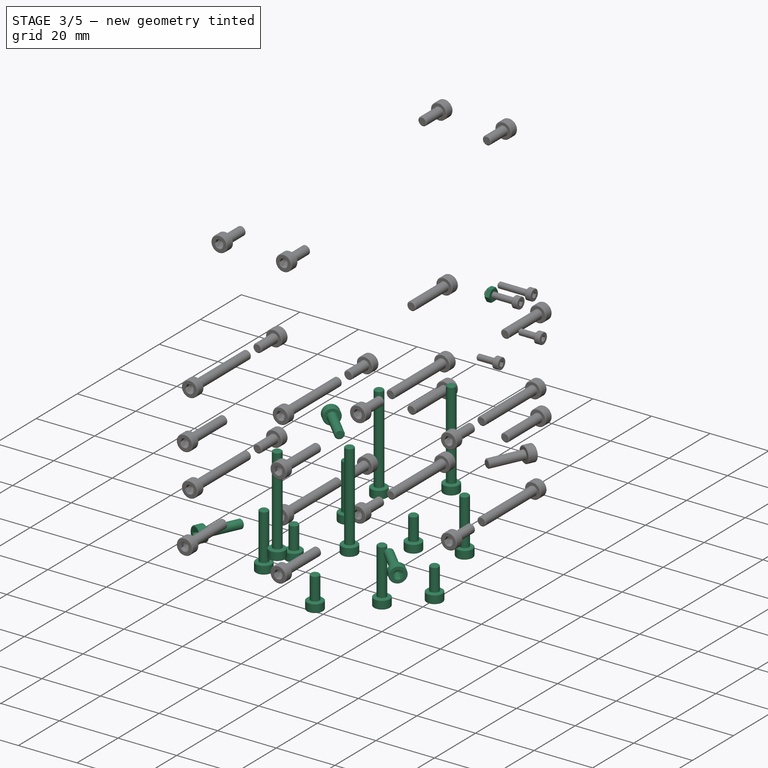
[diagram: stage 3 of 5 — iso view after this stage's code; geometry added in this stage tinted green]
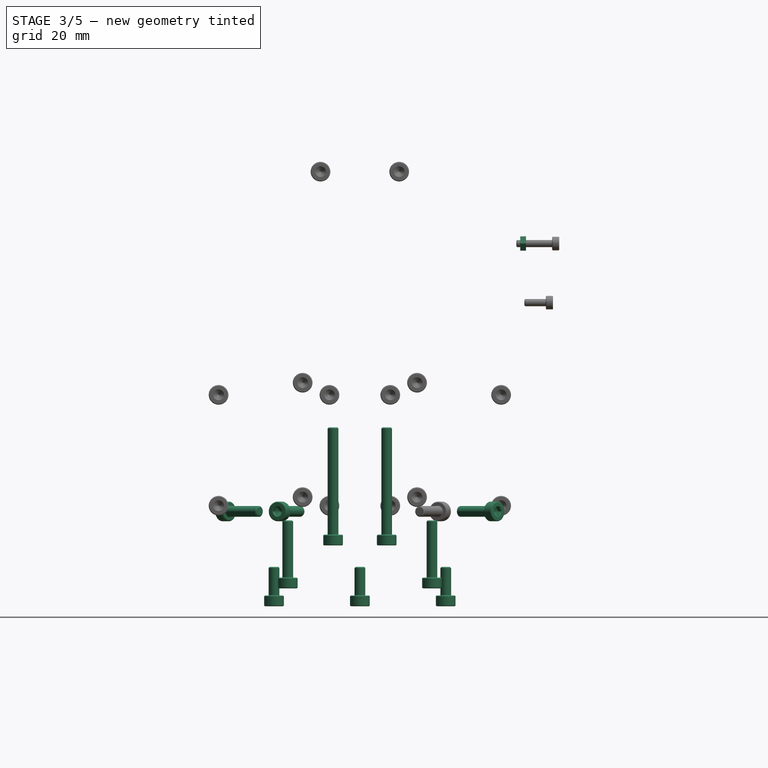
[diagram: stage 3 of 5 — front view after this stage's code; geometry added in this stage tinted green]
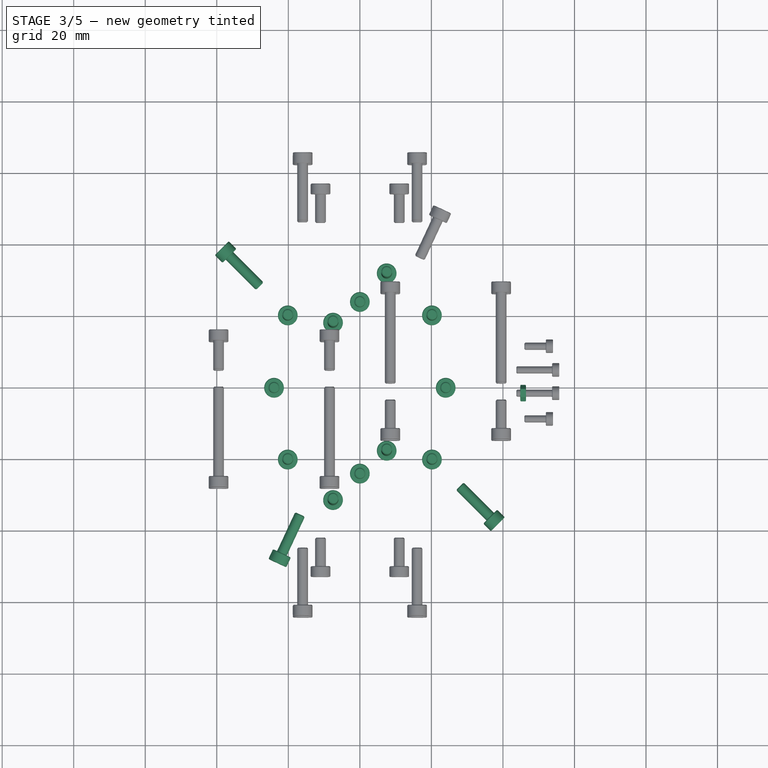
[diagram: stage 3 of 5 — top view after this stage's code; geometry added in this stage tinted green]
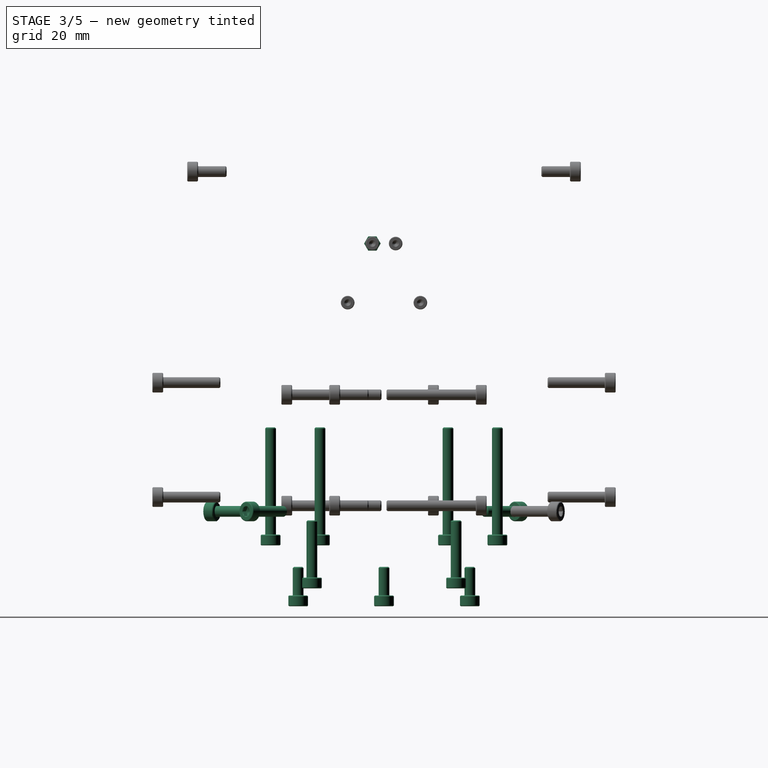
[diagram: stage 3 of 5 — right view after this stage's code; geometry added in this stage tinted green]
FEATURE [App::Link] MicroEndstop  label="MicroEndstop001"
  AssemblyType = Asm4EE
  AttachedBy = #LCS_MicroEndstop_1
  AttachedTo = Art4Body_Art4Body#LCS_MicroSwitch
  AttachmentOffset = pos=(0,0,0) rot=(1,0,0;3.14159rad)
  LinkPlacement = pos=(52.25,-6.3,90.2) rot=(0,0,1;1.5708rad)
  LinkedObject = -> MicroEndstot
  Placement = pos=(52.25,-6.3,90.2) rot=(0,0,1;1.5708rad)
  expr: Placement = Art4Body_Art4Body.Placement * Art4Body#LCS_MicroSwitch.Placement * AttachmentOffset * LCS_MicroEndstop_1.Placement ^ -1
FEATURE [Part::FeaturePython] Nut031  label="M2-Nut006"  # Fasteners workbench fastener (typed FeaturePython)
  AssemblyType = Asm4EE
  AttachedBy = Origin
  AttachedTo = MicroEndstop#HoleAxis_3
  AttachmentOffset = pos=(0,0,0) rot=(1,0,0;3.14159rad)
  Placement = pos=(46.45,-3.25,91.4) rot=(0.57735,0.57735,-0.57735;4.18879rad)
  diameter = 2
  invert = false
  matchOuter = false
  offset = 0
  thread = false
  type = 7
  expr: Placement = MicroEndstop.Placement * HoleAxis_3.Placement * AttachmentOffset
FEATURE [Part::FeaturePython] Screw001  label="M3x16-Screw005"  # Fasteners workbench fastener (typed FeaturePython)
  AssemblyType = Asm4EE
  AttachedBy = Origin
  AttachedTo = Art4TransmissionColumn_Art4TransmissionColumn#HoleAxis_2
  AttachmentOffset = pos=(0,0,0) rot=(1,0,0;3.14159rad)
  Placement = pos=(20.1525,-20.1525,-2) rot=(0.92388,0.382683,0;3.14159rad)
  diameter = 4
  invert = false
  length = 6
  lengthCustom = 16
  matchOuter = false
  offset = 0
  thread = false
  type = 33
  expr: Placement = Art4TransmissionColumn_Art4TransmissionColumn.Placement * Art4TransmissionColumn#HoleAxis_2.Placement * AttachmentOffset
FEATURE [Part::FeaturePython] Screw002  label="M3x16-Screw006"  # Fasteners workbench fastener (typed FeaturePython)
  AssemblyType = Asm4EE
  AttachedBy = Origin
  AttachedTo = Art4TransmissionColumn_Art4TransmissionColumn#HoleAxis_1
  AttachmentOffset = pos=(0,0,0) rot=(1,0,0;3.14159rad)
  Placement = pos=(20.1525,20.1525,-2) rot=(0.92388,0.382683,0;3.14159rad)
  diameter = 4
  invert = false
  length = 6
  lengthCustom = 16
  matchOuter = false
  offset = 0
  thread = false
  type = 33
  expr: Placement = Art4TransmissionColumn_Art4TransmissionColumn.Placement * Art4TransmissionColumn#HoleAxis_1.Placement * AttachmentOffset
FEATURE [Part::FeaturePython] Screw003  label="M3x16-Screw007"  # Fasteners workbench fastener (typed FeaturePython)
  AssemblyType = Asm4EE
  AttachedBy = Origin
  AttachedTo = Art4TransmissionColumn_Art4TransmissionColumn#HoleAxis_4
  AttachmentOffset = pos=(0,0,0) rot=(1,0,0;3.14159rad)
  Placement = pos=(-20.1525,-20.1525,-2) rot=(0.92388,0.382683,0;3.14159rad)
  diameter = 4
  invert = false
  length = 6
  lengthCustom = 16
  matchOuter = false
  offset = 0
  thread = false
  type = 33
  expr: Placement = Art4TransmissionColumn_Art4TransmissionColumn.Placement * Art4TransmissionColumn#HoleAxis_4.Placement * AttachmentOffset
FEATURE [Part::FeaturePython] Screw004  label="M3x16-Screw008"  # Fasteners workbench fastener (typed FeaturePython)
  AssemblyType = Asm4EE
  AttachedBy = Origin
  AttachedTo = Art4TransmissionColumn_Art4TransmissionColumn#HoleAxis_3
  AttachmentOffset = pos=(0,0,0) rot=(1,0,0;3.14159rad)
  Placement = pos=(-20.1525,20.1525,-2) rot=(0.92388,0.382683,0;3.14159rad)
  diameter = 4
  invert = false
  length = 6
  lengthCustom = 16
  matchOuter = false
  offset = 0
  thread = false
  type = 33
  expr: Placement = Art4TransmissionColumn_Art4TransmissionColumn.Placement * Art4TransmissionColumn#HoleAxis_3.Placement * AttachmentOffset
FEATURE [Part::FeaturePython] Screw005  label="M3x8-Screw005"  # Fasteners workbench fastener (typed FeaturePython)
  AssemblyType = Asm4EE
  AttachedBy = Origin
  AttachedTo = Art4Optodisk_Art4Optodisk#HoleAxis_3
  Placement = pos=(24,-7.7e-14,-7) rot=(0,1,0;3.14159rad)
  diameter = 4
  invert = false
  length = 2
  lengthCustom = 8
  matchOuter = false
  offset = 0
  thread = false
  type = 33
  expr: Placement = Art4Optodisk_Art4Optodisk.Placement * Art4Optodisk#HoleAxis_3.Placement * AttachmentOffset
FEATURE [Part::FeaturePython] Screw006  label="M3x8-Screw006"  # Fasteners workbench fastener (typed FeaturePython)
  AssemblyType = Asm4EE
  AttachedBy = Origin
  AttachedTo = Art4Optodisk_Art4Optodisk#HoleAxis_2
  Placement = pos=(-8.2e-14,-24,-7) rot=(0,1,0;3.14159rad)
  diameter = 4
  invert = false
  length = 2
  lengthCustom = 8
  matchOuter = false
  offset = 0
  thread = false
  type = 33
  expr: Placement = Art4Optodisk_Art4Optodisk.Placement * Art4Optodisk#HoleAxis_2.Placement * AttachmentOffset
FEATURE [Part::FeaturePython] Screw007  label="M3x8-Screw007"  # Fasteners workbench fastener (typed FeaturePython)
  AssemblyType = Asm4EE
  AttachedBy = Origin
  AttachedTo = Art4Optodisk_Art4Optodisk#HoleAxis_1
  Placement = pos=(-24,9.6e-14,-7) rot=(0,1,0;3.14159rad)
  diameter = 4
  invert = false
  length = 2
  lengthCustom = 8
  matchOuter = false
  offset = 0
  thread = false
  type = 33
  expr: Placement = Art4Optodisk_Art4Optodisk.Placement * Art4Optodisk#HoleAxis_1.Placement * AttachmentOffset
FEATURE [Part::FeaturePython] Screw008  label="M3x8-Screw008"  # Fasteners workbench fastener (typed FeaturePython)
  AssemblyType = Asm4EE
  AttachedBy = Origin
  AttachedTo = Art4Optodisk_Art4Optodisk#HoleAxis_4
  Placement = pos=(9.1e-14,24,-7) rot=(0,1,0;3.14159rad)
  diameter = 4
  invert = false
  length = 2
  lengthCustom = 8
  matchOuter = false
  offset = 0
  thread = false
  type = 33
  expr: Placement = Art4Optodisk_Art4Optodisk.Placement * Art4Optodisk#HoleAxis_4.Placement * AttachmentOffset
FEATURE [Part::FeaturePython] Screw009  label="M3x30-Screw005"  # Fasteners workbench fastener (typed FeaturePython)
  AssemblyType = Asm4EE
  AttachedBy = Origin
  AttachedTo = Art4BodyBot_Art4BodyBot#HoleAxis_11
  AttachmentOffset = pos=(0,0,0) rot=(1,0,0;3.14159rad)
  Placement = pos=(7.5,-17.9,10) rot=(0.707107,0.707107,0;3.14159rad)
  diameter = 4
  invert = false
  length = 9
  lengthCustom = 30
  matchOuter = false
  offset = 0
  thread = false
  type = 33
  expr: Placement = Art4BodyBot_Art4BodyBot.Placement * Art4BodyBot#HoleAxis_11.Placement * AttachmentOffset
FEATURE [Part::FeaturePython] Screw010  label="M3x30-Screw006"  # Fasteners workbench fastener (typed FeaturePython)
  AssemblyType = Asm4EE
  AttachedBy = Origin
  AttachedTo = Art4BodyBot_Art4BodyBot#HoleAxis_12
  AttachmentOffset = pos=(0,0,0) rot=(1,0,0;3.14159rad)
  Placement = pos=(-7.5,-31.7,10) rot=(0.707107,0.707107,0;3.14159rad)
  diameter = 4
  invert = false
  length = 9
  lengthCustom = 30
  matchOuter = false
  offset = 0
  thread = false
  type = 33
  expr: Placement = Art4BodyBot_Art4BodyBot.Placement * Art4BodyBot#HoleAxis_12.Placement * AttachmentOffset
FEATURE [Part::FeaturePython] Screw011  label="M3x30-Screw007"  # Fasteners workbench fastener (typed FeaturePython)
  AssemblyType = Asm4EE
  AttachedBy = Origin
  AttachedTo = Art4BodyBot_Art4BodyBot#HoleAxis_10
  AttachmentOffset = pos=(0,0,0) rot=(1,0,0;3.14159rad)
  Placement = pos=(-7.5,17.9,10) rot=(0.707107,0.707107,0;3.14159rad)
  diameter = 4
  invert = false
  length = 9
  lengthCustom = 30
  matchOuter = false
  offset = 0
  thread = false
  type = 33
  expr: Placement = Art4BodyBot_Art4BodyBot.Placement * Art4BodyBot#HoleAxis_10.Placement * AttachmentOffset
FEATURE [Part::FeaturePython] Screw012  label="M3x30-Screw008"  # Fasteners workbench fastener (typed FeaturePython)
  AssemblyType = Asm4EE
  AttachedBy = Origin
  AttachedTo = Art4BodyBot_Art4BodyBot#HoleAxis_9
  AttachmentOffset = pos=(0,0,0) rot=(1,0,0;3.14159rad)
  Placement = pos=(7.5,31.7,10) rot=(0.707107,0.707107,0;3.14159rad)
  diameter = 4
  invert = false
  length = 9
  lengthCustom = 30
  matchOuter = false
  offset = 0
  thread = false
  type = 33
  expr: Placement = Art4BodyBot_Art4BodyBot.Placement * Art4BodyBot#HoleAxis_9.Placement * AttachmentOffset
FEATURE [Part::FeaturePython] Screw013  label="M3x12-Screw005"  # Fasteners workbench fastener (typed FeaturePython)
  AssemblyType = Asm4EE
  AttachedBy = Origin
  AttachedTo = Art4Body_Art4Body#HoleAxis_11
  Placement = pos=(36.4645,-36.4645,16.5) rot=(0.862856,0.357407,0.357407;1.71777rad)
  diameter = 4
  invert = false
  length = 4
  lengthCustom = 12
  matchOuter = false
  offset = 0
  thread = false
  type = 33
  expr: Placement = Art4Body_Art4Body.Placement * Art4Body#HoleAxis_11.Placement * AttachmentOffset
FEATURE [Part::FeaturePython] Screw014  label="M3x12-Screw006"  # Fasteners workbench fastener (typed FeaturePython)
  AssemblyType = Asm4EE
  AttachedBy = Origin
  AttachedTo = Art4Body_Art4Body#HoleAxis_12
  Placement = pos=(-21.7938,-46.737,16.5) rot=(0.954201,-0.211541,-0.211541;1.61766rad)
  diameter = 4
  invert = false
  length = 4
  lengthCustom = 12
  matchOuter = false
  offset = 0
  thread = false
  type = 33
  expr: Placement = Art4Body_Art4Body.Placement * Art4Body#HoleAxis_12.Placement * AttachmentOffset
FEATURE [Part::FeaturePython] Screw015  label="M3x12-Screw007"  # Fasteners workbench fastener (typed FeaturePython)
  AssemblyType = Asm4EE
  AttachedBy = Origin
  AttachedTo = Art4Body_Art4Body#HoleAxis_10
  Placement = pos=(-36.4645,36.4645,16.5) rot=(-0.281085,0.678598,0.678598;3.68962rad)
  diameter = 4
  invert = false
  length = 4
  lengthCustom = 12
  matchOuter = false
  offset = 0
  thread = false
  type = 33
  expr: Placement = Art4Body_Art4Body.Placement * Art4Body#HoleAxis_10.Placement * AttachmentOffset
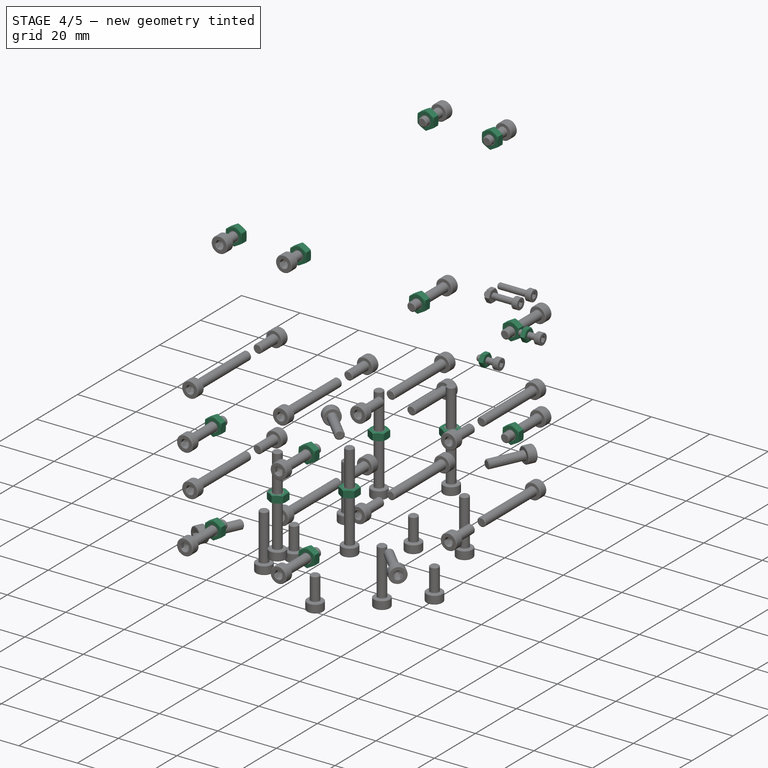
[diagram: stage 4 of 5 — iso view after this stage's code; geometry added in this stage tinted green]
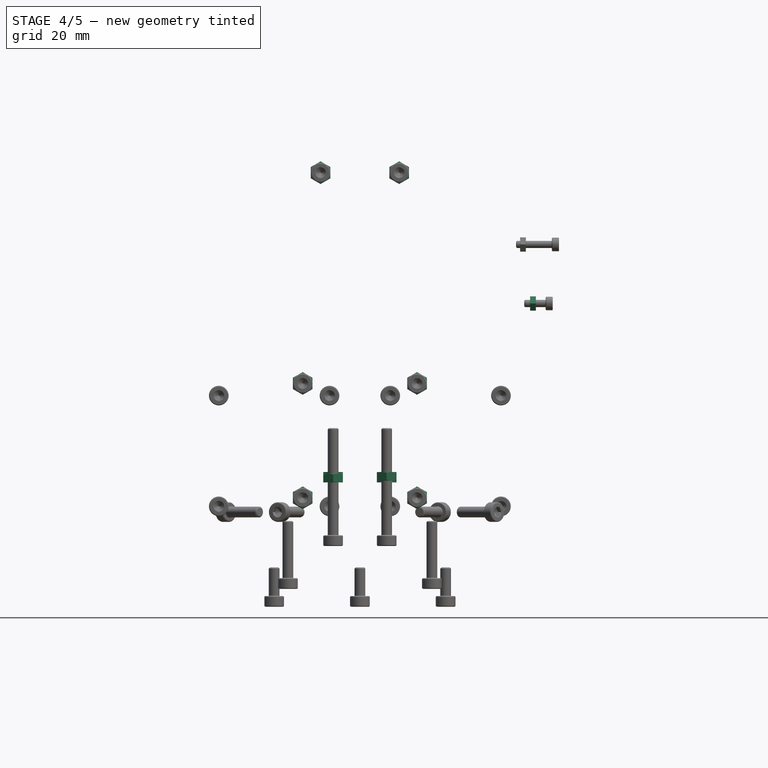
[diagram: stage 4 of 5 — front view after this stage's code; geometry added in this stage tinted green]
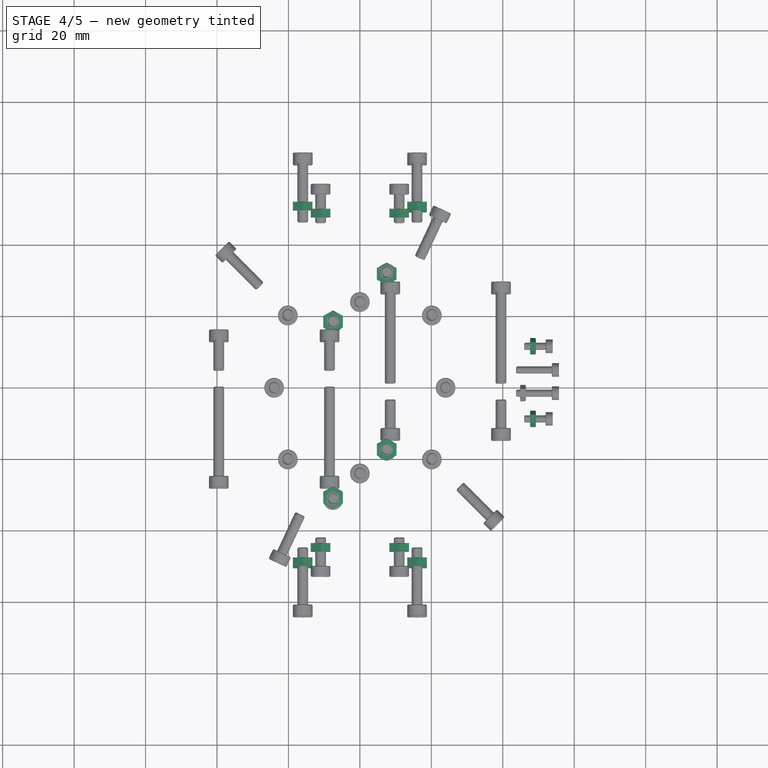
[diagram: stage 4 of 5 — top view after this stage's code; geometry added in this stage tinted green]
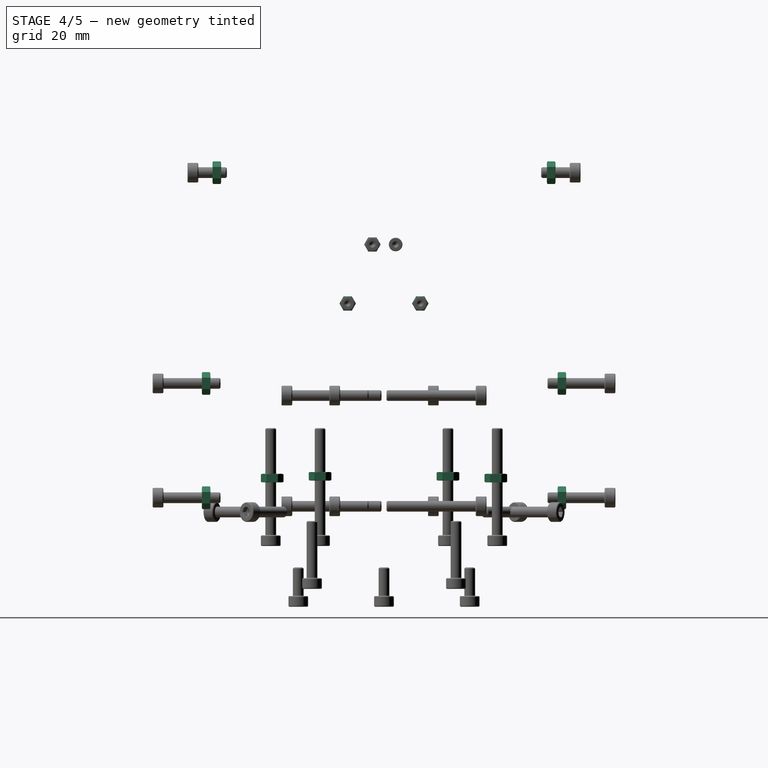
[diagram: stage 4 of 5 — right view after this stage's code; geometry added in this stage tinted green]
FEATURE [Part::FeaturePython] Nut014  label="M3-Nut038"  # Fasteners workbench fastener (typed FeaturePython)
  AssemblyType = Asm4EE
  AttachedBy = Origin
  AttachedTo = Art4Body_Art4Body#HoleAxis_4
  AttachmentOffset = pos=(0,0,0) rot=(0.707107,-0.707107,0;3.14159rad)
  Placement = pos=(-16,51,52.5) rot=(0.57735,-0.57735,0.57735;2.0944rad)
  diameter = 4
  invert = false
  matchOuter = false
  offset = 0
  thread = false
  type = 7
  expr: Placement = Art4Body_Art4Body.Placement * Art4Body#HoleAxis_4.Placement * AttachmentOffset
FEATURE [Part::FeaturePython] Nut015  label="M3-Nut039"  # Fasteners workbench fastener (typed FeaturePython)
  AssemblyType = Asm4EE
  AttachedBy = Origin
  AttachedTo = Art4Body_Art4Body#HoleAxis_3
  AttachmentOffset = pos=(0,0,0) rot=(0.707107,-0.707107,0;3.14159rad)
  Placement = pos=(16,51,52.5) rot=(0.57735,-0.57735,0.57735;2.0944rad)
  diameter = 4
  invert = false
  matchOuter = false
  offset = 0
  thread = false
  type = 7
  expr: Placement = Art4Body_Art4Body.Placement * Art4Body#HoleAxis_3.Placement * AttachmentOffset
FEATURE [Part::FeaturePython] Nut016  label="M3-Nut040"  # Fasteners workbench fastener (typed FeaturePython)
  AssemblyType = Asm4EE
  AttachedBy = Origin
  AttachedTo = Art4Body_Art4Body#HoleAxis_1
  AttachmentOffset = pos=(0,0,0) rot=(0.707107,-0.707107,0;3.14159rad)
  Placement = pos=(16,51,20.5) rot=(0.57735,-0.57735,0.57735;2.0944rad)
  diameter = 4
  invert = false
  matchOuter = false
  offset = 0
  thread = false
  type = 7
  expr: Placement = Art4Body_Art4Body.Placement * Art4Body#HoleAxis_1.Placement * AttachmentOffset
FEATURE [Part::FeaturePython] Nut017  label="M3-Nut041"  # Fasteners workbench fastener (typed FeaturePython)
  AssemblyType = Asm4EE
  AttachedBy = Origin
  AttachedTo = Art4Body_Art4Body#HoleAxis_6
  AttachmentOffset = pos=(0,0,0) rot=(0.707107,-0.707107,0;3.14159rad)
  Placement = pos=(16,-51,52.5) rot=(-0.57735,0.57735,0.57735;2.0944rad)
  diameter = 4
  invert = false
  matchOuter = false
  offset = 0
  thread = false
  type = 7
  expr: Placement = Art4Body_Art4Body.Placement * Art4Body#HoleAxis_6.Placement * AttachmentOffset
FEATURE [Part::FeaturePython] Nut018  label="M3-Nut042"  # Fasteners workbench fastener (typed FeaturePython)
  AssemblyType = Asm4EE
  AttachedBy = Origin
  AttachedTo = Art4Body_Art4Body#HoleAxis_5
  AttachmentOffset = pos=(0,0,0) rot=(0.707107,-0.707107,0;3.14159rad)
  Placement = pos=(16,-51,20.5) rot=(-0.57735,0.57735,0.57735;2.0944rad)
  diameter = 4
  invert = false
  matchOuter = false
  offset = 0
  thread = false
  type = 7
  expr: Placement = Art4Body_Art4Body.Placement * Art4Body#HoleAxis_5.Placement * AttachmentOffset
FEATURE [Part::FeaturePython] Nut019  label="M3-Nut043"  # Fasteners workbench fastener (typed FeaturePython)
  AssemblyType = Asm4EE
  AttachedBy = Origin
  AttachedTo = Art4Body_Art4Body#HoleAxis_7
  AttachmentOffset = pos=(0,0,0) rot=(0.707107,-0.707107,0;3.14159rad)
  Placement = pos=(-16,-51,20.5) rot=(-0.57735,0.57735,0.57735;2.0944rad)
  diameter = 4
  invert = false
  matchOuter = false
  offset = 0
  thread = false
  type = 7
  expr: Placement = Art4Body_Art4Body.Placement * Art4Body#HoleAxis_7.Placement * AttachmentOffset
FEATURE [Part::FeaturePython] Nut020  label="M3-Nut044"  # Fasteners workbench fastener (typed FeaturePython)
  AssemblyType = Asm4EE
  AttachedBy = Origin
  AttachedTo = Art4Body_Art4Body#HoleAxis_8
  AttachmentOffset = pos=(0,0,0) rot=(0.707107,-0.707107,0;3.14159rad)
  Placement = pos=(-16,-51,52.5) rot=(-0.57735,0.57735,0.57735;2.0944rad)
  diameter = 4
  invert = false
  matchOuter = false
  offset = 0
  thread = false
  type = 7
  expr: Placement = Art4Body_Art4Body.Placement * Art4Body#HoleAxis_8.Placement * AttachmentOffset
FEATURE [Part::FeaturePython] Nut021  label="M3-Nut045"  # Fasteners workbench fastener (typed FeaturePython)
  AssemblyType = Asm4EE
  AttachedBy = Origin
  AttachedTo = Art4Body_Art4Body#HoleAxis_19
  AttachmentOffset = pos=(0,0,0) rot=(1,0,0;3.14159rad)
  Placement = pos=(11,-48,111.5) rot=(-0.57735,-0.57735,-0.57735;2.0944rad)
  diameter = 4
  invert = false
  matchOuter = false
  offset = 0
  thread = false
  type = 7
  expr: Placement = Art4Body_Art4Body.Placement * Art4Body#HoleAxis_19.Placement * AttachmentOffset
FEATURE [Part::FeaturePython] Nut022  label="M3-Nut046"  # Fasteners workbench fastener (typed FeaturePython)
  AssemblyType = Asm4EE
  AttachedBy = Origin
  AttachedTo = Art4Body_Art4Body#HoleAxis_20
  AttachmentOffset = pos=(0,0,0) rot=(1,0,0;3.14159rad)
  Placement = pos=(-11,-48,111.5) rot=(-0.57735,-0.57735,-0.57735;2.0944rad)
  diameter = 4
  invert = false
  matchOuter = false
  offset = 0
  thread = false
  type = 7
  expr: Placement = Art4Body_Art4Body.Placement * Art4Body#HoleAxis_20.Placement * AttachmentOffset
FEATURE [Part::FeaturePython] Nut023  label="M3-Nut047"  # Fasteners workbench fastener (typed FeaturePython)
  AssemblyType = Asm4EE
  AttachedBy = Origin
  AttachedTo = Art4Body_Art4Body#HoleAxis_18
  AttachmentOffset = pos=(0,0,0) rot=(1,0,0;3.14159rad)
  Placement = pos=(-11,48,111.5) rot=(0.57735,-0.57735,0.57735;2.0944rad)
  diameter = 4
  invert = false
  matchOuter = false
  offset = 0
  thread = false
  type = 7
  expr: Placement = Art4Body_Art4Body.Placement * Art4Body#HoleAxis_18.Placement * AttachmentOffset
FEATURE [Part::FeaturePython] Nut024  label="M3-Nut048"  # Fasteners workbench fastener (typed FeaturePython)
  AssemblyType = Asm4EE
  AttachedBy = Origin
  AttachedTo = Art4Body_Art4Body#HoleAxis_17
  AttachmentOffset = pos=(0,0,0) rot=(1,0,0;3.14159rad)
  Placement = pos=(11,48,111.5) rot=(0.57735,-0.57735,0.57735;2.0944rad)
  diameter = 4
  invert = false
  matchOuter = false
  offset = 0
  thread = false
  type = 7
  expr: Placement = Art4Body_Art4Body.Placement * Art4Body#HoleAxis_17.Placement * AttachmentOffset
FEATURE [Part::FeaturePython] Nut025  label="M3-Nut066"  # Fasteners workbench fastener (typed FeaturePython)
  AssemblyType = Asm4EE
  AttachedBy = Origin
  AttachedTo = Art56MotorHolderB_Art56MotorHolderB001#HoleAxis_5
  AttachmentOffset = pos=(0,0,0) rot=(0.707107,-0.707107,0;3.14159rad)
  Placement = pos=(-7.5,-31.3,24.8) rot=(0,0,1;1.5708rad)
  diameter = 4
  invert = false
  matchOuter = false
  offset = 0
  thread = false
  type = 7
  expr: Placement = Art56MotorHolderB_Art56MotorHolderB001.Placement * Art56MotorHolderB#HoleAxis_5.Placement * AttachmentOffset
FEATURE [Part::FeaturePython] Nut026  label="M3-Nut054"  # Fasteners workbench fastener (typed FeaturePython)
  AssemblyType = Asm4EE
  AttachedBy = Origin
  AttachedTo = Art56MotorHolderA_Art56MotorHolderA#HoleAxis_5
  AttachmentOffset = pos=(0,0,0) rot=(0,0,1;1.5708rad)
  Placement = pos=(7.5,-17.9,25.3) rot=(0,0,-1;1.5708rad)
  diameter = 4
  invert = false
  matchOuter = false
  offset = 0
  thread = false
  type = 7
  expr: Placement = Art56MotorHolderA_Art56MotorHolderA.Placement * Art56MotorHolderA#HoleAxis_5.Placement * AttachmentOffset
FEATURE [Part::FeaturePython] Nut027  label="M3-Nut065"  # Fasteners workbench fastener (typed FeaturePython)
  AssemblyType = Asm4EE
  AttachedBy = Origin
  AttachedTo = Art56MotorHolderA_Art56MotorHolderA001#HoleAxis_5
  AttachmentOffset = pos=(0,0,0) rot=(0,0,1;1.5708rad)
  Placement = pos=(-7.5,17.9,25.3) rot=(0,0,1;1.5708rad)
  diameter = 4
  invert = false
  matchOuter = false
  offset = 0
  thread = false
  type = 7
  expr: Placement = Art56MotorHolderA_Art56MotorHolderA001.Placement * Art56MotorHolderA#HoleAxis_5.Placement * AttachmentOffset
FEATURE [Part::FeaturePython] Nut028  label="M3-Nut"  # Fasteners workbench fastener (typed FeaturePython)
  AssemblyType = Asm4EE
  AttachedBy = Origin
  AttachedTo = Art56MotorHolderB_Art56MotorHolderB#HoleAxis_5
  AttachmentOffset = pos=(0,0,0) rot=(0.707107,-0.707107,0;3.14159rad)
  Placement = pos=(7.5,31.3,24.8) rot=(0,0,-1;1.5708rad)
  diameter = 4
  invert = false
  matchOuter = false
  offset = 0
  thread = false
  type = 7
  expr: Placement = Art56MotorHolderB_Art56MotorHolderB.Placement * Art56MotorHolderB#HoleAxis_5.Placement * AttachmentOffset
FEATURE [Part::FeaturePython] Nut029  label="M2-Nut004"  # Fasteners workbench fastener (typed FeaturePython)
  AssemblyType = Asm4EE
  AttachedBy = Origin
  AttachedTo = ServoConnectorPCB#HoleAxis_2
  AttachmentOffset = pos=(0,0,0) rot=(1,0,0;3.14159rad)
  Placement = pos=(49.25,10.16,74.875) rot=(-0.57735,-0.57735,0.57735;2.0944rad)
  diameter = 2
  invert = false
  matchOuter = false
  offset = 0
  thread = false
  type = 7
  expr: Placement = ServoConnectorPCB.Placement * HoleAxis_2.Placement * AttachmentOffset
FEATURE [Part::FeaturePython] Nut030  label="M2-Nut005"  # Fasteners workbench fastener (typed FeaturePython)
  AssemblyType = Asm4EE
  AttachedBy = Origin
  AttachedTo = ServoConnectorPCB#HoleAxis_1
  AttachmentOffset = pos=(0,0,0) rot=(1,0,0;3.14159rad)
  Placement = pos=(49.25,-10.16,74.875) rot=(-0.57735,-0.57735,0.57735;2.0944rad)
  diameter = 2
  invert = false
  matchOuter = false
  offset = 0
  thread = false
  type = 7
  expr: Placement = ServoConnectorPCB.Placement * HoleAxis_1.Placement * AttachmentOffset
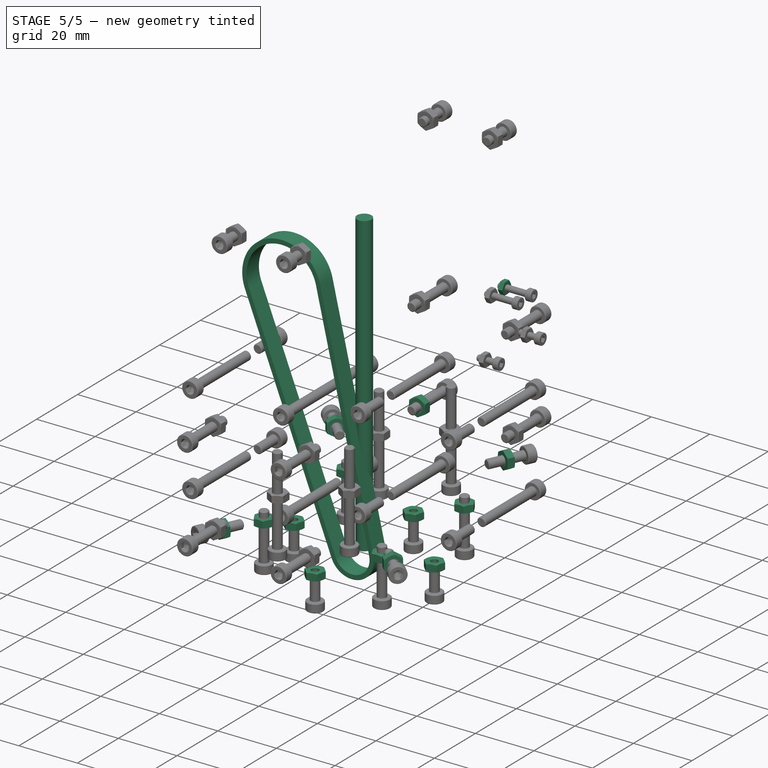
[diagram: stage 5 of 5 — iso view after this stage's code; geometry added in this stage tinted green]
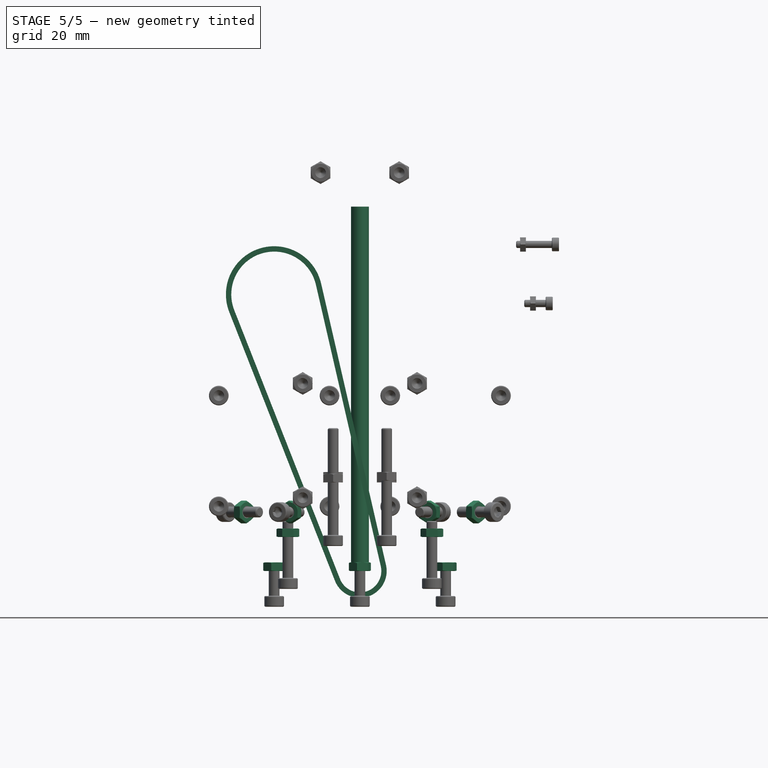
[diagram: stage 5 of 5 — front view after this stage's code; geometry added in this stage tinted green]
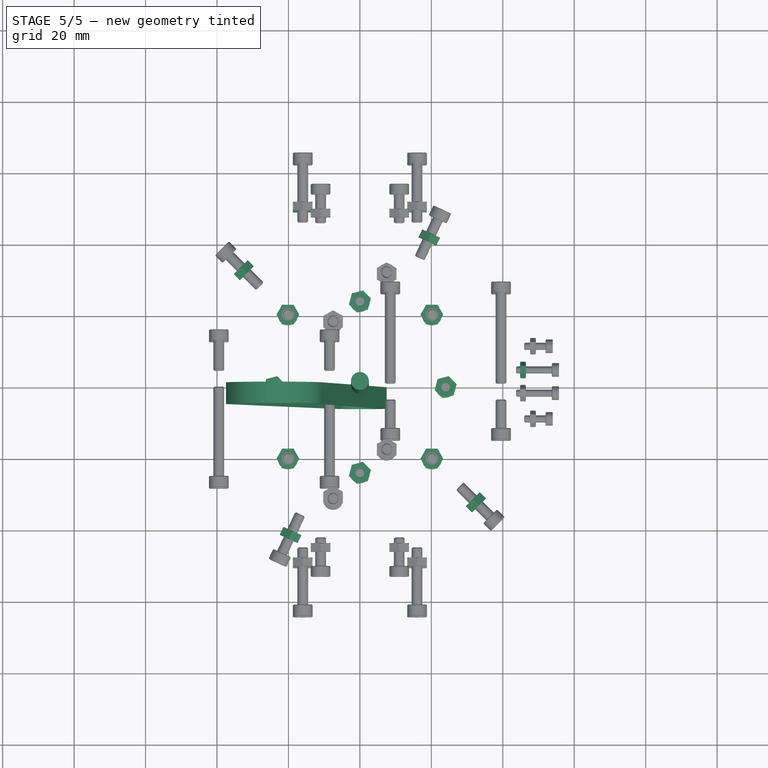
[diagram: stage 5 of 5 — top view after this stage's code; geometry added in this stage tinted green]
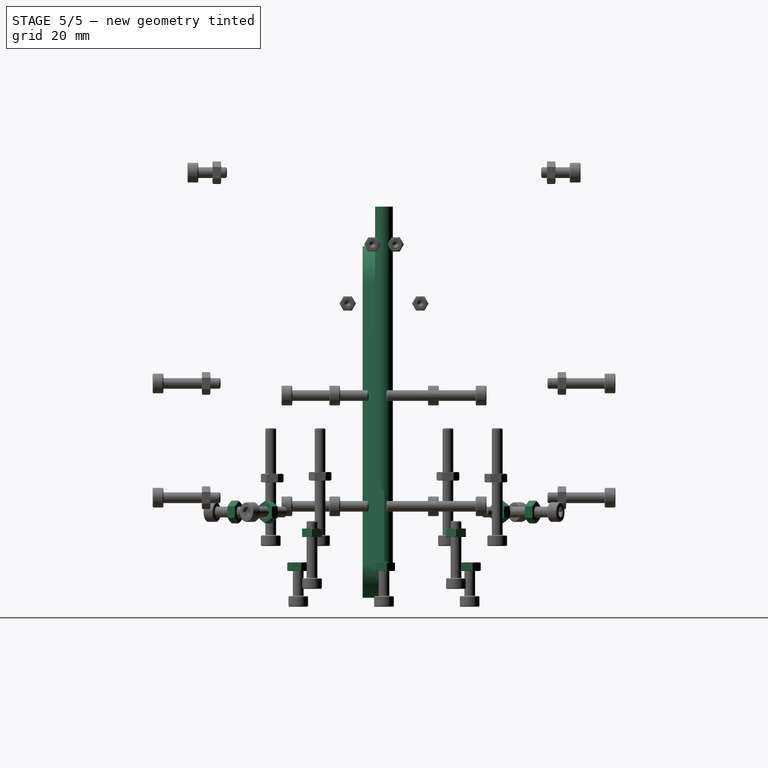
[diagram: stage 5 of 5 — right view after this stage's code; geometry added in this stage tinted green]
FEATURE [PartDesign::CoordinateSystem] LCS_Origin
  AttacherType = Attacher::AttachEngine3D
  MapMode = 2
  Support = -> [X_Axis]
FEATURE [App::DocumentObjectGroup] Constraints
FEATURE [App::FeaturePython] Variables  # WARN: FeaturePython — macro-defined, semantics opaque (R4)
FEATURE [App::Link] Art4TransmissionColumn_Art4TransmissionColumn
  AssemblyType = Asm4EE
  AttachedBy = #LCS_Art4TransmissionColumn
  AttachedTo = Parent Assembly#LCS_Origin
  AttachmentOffset = pos=(0,0,0) rot=(0,0,1;0.785398rad)
  LinkPlacement = pos=(0,0,-69) rot=(0,0,1;0.785398rad)
  LinkedObject = -> <external Art4TransmissionColumn.FCStd>#Body
  Placement = pos=(0,0,-69) rot=(0,0,1;0.785398rad)
  expr: Placement = LCS_Origin.Placement * AttachmentOffset * Art4TransmissionColumn#LCS_Art4TransmissionColumn.Placement ^ -1
FEATURE [App::Link] Art4BodyBot_Art4BodyBot
  AssemblyType = Asm4EE
  AttachedBy = #LCS_Art4BodyBot
  AttachedTo = Art4TransmissionColumn_Art4TransmissionColumn#LCS_Art4Body
  AttachmentOffset = pos=(0,0,0) rot=(0,0,1;3.92699rad)
  LinkPlacement = pos=(-4e-15,1.24e-14,7) rot=(0,0,1;4.71239rad)
  LinkedObject = -> <external Art4BodyBot.FCStd>#Body
  Placement = pos=(-4e-15,1.24e-14,7) rot=(0,0,1;4.71239rad)
  expr: Placement = Art4TransmissionColumn_Art4TransmissionColumn.Placement * Art4TransmissionColumn#LCS_Art4Body.Placement * AttachmentOffset * Art4BodyBot#LCS_Art4BodyBot.Placement ^ -1
FEATURE [App::Link] Art4Body_Art4Body
  AssemblyType = Asm4EE
  AttachedBy = #LCS_Art4Body
  AttachedTo = Art4BodyBot_Art4BodyBot#LCS_Art4Body
  LinkPlacement = pos=(3.9e-15,1.18e-14,11.5) rot=(0,0,1;4.71239rad)
  LinkedObject = -> <external Art4Body.FCStd>#Body
  Placement = pos=(3.9e-15,1.18e-14,11.5) rot=(0,0,1;4.71239rad)
  expr: Placement = Art4BodyBot_Art4BodyBot.Placement * Art4BodyBot#LCS_Art4Body.Placement * AttachmentOffset * Art4Body#LCS_Art4Body.Placement ^ -1
FEATURE [App::Link] Art4BodyFan_Art4BodyFan
  AssemblyType = Asm4EE
  AttachedBy = #LCS_Art4BodyFan
  AttachedTo = Art4Body_Art4Body#LCS_Fan2
  AttachmentOffset = pos=(0,0,4) rot=(0,1,0;3.14159rad)
  LinkPlacement = pos=(1.76e-14,-66,11.5) rot=(0,0,-1;4.71239rad)
  LinkedObject = -> <external Art4BodyFan.FCStd>#Body
  Placement = pos=(1.76e-14,-66,11.5) rot=(0,0,-1;4.71239rad)
  expr: Placement = Art4Body_Art4Body.Placement * Art4Body#LCS_Fan2.Placement * AttachmentOffset * Art4BodyFan#LCS_Art4BodyFan.Placement ^ -1
FEATURE [App::Link] Art4BodyFan_Art4BodyFan001
  AssemblyType = Asm4EE
  AttachedBy = #LCS_Art4BodyFan
  AttachedTo = Art4Body_Art4Body#LCS_Fan1
  AttachmentOffset = pos=(0,0,-4) rot=(0,0,1;0rad)
  LinkPlacement = pos=(9.7e-15,66,11.5) rot=(0,0,1;4.71239rad)
  LinkedObject = -> <external Art4BodyFan.FCStd>#Body
  Placement = pos=(9.7e-15,66,11.5) rot=(0,0,1;4.71239rad)
  expr: Placement = Art4Body_Art4Body.Placement * Art4Body#LCS_Fan1.Placement * AttachmentOffset * Art4BodyFan#LCS_Art4BodyFan.Placement ^ -1
FEATURE [App::Link] Art56MotorHolderA_Art56MotorHolderA
  AssemblyType = Asm4EE
  AttachedBy = #LCS_Art56MotorHolderA
  AttachedTo = Art4BodyBot_Art4BodyBot#LCS_Motor1A
  AttachmentOffset = pos=(0,0,11.1) rot=(0,0,1;1.5708rad)
  LinkPlacement = pos=(24,-10.3,33.6) rot=(0,-0.707107,0.707107;3.14159rad)
  LinkedObject = -> <external Art56MotorHolderA.FCStd>#Body
  Placement = pos=(24,-10.3,33.6) rot=(0,-0.707107,0.707107;3.14159rad)
  expr: Placement = Art4BodyBot_Art4BodyBot.Placement * Art4BodyBot#LCS_Motor1A.Placement * AttachmentOffset * Art56MotorHolderA#LCS_Art56MotorHolderA.Placement ^ -1
FEATURE [App::Link] Art56MotorHolderA_Art56MotorHolderA001
  AssemblyType = Asm4EE
  AttachedBy = #LCS_Art56MotorHolderA
  AttachedTo = Art4BodyBot_Art4BodyBot#LCS_Motor2A
  AttachmentOffset = pos=(0,0,11.1) rot=(0,0,1;4.71239rad)
  LinkPlacement = pos=(-24,10.3,33.6) rot=(1,0,0;4.71239rad)
  LinkedObject = -> <external Art56MotorHolderA.FCStd>#Body
  Placement = pos=(-24,10.3,33.6) rot=(1,0,0;4.71239rad)
  expr: Placement = Art4BodyBot_Art4BodyBot.Placement * Art4BodyBot#LCS_Motor2A.Placement * AttachmentOffset * Art56MotorHolderA#LCS_Art56MotorHolderA.Placement ^ -1
FEATURE [Part::Feature] Chamfer_solid  label="NEMA-17_Stepper_Motor_34mm"
  shape: bbox 42.3 x 42.3 x 54 mm, 55 faces (baked)
FEATURE [PartDesign::CoordinateSystem] LCS_Front
  AttacherType = Attacher::AttachEngine3D
  MapMode = 45
  Placement = pos=(7.4e-15,0,34) rot=(0,0,1;0rad)
  Support = -> [Chamfer_solid]
FEATURE [PartDesign::CoordinateSystem] LCS_Back
  AttacherType = Attacher::AttachEngine3D
  MapMode = 45
  Placement = pos=(7.5e-15,0,0) rot=(0,0,1;0rad)
  Support = -> [Chamfer_solid]
FEATURE [PartDesign::CoordinateSystem] LCS_Shaft
  AttacherType = Attacher::AttachEngine3D
  MapMode = 11
  Placement = pos=(0,0,54) rot=(0,0,-1;0.927295rad)
  Support = -> [Chamfer_solid]
FEATURE [App::Part] Stepper_Nema17x34
  Group = -> [Chamfer_solid,LCS_Front,LCS_Back,LCS_Shaft]
  Origin = -> Origin011
FEATURE [Part::Feature] Part__Feature001  label="fan-40x40mm"
  shape: bbox 40 x 40 x 10 mm, 172 faces (baked)
FEATURE [PartDesign::Line] HoleAxis_8
  AttacherType = Attacher::AttachEngineLine
  Length = 6.05899
  MapMode = 19
  Placement = pos=(-15.9948,15.9948,6.76) rot=(0,0,1;0rad)
  ResizeMode = 1
  Support = -> [Part__Feature001]
FEATURE [PartDesign::Line] HoleAxis_6
  AttacherType = Attacher::AttachEngineLine
  Length = 6.05899
  MapMode = 19
  Placement = pos=(15.9948,-15.9948,6.76) rot=(0,0,1;3.14159rad)
  ResizeMode = 1
  Support = -> [Part__Feature001]
FEATURE [PartDesign::Line] HoleAxis_7
  AttacherType = Attacher::AttachEngineLine
  Length = 6.05899
  MapMode = 19
  Placement = pos=(-15.9948,-15.9948,6.76) rot=(0,0,1;1.5708rad)
  ResizeMode = 1
  Support = -> [Part__Feature001]
FEATURE [PartDesign::Line] HoleAxis_5
  AttacherType = Attacher::AttachEngineLine
  Length = 6.05899
  MapMode = 19
  Placement = pos=(15.9948,15.9948,6.76) rot=(0,0,1;4.71239rad)
  ResizeMode = 1
  Support = -> [Part__Feature001]
FEATURE [PartDesign::CoordinateSystem] LCS_0001
  AttacherType = Attacher::AttachEngine3D
  MapMode = 2
  Support = -> [X_Axis002]
FEATURE [PartDesign::CoordinateSystem] LCS_Fan001
  AttacherType = Attacher::AttachEngine3D
  AttachmentOffset = pos=(0,0,-2.21) rot=(0,0,1;0rad)
  MapMode = 45
  Placement = pos=(-5e-16,5e-16,-4e-16) rot=(0,0,1;0rad)
  Support = -> [Part__Feature001]
FEATURE [App::Part] Fan_40x40
  Group = -> [LCS_0001,Part__Feature001,LCS_Fan001,HoleAxis_5,HoleAxis_6,HoleAxis_7,HoleAxis_8]
  Origin = -> Origin002
FEATURE [App::DocumentObjectGroup] Group001  label="Fans"
  Group = -> [Fan_40x40]
FEATURE [Part::Feature] Compound001  label="Bearing 625ZZ"
  shape: bbox 16 x 16 x 5 mm, 86 faces, 3 solids (baked)
FEATURE [PartDesign::CoordinateSystem] LCS_0
  AttacherType = Attacher::AttachEngine3D
  MapMode = 2
  Support = -> [X_Axis003]
FEATURE [App::Part] Bearing_625ZZ
  Group = -> [LCS_0,Compound001]
  Origin = -> Origin003
FEATURE [App::DocumentObjectGroup] Group002  label="Bearing"
  Group = -> [Bearing_625ZZ]
FEATURE [App::Link] Stepper_Nema17x34001
  AssemblyType = Asm4EE
  AttachedBy = #LCS_Front
  AttachedTo = Art56MotorHolderA_Art56MotorHolderA001#LCS_Motor
  LinkPlacement = pos=(-24,-23.7,33.6) rot=(1,0,0;4.71239rad)
  LinkedObject = -> Stepper_Nema17x34
  Placement = pos=(-24,-23.7,33.6) rot=(1,0,0;4.71239rad)
  expr: Placement = Art56MotorHolderA_Art56MotorHolderA001.Placement * Art56MotorHolderA#LCS_Motor.Placement * AttachmentOffset * LCS_Front.Placement ^ -1
FEATURE [App::Link] Stepper_Nema17x34002
  AssemblyType = Asm4EE
  AttachedBy = #LCS_Front
  AttachedTo = Art56MotorHolderA_Art56MotorHolderA#LCS_Motor
  LinkPlacement = pos=(24,23.7,33.6) rot=(0,-0.707107,0.707107;3.14159rad)
  LinkedObject = -> Stepper_Nema17x34
  Placement = pos=(24,23.7,33.6) rot=(0,-0.707107,0.707107;3.14159rad)
  expr: Placement = Art56MotorHolderA_Art56MotorHolderA.Placement * Art56MotorHolderA#LCS_Motor.Placement * AttachmentOffset * LCS_Front.Placement ^ -1
FEATURE [App::Link] Art56MotorHolderB_Art56MotorHolderB
  AssemblyType = Asm4EE
  AttachedBy = #LCS_AMotor
  AttachedTo = Stepper_Nema17x34002#LCS_Back
  AttachmentOffset = pos=(0,0,0) rot=(1,0,0;3.14159rad)
  LinkPlacement = pos=(24,23.7,33.6) rot=(0,0.707107,0.707107;3.14159rad)
  LinkedObject = -> <external Art56MotorHolderB.FCStd>#Body
  Placement = pos=(24,23.7,33.6) rot=(0,0.707107,0.707107;3.14159rad)
  expr: Placement = Stepper_Nema17x34002.Placement * LCS_Back.Placement * AttachmentOffset * Art56MotorHolderB#LCS_AMotor.Placement ^ -1
FEATURE [App::Link] Art56MotorHolderB_Art56MotorHolderB001
  AssemblyType = Asm4EE
  AttachedBy = #LCS_AMotor
  AttachedTo = Stepper_Nema17x34001#LCS_Back
  AttachmentOffset = pos=(0,0,0) rot=(1,0,0;3.14159rad)
  LinkPlacement = pos=(-24,-23.7,33.6) rot=(-1,0,0;4.71239rad)
  LinkedObject = -> <external Art56MotorHolderB.FCStd>#Body
  Placement = pos=(-24,-23.7,33.6) rot=(-1,0,0;4.71239rad)
  expr: Placement = Stepper_Nema17x34001.Placement * LCS_Back.Placement * AttachmentOffset * Art56MotorHolderB#LCS_AMotor.Placement ^ -1
FEATURE [PartDesign::CoordinateSystem] LCS_0002
  AttacherType = Attacher::AttachEngine3D
  MapMode = 2
  Support = -> [X_Axis013]
FEATURE [Part::Feature] Cut002001  label="GT2x20Pulley"
  shape: bbox 18 x 18 x 14.6 mm, 50 faces (baked)
FEATURE [Part::Feature] Pocket001  label="M3GrubScrew"
  Placement = pos=(-1.40523,3.35058e-06,9.4) rot=(0,0,1;0rad)
  shape: bbox 6 x 3 x 3 mm, 12 faces (baked)
FEATURE [App::Part] Pulley_GT2x20
  Group = -> [LCS_0002,Cut002001,Pocket001]
  Origin = -> Origin013
FEATURE [App::DocumentObjectGroup] Group003  label="Pulleys"
  Group = -> [Pulley_GT2x20]
FEATURE [App::Link] Pulley_GT2x20001
  AssemblyType = Asm4EE
  AttachedBy = #LCS_0002
  AttachedTo = Stepper_Nema17x34002#LCS_Shaft
  AttachmentOffset = pos=(0,0,-2.4) rot=(0.446198,-0.894934,0;3.14159rad)
  LinkPlacement = pos=(24,-27.9,33.6) rot=(0.999999,-0.001135,-0.001135;4.71239rad)
  LinkedObject = -> Pulley_GT2x20
  Placement = pos=(24,-27.9,33.6) rot=(0.999999,-0.001135,-0.001135;4.71239rad)
  expr: Placement = Stepper_Nema17x34002.Placement * LCS_Shaft.Placement * AttachmentOffset * LCS_0002.Placement ^ -1
FEATURE [App::Link] Pulley_GT2x20002
  AssemblyType = Asm4EE
  AttachedBy = #LCS_0002
  AttachedTo = Stepper_Nema17x34001#LCS_Shaft
  AttachmentOffset = pos=(0,0,-2.4) rot=(0.430511,-0.902585,0;3.14159rad)
  LinkPlacement = pos=(-24,27.9,33.6) rot=(0.013145,0.707046,-0.707046;3.11531rad)
  LinkedObject = -> Pulley_GT2x20
  Placement = pos=(-24,27.9,33.6) rot=(0.013145,0.707046,-0.707046;3.11531rad)
  expr: Placement = Stepper_Nema17x34001.Placement * LCS_Shaft.Placement * AttachmentOffset * LCS_0002.Placement ^ -1
FEATURE [App::Link] Bearing_625ZZ001
  AssemblyType = Asm4EE
  AttachedBy = #LCS_0
  AttachedTo = Art4Body_Art4Body#LCS_Bearing1
  AttachmentOffset = pos=(0,0,0) rot=(0,-1,0;3.14159rad)
  LinkPlacement = pos=(1.385e-13,46,111.5) rot=(-1,0,0;1.5708rad)
  LinkedObject = -> Bearing_625ZZ
  Placement = pos=(1.385e-13,46,111.5) rot=(-1,0,0;1.5708rad)
  expr: Placement = Art4Body_Art4Body.Placement * Art4Body#LCS_Bearing1.Placement * AttachmentOffset * LCS_0.Placement ^ -1
FEATURE [App::Link] Bearing_625ZZ002
  AssemblyType = Asm4EE
  AttachedBy = #LCS_0
  AttachedTo = Art4Body_Art4Body#LCS_Bearing2
  AttachmentOffset = pos=(0,0,0) rot=(1,0,0;3.14159rad)
  LinkPlacement = pos=(1.403e-13,-46,111.5) rot=(-1,0,0;4.71239rad)
  LinkedObject = -> Bearing_625ZZ
  Placement = pos=(1.403e-13,-46,111.5) rot=(-1,0,0;4.71239rad)
  expr: Placement = Art4Body_Art4Body.Placement * Art4Body#LCS_Bearing2.Placement * AttachmentOffset * LCS_0.Placement ^ -1
FEATURE [App::Link] Fan_40x40001
  AssemblyType = Asm4EE
  AttachedBy = #LCS_Fan001
  AttachedTo = Art4BodyFan_Art4BodyFan#LCS_Art4BodyFan
  AttachmentOffset = pos=(0,0,0) rot=(1,0,0;3.14159rad)
  LinkPlacement = pos=(4.8e-14,-55,36.5) rot=(0,-0.707107,0.707107;3.14159rad)
  LinkedObject = -> Fan_40x40
  Placement = pos=(4.8e-14,-55,36.5) rot=(0,-0.707107,0.707107;3.14159rad)
  expr: Placement = Art4BodyFan_Art4BodyFan.Placement * Art4BodyFan#LCS_Art4BodyFan.Placement * AttachmentOffset * LCS_Fan001.Placement ^ -1
FEATURE [App::Link] Fan_40x40002
  AssemblyType = Asm4EE
  AttachedBy = #LCS_Fan001
  AttachedTo = Art4BodyFan_Art4BodyFan001#LCS_Art4BodyFan
  AttachmentOffset = pos=(0,0,0) rot=(1,0,0;3.14159rad)
  LinkPlacement = pos=(1.73e-14,55,36.5) rot=(-1,0,0;1.5708rad)
  LinkedObject = -> Fan_40x40
  Placement = pos=(1.73e-14,55,36.5) rot=(-1,0,0;1.5708rad)
  expr: Placement = Art4BodyFan_Art4BodyFan001.Placement * Art4BodyFan#LCS_Art4BodyFan.Placement * AttachmentOffset * LCS_Fan001.Placement ^ -1
FEATURE [App::Link] Art4BearingFix_Art4BearingFix
  AssemblyType = Asm4EE
  AttachedBy = #LCS_Art4BearingFix
  AttachedTo = Art4Body_Art4Body#LCS_BearingFix1
  AttachmentOffset = pos=(0,0,0) rot=(1,0,0;3.14159rad)
  LinkPlacement = pos=(1.461e-13,51,111.5) rot=(0,-0.707107,-0.707107;3.14159rad)
  LinkedObject = -> <external Art4BearingFix.FCStd>#Body
  Placement = pos=(1.461e-13,51,111.5) rot=(0,-0.707107,-0.707107;3.14159rad)
  expr: Placement = Art4Body_Art4Body.Placement * Art4Body#LCS_BearingFix1.Placement * AttachmentOffset * Art4BearingFix#LCS_Art4BearingFix.Placement ^ -1
FEATURE [App::Link] Art4BearingFix_Art4BearingFix001
  AssemblyType = Asm4EE
  AttachedBy = #LCS_Art4BearingFix
  AttachedTo = Art4Body_Art4Body#LCS_BearingFix2
  LinkPlacement = pos=(1.502e-13,-51,111.5) rot=(-1,0,0;4.71239rad)
  LinkedObject = -> <external Art4BearingFix.FCStd>#Body
  Placement = pos=(1.502e-13,-51,111.5) rot=(-1,0,0;4.71239rad)
  expr: Placement = Art4Body_Art4Body.Placement * Art4Body#LCS_BearingFix2.Placement * AttachmentOffset * Art4BearingFix#LCS_Art4BearingFix.Placement ^ -1
FEATURE [Part::Feature] Compound005  label="ServoConnector"
  shape: bbox 25.4 x 10.16 x 10.4 mm, 139 faces, 2 solids (baked)
FEATURE [PartDesign::CoordinateSystem] LCS_0003
  AttacherType = Attacher::AttachEngine3D
  MapMode = 2
  Support = -> [X_Axis014]
FEATURE [PartDesign::CoordinateSystem] LCS_ServoConnectorPCB
  AttacherType = Attacher::AttachEngine3D
  MapMode = 45
  Placement = pos=(6.2e-15,5.08,1.75) rot=(0,0,1;1.5708rad)
  Support = -> [Compound005]
FEATURE [PartDesign::Line] HoleAxis_1
  AttacherType = Attacher::AttachEngineLine
  Length = 2.81813
  MapMode = 19
  Placement = pos=(-10.16,5.08,0) rot=(0,0,1;0rad)
  ResizeMode = 1
  Support = -> [Compound005]
FEATURE [PartDesign::Line] HoleAxis_2
  AttacherType = Attacher::AttachEngineLine
  Length = 2.81813
  MapMode = 19
  Placement = pos=(10.16,5.08,0) rot=(0,0,1;0rad)
  ResizeMode = 1
  Support = -> [Compound005]
FEATURE [App::Part] ServoConnector  label="ServoConnectorPCB"
  Group = -> [LCS_0003,Compound005,LCS_ServoConnectorPCB,HoleAxis_1,HoleAxis_2]
  Origin = -> Origin014
FEATURE [Part::Feature] Compound004  label="Micro-endstop"
  shape: bbox 13.09 x 5.8 x 12.6 mm, 95 faces, 8 solids (baked)
FEATURE [PartDesign::CoordinateSystem] LCS_0004
  AttacherType = Attacher::AttachEngine3D
  MapMode = 2
  Support = -> [X_Axis015]
FEATURE [PartDesign::CoordinateSystem] LCS_MicroEndstop_1
  AttacherType = Attacher::AttachEngine3D
  MapMode = 45
  Placement = pos=(6.3,0,1.2) rot=(0.57735,0.57735,0.57735;4.18879rad)
  Support = -> [Compound004]
FEATURE [PartDesign::Line] HoleAxis_3
  AttacherType = Attacher::AttachEngineLine
  Length = 2.81813
  MapMode = 19
  Placement = pos=(3.05,5.8,1.2) rot=(1,0,0;1.5708rad)
  ResizeMode = 1
  Support = -> [Compound004]
FEATURE [PartDesign::Line] HoleAxis_4
  AttacherType = Attacher::AttachEngineLine
  Length = 2.81813
  MapMode = 19
  Placement = pos=(9.55,5.8,1.2) rot=(1,0,0;1.5708rad)
  ResizeMode = 1
  Support = -> [Compound004]
FEATURE [App::Part] MicroEndstot  label="MicroEndstop"
  Group = -> [LCS_0004,Compound004,LCS_MicroEndstop_1,HoleAxis_3,HoleAxis_4]
  Origin = -> Origin015
FEATURE [App::DocumentObjectGroup] Group  label="Electronics"
  Group = -> [Stepper_Nema17x34,ServoConnector,MicroEndstot]
FEATURE [App::Link] ServoConnectorPCB  label="ServoConnectorPCB001"
  AssemblyType = Asm4EE
  AttachedBy = #LCS_ServoConnectorPCB
  AttachedTo = Art4Body_Art4Body#LCS_Connector
  LinkPlacement = pos=(49.25,-2.16e-14,69.795) rot=(-0.57735,-0.57735,-0.57735;4.18879rad)
  LinkedObject = -> ServoConnector
  Placement = pos=(49.25,-2.16e-14,69.795) rot=(-0.57735,-0.57735,-0.57735;4.18879rad)
  expr: Placement = Art4Body_Art4Body.Placement * Art4Body#LCS_Connector.Placement * AttachmentOffset * LCS_ServoConnectorPCB.Placement ^ -1
FEATURE [Sketcher::SketchObject] Sketch075
  FullyConstrained = true
  MapMode = 5
  Placement = pos=(0,0,0) rot=(1,0,0;1.5708rad)
  sketch-geometry (8):
    g0: ArcOfCircle CenterX=0 CenterY=0 CenterZ=0 NormalX=0 NormalY=0 NormalZ=1 AngleXU=0 Radius=6 StartAngle=3.51637 EndAngle=6.50976
    g1: ArcOfCircle CenterX=-24 CenterY=77.4 CenterZ=0 NormalX=0 NormalY=0 NormalZ=1 AngleXU=0 Radius=12 StartAngle=0.226567 EndAngle=3.51638
    g2: LineSegment StartX=-35.167 StartY=73.0071 StartZ=0 EndX=-5.58353 EndY=-2.19642 EndZ=0
    g3: LineSegment StartX=-12.3067 StartY=80.0956 StartZ=0 EndX=5.84665 EndY=1.34782 EndZ=0
    g4: ArcOfCircle CenterX=0 CenterY=0 CenterZ=0 NormalX=0 NormalY=0 NormalZ=1 AngleXU=0 Radius=7.5 StartAngle=3.51638 EndAngle=6.50976
    g5: ArcOfCircle CenterX=-24 CenterY=77.4 CenterZ=0 NormalX=0 NormalY=0 NormalZ=1 AngleXU=0 Radius=13.5 StartAngle=0.226568 EndAngle=3.51638
    g6: LineSegment StartX=-36.5629 StartY=72.458 StartZ=0 EndX=-6.9794 EndY=-2.74555 EndZ=0
    g7: LineSegment StartX=7.30832 StartY=1.68477 StartZ=0 EndX=-10.845 EndY=80.4326 EndZ=0
  constraints (24):
    c: Coincident(g2,g1)
    c: Coincident(g2,g0)
    c: Coincident(g3,g1)
    c: Coincident(g3,g0)
    c: Tangent(g3,g0)
    c: Tangent(g2,g0)
    c: Tangent(g2,g1)
    c: Tangent(g3,g1)
    c: DistanceX(g1,g0) = 24
    c: DistanceY(g0,g1) = 77.4
    c: Radius(g1) = 12
    c: Radius(g0) = 6
    c: Coincident(g4,g0)
    c: Coincident(g5,g1)
    c: Radius(g5) = 13.5
    c: Radius(g4) = 7.5
    c: Coincident(g7,g4)
    c: Coincident(g7,g5)
    c: Tangent(g4,g7)
    c: Tangent(g7,g5)
    c: Coincident(g6,g5)
    c: Tangent(g5,g6)
    c: Tangent(g6,g4) = -1.5708
    c: Coincident(g0,g-1)
FEATURE [PartDesign::Pad] Pad046  label="GT2-208mm"
  AllowMultiFace = false
  Direction = (1,1,1)
  Length = 6
  Length2 = 100
  Placement = pos=(0,0,0) rot=(1,0,0;1.5708rad)
  Profile = -> Sketch075
  Refine = true
  Type = 0
FEATURE [PartDesign::CoordinateSystem] LCS_Belt_GT2_208mm  label="LCS_Belt_GT2-208mm"
  AttacherType = Attacher::AttachEngine3D
FEATURE [App::Part] Part  label="Belt_GT2-208mm"
  Group = -> [Sketch075,Pad046,LCS_Belt_GT2_208mm]
  Origin = -> Origin016
FEATURE [App::DocumentObjectGroup] Group004  label="Belts"
  Group = -> [Part]
FEATURE [App::Link] Belt_GT2_208mm  label="Belt_GT2-208mm001"
  AssemblyType = Asm4EE
  AttachedBy = #LCS_Belt_GT2_208mm
  AttachedTo = Pulley_GT2x20001#LCS_0002
  AttachmentOffset = pos=(0,0,7.4) rot=(1,0,0;1.5708rad)
  LinkPlacement = pos=(24,-20.5,33.6) rot=(0,-1,0;6.28092rad)
  LinkedObject = -> Part
  Placement = pos=(24,-20.5,33.6) rot=(0,-1,0;6.28092rad)
  expr: Placement = Pulley_GT2x20001.Placement * LCS_0002.Placement * AttachmentOffset * LCS_Belt_GT2_208mm.Placement ^ -1
FEATURE [App::Link] Belt_GT2_208mm001  label="Belt_GT2-208mm002"
  AssemblyType = Asm4EE
  AttachedBy = #LCS_Belt_GT2_208mm
  AttachedTo = Pulley_GT2x20002#LCS_0002
  AttachmentOffset = pos=(0,0,7.4) rot=(1,0,0;1.5708rad)
  LinkPlacement = pos=(-24,20.5,33.6) rot=(0.018588,0,-0.999827;3.14159rad)
  LinkedObject = -> Part
  Placement = pos=(-24,20.5,33.6) rot=(0.018588,0,-0.999827;3.14159rad)
  expr: Placement = Pulley_GT2x20002.Placement * LCS_0002.Placement * AttachmentOffset * LCS_Belt_GT2_208mm.Placement ^ -1
FEATURE [Part::Cylinder] Cylinder1060  label="Cylinder"
  Angle = 360
  AttacherType = Attacher::AttachEngine3D
  Height = 102
  Radius = 2.5
FEATURE [PartDesign::CoordinateSystem] LCS_0005
  AttacherType = Attacher::AttachEngine3D
  MapMode = 2
  Support = -> [X_Axis017]
FEATURE [App::Part] Rod_5x102mm  label="Shaft_5x102mm"
  Group = -> [LCS_0005,Cylinder1060]
  Origin = -> Origin017
FEATURE [App::DocumentObjectGroup] Group005  label="Shafts"
  Group = -> [Rod_5x102mm]
FEATURE [App::DocumentObjectGroup] Parts
  Group = -> [Group,Group001,Group002,Group003,Group004,Group005]
FEATURE [App::Link] Shaft_5x102mm  label="Shaft_5x102mm001"
  AssemblyType = Asm4EE
  AttachedBy = #LCS_0005
  AttachedTo = Bearing_625ZZ001#LCS_0
  AttachmentOffset = pos=(0,0,5) rot=(1,0,0;3.14159rad)
  LinkPlacement = pos=(1.399e-13,51,111.5) rot=(1,0,0;1.5708rad)
  LinkedObject = -> Rod_5x102mm
  Placement = pos=(1.399e-13,51,111.5) rot=(1,0,0;1.5708rad)
  expr: Placement = Bearing_625ZZ001.Placement * LCS_0.Placement * AttachmentOffset * LCS_0005.Placement ^ -1
FEATURE [App::Link] Art4Optodisk_Art4Optodisk
  AssemblyType = Asm4EE
  AttachedBy = #LCS_Art4Optodisk
  AttachedTo = Art4TransmissionColumn_Art4TransmissionColumn#LCS_OptoRing
  AttachmentOffset = pos=(0,0,0) rot=(-0.92388,0.382683,0;3.14159rad)
  LinkPlacement = pos=(4.9e-15,1.51e-14,-5) rot=(-1,0,0;3.14159rad)
  LinkedObject = -> <external Art4Optodisk.FCStd>#Body
  Placement = pos=(4.9e-15,1.51e-14,-5) rot=(-1,0,0;3.14159rad)
  expr: Placement = Art4TransmissionColumn_Art4TransmissionColumn.Placement * Art4TransmissionColumn#LCS_OptoRing.Placement * AttachmentOffset * Art4Optodisk#LCS_Art4Optodisk.Placement ^ -1
FEATURE [Part::FeaturePython] Nut  label="M2-Nut"  # Fasteners workbench fastener (typed FeaturePython)
  AssemblyType = Asm4EE
  AttachedBy = Origin
  AttachedTo = MicroEndstop#HoleAxis_4
  AttachmentOffset = pos=(0,0,0) rot=(1,0,0;3.14159rad)
  Placement = pos=(46.45,3.25,91.4) rot=(0.57735,0.57735,-0.57735;4.18879rad)
  diameter = 2
  invert = false
  matchOuter = false
  offset = 0
  thread = false
  type = 7
  expr: Placement = MicroEndstop.Placement * HoleAxis_4.Placement * AttachmentOffset
FEATURE [Part::FeaturePython] Nut001  label="M3-Nut005"  # Fasteners workbench fastener (typed FeaturePython)
  AssemblyType = Asm4EE
  AttachedBy = Origin
  AttachedTo = Art4TransmissionColumn_Art4TransmissionColumn#HoleAxis_8
  AttachmentOffset = pos=(0,0,0) rot=(0,0,1;1.5708rad)
  Placement = pos=(-1.4e-14,24,0) rot=(0,0,1;2.35619rad)
  diameter = 4
  invert = false
  matchOuter = false
  offset = 0
  thread = false
  type = 7
  expr: Placement = Art4TransmissionColumn_Art4TransmissionColumn.Placement * Art4TransmissionColumn#HoleAxis_8.Placement * AttachmentOffset
FEATURE [Part::FeaturePython] Nut002  label="M3-Nut006"  # Fasteners workbench fastener (typed FeaturePython)
  AssemblyType = Asm4EE
  AttachedBy = Origin
  AttachedTo = Art4TransmissionColumn_Art4TransmissionColumn#HoleAxis_7
  AttachmentOffset = pos=(0,0,0) rot=(0,0,1;1.5708rad)
  Placement = pos=(-24,1.1e-14,1.4e-14) rot=(0,0,1;2.35619rad)
  diameter = 4
  invert = false
  matchOuter = false
  offset = 0
  thread = false
  type = 7
  expr: Placement = Art4TransmissionColumn_Art4TransmissionColumn.Placement * Art4TransmissionColumn#HoleAxis_7.Placement * AttachmentOffset
FEATURE [Part::FeaturePython] Nut003  label="M3-Nut007"  # Fasteners workbench fastener (typed FeaturePython)
  AssemblyType = Asm4EE
  AttachedBy = Origin
  AttachedTo = Art4TransmissionColumn_Art4TransmissionColumn#HoleAxis_6
  AttachmentOffset = pos=(0,0,0) rot=(0,0,1;1.5708rad)
  Placement = pos=(-1.1e-14,-24,1.4e-14) rot=(0,0,1;2.35619rad)
  diameter = 4
  invert = false
  matchOuter = false
  offset = 0
  thread = false
  type = 7
  expr: Placement = Art4TransmissionColumn_Art4TransmissionColumn.Placement * Art4TransmissionColumn#HoleAxis_6.Placement * AttachmentOffset
FEATURE [Part::FeaturePython] Nut004  label="M3-Nut008"  # Fasteners workbench fastener (typed FeaturePython)
  AssemblyType = Asm4EE
  AttachedBy = Origin
  AttachedTo = Art4TransmissionColumn_Art4TransmissionColumn#HoleAxis_5
  AttachmentOffset = pos=(0,0,0) rot=(0,0,1;1.5708rad)
  Placement = pos=(24,1.4e-14,1.4e-14) rot=(0,0,1;2.35619rad)
  diameter = 4
  invert = false
  matchOuter = false
  offset = 0
  thread = false
  type = 7
  expr: Placement = Art4TransmissionColumn_Art4TransmissionColumn.Placement * Art4TransmissionColumn#HoleAxis_5.Placement * AttachmentOffset
FEATURE [Part::FeaturePython] Nut005  label="M3-Nut017"  # Fasteners workbench fastener (typed FeaturePython)
  AssemblyType = Asm4EE
  AttachedBy = Origin
  AttachedTo = Art4BodyBot_Art4BodyBot#HoleAxis_2
  AttachmentOffset = pos=(0,0,0) rot=(0,0,1;1.5708rad)
  Placement = pos=(-20.1525,20.1525,9.5) rot=(0,0,1;3.14159rad)
  diameter = 4
  invert = false
  matchOuter = false
  offset = 0
  thread = false
  type = 7
  expr: Placement = Art4BodyBot_Art4BodyBot.Placement * Art4BodyBot#HoleAxis_2.Placement * AttachmentOffset
FEATURE [Part::FeaturePython] Nut006  label="M3-Nut018"  # Fasteners workbench fastener (typed FeaturePython)
  AssemblyType = Asm4EE
  AttachedBy = Origin
  AttachedTo = Art4BodyBot_Art4BodyBot#HoleAxis_3
  AttachmentOffset = pos=(0,0,0) rot=(0,0,1;1.5708rad)
  Placement = pos=(20.1525,20.1525,9.5) rot=(0,0,1;3.14159rad)
  diameter = 4
  invert = false
  matchOuter = false
  offset = 0
  thread = false
  type = 7
  expr: Placement = Art4BodyBot_Art4BodyBot.Placement * Art4BodyBot#HoleAxis_3.Placement * AttachmentOffset
FEATURE [Part::FeaturePython] Nut007  label="M3-Nut019"  # Fasteners workbench fastener (typed FeaturePython)
  AssemblyType = Asm4EE
  AttachedBy = Origin
  AttachedTo = Art4BodyBot_Art4BodyBot#HoleAxis_4
  AttachmentOffset = pos=(0,0,0) rot=(0,0,1;4.71239rad)
  Placement = pos=(20.1525,-20.1525,9.5) rot=(0,0,1;0rad)
  diameter = 4
  invert = false
  matchOuter = false
  offset = 0
  thread = false
  type = 7
  expr: Placement = Art4BodyBot_Art4BodyBot.Placement * Art4BodyBot#HoleAxis_4.Placement * AttachmentOffset
FEATURE [Part::FeaturePython] Nut008  label="M3-Nut020"  # Fasteners workbench fastener (typed FeaturePython)
  AssemblyType = Asm4EE
  AttachedBy = Origin
  AttachedTo = Art4BodyBot_Art4BodyBot#HoleAxis_1
  AttachmentOffset = pos=(0,0,0) rot=(0,0,1;1.5708rad)
  Placement = pos=(-20.1525,-20.1525,9.5) rot=(0,0,1;3.14159rad)
  diameter = 4
  invert = false
  matchOuter = false
  offset = 0
  thread = false
  type = 7
  expr: Placement = Art4BodyBot_Art4BodyBot.Placement * Art4BodyBot#HoleAxis_1.Placement * AttachmentOffset
FEATURE [Part::FeaturePython] Nut009  label="M3-Nut021"  # Fasteners workbench fastener (typed FeaturePython)
  AssemblyType = Asm4EE
  AttachedBy = Origin
  AttachedTo = Art4BodyBot_Art4BodyBot#HoleAxis_7
  Placement = pos=(-33.3401,33.3401,16.5) rot=(0.357407,0.862856,-0.357407;1.71777rad)
  diameter = 4
  invert = false
  matchOuter = false
  offset = 0
  thread = false
  type = 7
  expr: Placement = Art4BodyBot_Art4BodyBot.Placement * Art4BodyBot#HoleAxis_7.Placement * AttachmentOffset
FEATURE [Part::FeaturePython] Nut010  label="M3-Nut022"  # Fasteners workbench fastener (typed FeaturePython)
  AssemblyType = Asm4EE
  AttachedBy = Origin
  AttachedTo = Art4BodyBot_Art4BodyBot#HoleAxis_5
  Placement = pos=(-19.9265,-42.7324,16.5) rot=(-0.473306,0.742942,0.473306;1.86366rad)
  diameter = 4
  invert = false
  matchOuter = false
  offset = 0
  thread = false
  type = 7
  expr: Placement = Art4BodyBot_Art4BodyBot.Placement * Art4BodyBot#HoleAxis_5.Placement * AttachmentOffset
FEATURE [Part::FeaturePython] Nut011  label="M3-Nut023"  # Fasteners workbench fastener (typed FeaturePython)
  AssemblyType = Asm4EE
  AttachedBy = Origin
  AttachedTo = Art4BodyBot_Art4BodyBot#HoleAxis_6
  Placement = pos=(33.3401,-33.3401,16.5) rot=(-0.678598,0.281085,0.678598;2.59356rad)
  diameter = 4
  invert = false
  matchOuter = false
  offset = 0
  thread = false
  type = 7
  expr: Placement = Art4BodyBot_Art4BodyBot.Placement * Art4BodyBot#HoleAxis_6.Placement * AttachmentOffset
FEATURE [Part::FeaturePython] Nut012  label="M3-Nut024"  # Fasteners workbench fastener (typed FeaturePython)
  AssemblyType = Asm4EE
  AttachedBy = Origin
  AttachedTo = Art4BodyBot_Art4BodyBot#HoleAxis_8
  Placement = pos=(19.9265,42.7324,16.5) rot=(-0.644711,-0.410726,0.644711;3.92103rad)
  diameter = 4
  invert = false
  matchOuter = false
  offset = 0
  thread = false
  type = 7
  expr: Placement = Art4BodyBot_Art4BodyBot.Placement * Art4BodyBot#HoleAxis_8.Placement * AttachmentOffset
FEATURE [Part::FeaturePython] Nut013  label="M3-Nut037"  # Fasteners workbench fastener (typed FeaturePython)
  AssemblyType = Asm4EE
  AttachedBy = Origin
  AttachedTo = Art4Body_Art4Body#HoleAxis_2
  AttachmentOffset = pos=(0,0,0) rot=(0.707107,-0.707107,0;3.14159rad)
  Placement = pos=(-16,51,20.5) rot=(0.57735,-0.57735,0.57735;2.0944rad)
  diameter = 4
  invert = false
  matchOuter = false
  offset = 0
  thread = false
  type = 7
  expr: Placement = Art4Body_Art4Body.Placement * Art4Body#HoleAxis_2.Placement * AttachmentOffset
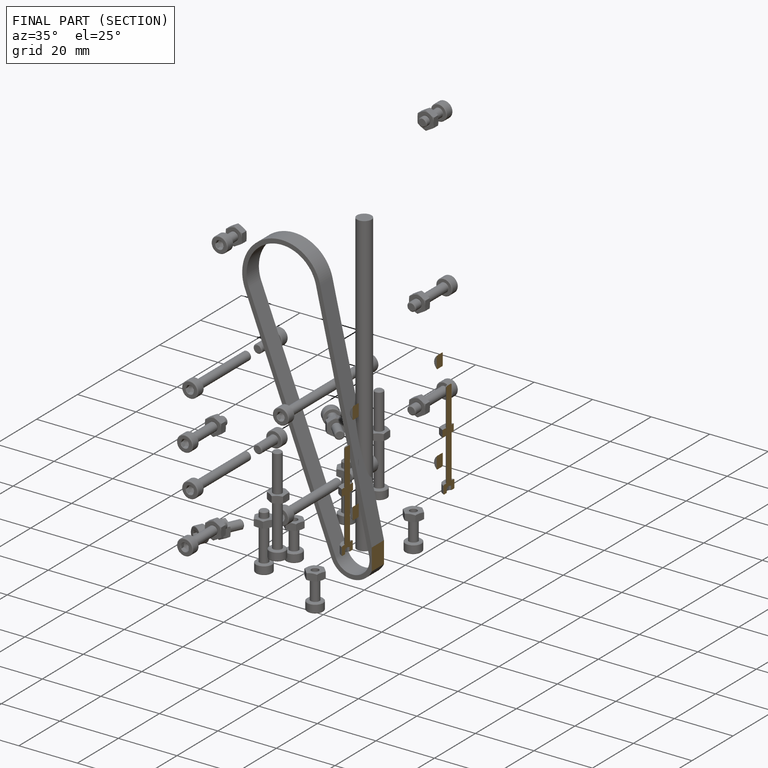
[diagram: finished part — half-section view (interior)]
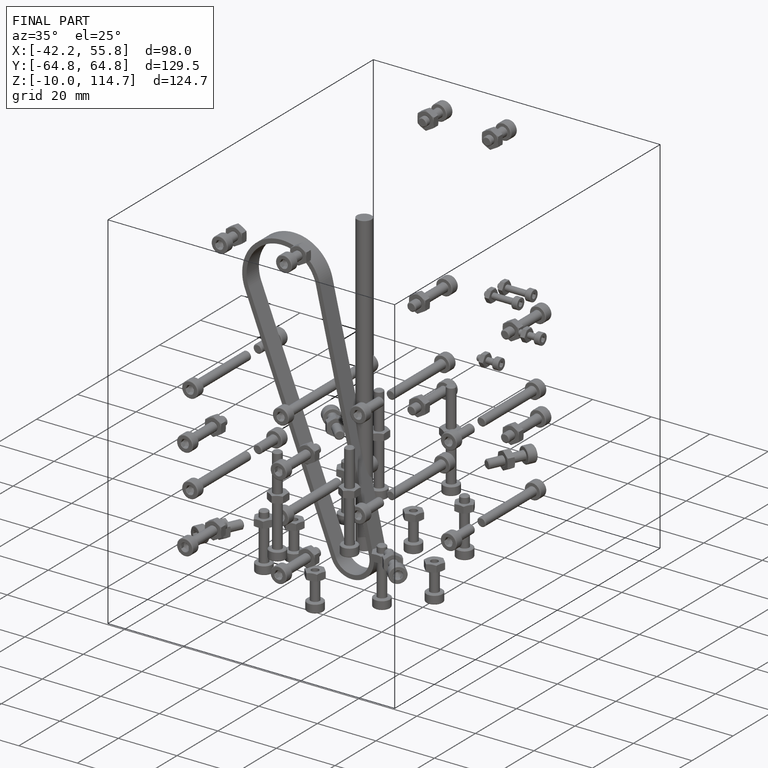
[diagram: finished part — iso view with bounding-box wireframe]
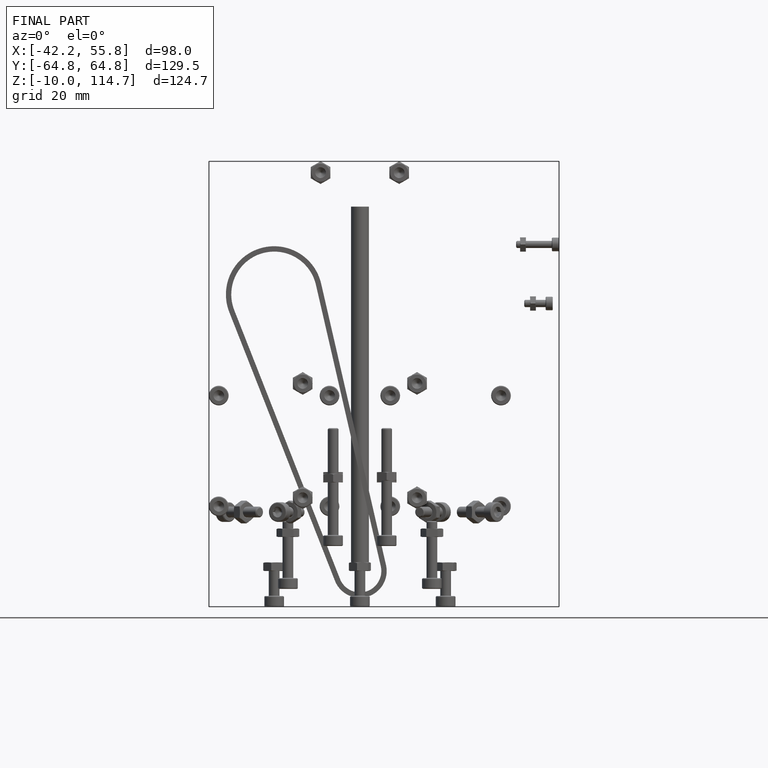
[diagram: finished part — front view with bounding-box wireframe]
